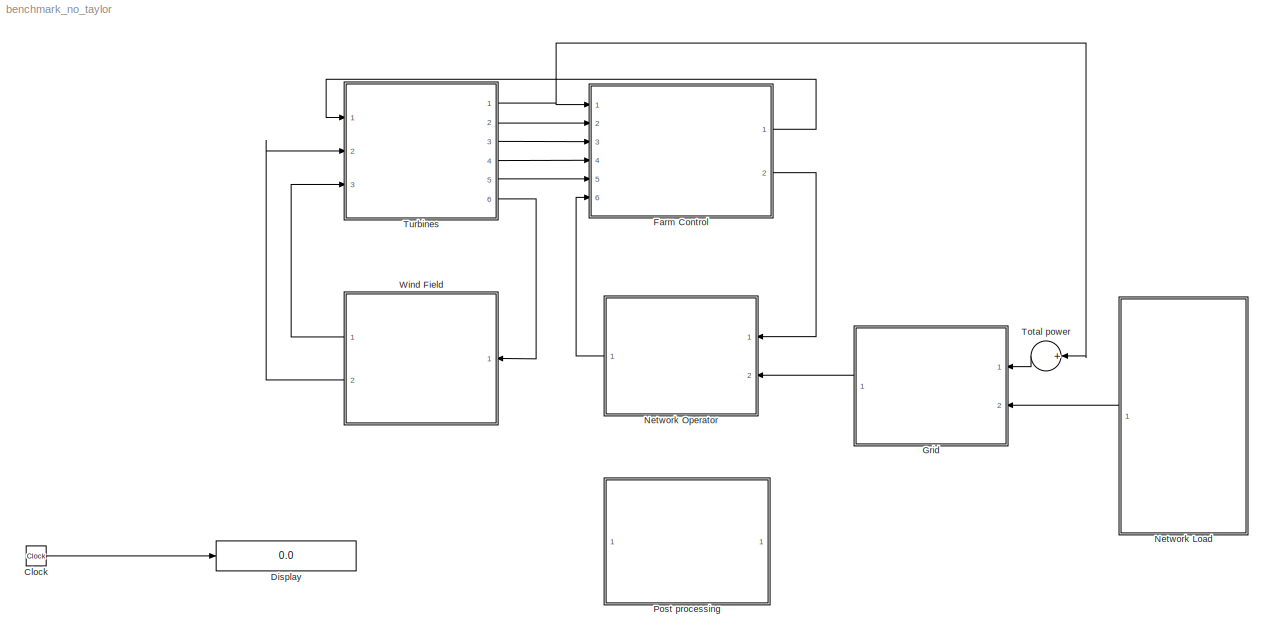
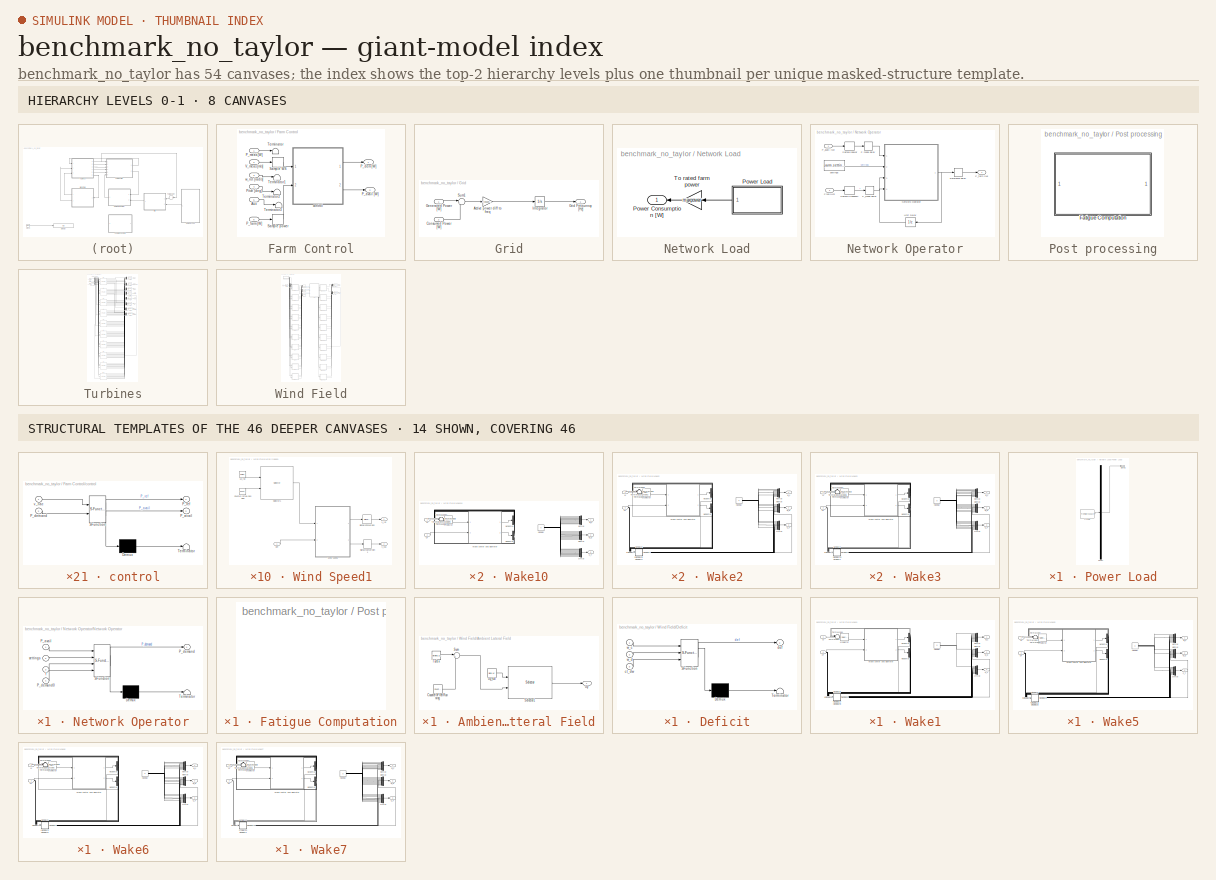
[diagram: thumbnail index - top-2 hierarchy levels (8 canvases) + 14 structural-template representatives of the remaining 46 canvases]
MODEL benchmark_no_taylor
KIND model
BLOCK [Clock] Clock
  SID = 588
BLOCK [Display] Display
  Decimation = 1
  Format = long
  Ports = [1]
  SID = 589
BLOCK [SubSystem] Farm Control
  Ports = [6, 2]
  RequestExecContextInheritance = off
  SID = 2
  UserData = DataTag0
  UserDataPersistent = on
BLOCK [Inport] Farm Control/ Aux
  IconDisplay = Port number
  Port = 5
  SID = 7
BLOCK [Outport] Farm Control/P_avail [W]
  IconDisplay = Port number
  Port = 2
  SID = 17
BLOCK [Outport] Farm Control/P_dem [W]
  IconDisplay = Port number
  SID = 16
BLOCK [Inport] Farm Control/P_farm [W]
  IconDisplay = Port number
  Port = 6
  SID = 8
BLOCK [Inport] Farm Control/P_meas [W]
  IconDisplay = Port number
  SID = 3
BLOCK [Inport] Farm Control/Pitch [deg]
  IconDisplay = Port number
  Port = 4
  SID = 6
BLOCK [ZeroOrderHold] Farm Control/Sample WS
  SID = 9
  SampleTime = CTs
BLOCK [ZeroOrderHold] Farm Control/Sample power
  SID = 10
  SampleTime = CTs
BLOCK [Terminator] Farm Control/Terminator
  SID = 11
BLOCK [Terminator] Farm Control/Terminator1
  SID = 12
BLOCK [Terminator] Farm Control/Terminator2
  SID = 13
BLOCK [Terminator] Farm Control/Terminator3
  SID = 14
BLOCK [Inport] Farm Control/V_meas [m//s]
  IconDisplay = Port number
  Port = 2
  SID = 4
BLOCK [SubSystem] Farm Control/control
  ErrorFcn = Stateflow.Translate.translate
  PermitHierarchicalResolution = ExplicitOnly
  Ports = [2, 2]
  RequestExecContextInheritance = off
  SFBlockType = MATLAB Function
  SID = 15
  TreatAsAtomicUnit = on
BLOCK [Demux] Farm Control/control/ Demux 
  Outputs = 1
  Ports = [1, 1]
  SID = 15::13
BLOCK [S-Function] Farm Control/control/ SFunction 
  EnableBusSupport = off
  FunctionName = sf_sfun
  Parameters = parm
  PortCounts = [2 3]
  Ports = [2, 3]
  SFcnIsStateOwnerBlock = off
  SFunctionDeploymentMode = off
  SID = 15::12
  Tag = Stateflow S-Function 1
BLOCK [Terminator] Farm Control/control/ Terminator 
  SID = 15::14
BLOCK [Outport] Farm Control/control/P_avail
  IconDisplay = Port number
  Port = 2
  SID = 15::7
BLOCK [Inport] Farm Control/control/P_demand
  IconDisplay = Port number
  Port = 2
  SID = 15::2
BLOCK [Outport] Farm Control/control/P_ref
  IconDisplay = Port number
  SID = 15::6
BLOCK [Inport] Farm Control/control/v_nac
  IconDisplay = Port number
  SID = 15::1
BLOCK [Inport] Farm Control/w_rot [rad//s]
  IconDisplay = Port number
  Port = 3
  SID = 5
BLOCK [SubSystem] Grid
  Ports = [2, 1]
  RequestExecContextInheritance = off
  SID = 18
BLOCK [Gain] Grid/Active power diff to freq
  Gain = frequencygain
  OutDataTypeStr = Inherit: Inherit via internal rule
  ParamDataTypeStr = Inherit: Inherit via internal rule
  SID = 21
  SaturateOnIntegerOverflow = off
BLOCK [Inport] Grid/Consumed Power [W]
  IconDisplay = Port number
  Port = 2
  SID = 20
BLOCK [Inport] Grid/Generated Power [W]
  IconDisplay = Port number
  SID = 19
BLOCK [Outport] Grid/Grid Frequency [Hz]
  IconDisplay = Port number
  SID = 24
BLOCK [Integrator] Grid/Integrator
  InitialCondition = 50
  LimitOutput = on
  LowerSaturationLimit = 0
  Ports = [1, 1]
  SID = 22
  UpperSaturationLimit = 100
BLOCK [Sum] Grid/Sum1
  IconShape = round
  InputSameDT = off
  Inputs = |+-
  OutDataTypeStr = Inherit: Inherit via internal rule
  Ports = [2, 1]
  SID = 23
  SaturateOnIntegerOverflow = off
BLOCK [SubSystem] Network Load
  Ports = [0, 1]
  RequestExecContextInheritance = off
  SID = 25
BLOCK [Outport] Network Load/Power Consumption [W]
  IconDisplay = Port number
  SID = 28
BLOCK [SubSystem] Network Load/Power Load
  ClipboardFcn = sigbuilder_block('clipboard');
  CloseFcn = sigbuilder_block('close');
  ContinueFcn = sigbuilder_block('continue')
  CopyFcn = sigbuilder_block('copy');
  DeleteFcn = sigbuilder_block('delete');
  LoadFcn = sigbuilder_block('load');
  MaskHideContents = on
  ModelCloseFcn = sigbuilder_block('modelClose');
  NameChangeFcn = sigbuilder_block('namechange');
  OpenFcn = sigbuilder_block('open',[437.6 199.2 550.4 400 ]);
  PauseFcn = sigbuilder_block('pause')
  Ports = [0, 1]
  PreSaveFcn = sigbuilder_block('preSave');
  RequestExecContextInheritance = off
  SID = 26
  StartFcn = sigbuilder_block('start');
  StopFcn = sigbuilder_block('stop');
  Tag = STV Subsys
BLOCK [Demux] Network Load/Power Load/Demux
  Outputs = 1
  Ports = [1, 1]
  SID = 26:1
  Tag = STV Demux
BLOCK [FromWorkspace] Network Load/Power Load/FromWs
  SID = 26:2
  SampleTime = 0
  SigBuilderData = DataTag1
  Tag = STV FromWs
  VariableName = tuvar
  VnvData = DataTag2
  ZeroCross = on
BLOCK [Outport] Network Load/Power Load/Signal 1
  IconDisplay = Port number
  SID = 26:3
  Tag = STV Outport
BLOCK [Gain] Network Load/To rated farm power
  Gain = maxpower
  OutDataTypeStr = Inherit: Inherit via internal rule
  ParamDataTypeStr = Inherit: Inherit via internal rule
  SID = 27
  SaturateOnIntegerOverflow = off
BLOCK [SubSystem] Network Operator
  Ports = [2, 1]
  RequestExecContextInheritance = off
  SID = 29
BLOCK [TransportDelay] Network Operator/F_meas delay
  DelayTime = parm.delay
  Ports = [1, 1]
  SID = 32
BLOCK [Inport] Network Operator/Freq [Hz]
  IconDisplay = Port number
  Port = 2
  SID = 31
BLOCK [SubSystem] Network Operator/Network Operator
  ErrorFcn = Stateflow.Translate.translate
  PermitHierarchicalResolution = ExplicitOnly
  Ports = [4, 1]
  RequestExecContextInheritance = off
  SFBlockType = MATLAB Function
  SID = 33
  TreatAsAtomicUnit = on
BLOCK [Demux] Network Operator/Network Operator/ Demux 
  Outputs = 1
  Ports = [1, 1]
  SID = 33::14
BLOCK [S-Function] Network Operator/Network Operator/ SFunction 
  EnableBusSupport = off
  FunctionName = sf_sfun
  Parameters = parm
  PortCounts = [4 2]
  Ports = [4, 2]
  SFcnIsStateOwnerBlock = off
  SFunctionDeploymentMode = off
  SID = 33::13
  Tag = Stateflow S-Function 2
BLOCK [Terminator] Network Operator/Network Operator/ Terminator 
  SID = 33::15
BLOCK [Inport] Network Operator/Network Operator/P_avail
  IconDisplay = Port number
  SID = 33::1
BLOCK [Outport] Network Operator/Network Operator/P_demand
  IconDisplay = Port number
  SID = 33::8
BLOCK [Inport] Network Operator/Network Operator/P_demand0
  IconDisplay = Port number
  Port = 4
  SID = 33::4
BLOCK [Inport] Network Operator/Network Operator/f
  IconDisplay = Port number
  Port = 3
  SID = 33::3
BLOCK [Inport] Network Operator/Network Operator/settings
  IconDisplay = Port number
  Port = 2
  SID = 33::2
BLOCK [TransportDelay] Network Operator/P meas delay
  DelayTime = parm.delay
  Ports = [1, 1]
  SID = 34
BLOCK [Inport] Network Operator/P_avail [W]
  IconDisplay = Port number
  SID = 30
BLOCK [Outport] Network Operator/P_farm [W]
  IconDisplay = Port number
  SID = 40
BLOCK [TransportDelay] Network Operator/Reference delay
  DelayTime = .01
  Ports = [1, 1]
  SID = 35
BLOCK [ZeroOrderHold] Network Operator/Sample frequency
  SID = 36
  SampleTime = parm.Ts
BLOCK [ZeroOrderHold] Network Operator/Sample power
  SID = 37
  SampleTime = parm.Ts
BLOCK [UnitDelay] Network Operator/Unit Delay
  HasFrameUpgradeWarning = on
  SID = 38
  SampleTime = parm.Ts
BLOCK [Constant] Network Operator/settings
  OutDataTypeStr = double
  SID = 39
  SampleTime = parm.Ts
  Value = parm.settings
BLOCK [SubSystem] Post processing
  Ports = []
  RequestExecContextInheritance = off
  SID = 41
BLOCK [SubSystem] Post processing/Fatigue Computation
  OpenFcn = fatigue=fatiguegui(logsout);
  Ports = []
  RequestExecContextInheritance = off
  SID = 42
BLOCK [Sum] Total power
  InputSameDT = off
  Inputs = +
  OutDataTypeStr = Inherit: Inherit via internal rule
  Ports = [1, 1]
  SID = 43
  SaturateOnIntegerOverflow = off
BLOCK [SubSystem] Turbines
  LoadFcn = p=get_param(gcb,'UserData');                                                                                                                                            \n%If not compatible                                                                                                                                                      \n                                                            ...<+1133ch>
  Ports = [3, 6]
  RequestExecContextInheritance = off
  SID = 44
  UserData = DataTag3
  UserDataPersistent = on
BLOCK [Outport] Turbines/CT
  IconDisplay = Port number
  Port = 6
  SID = 74
BLOCK [Mux] Turbines/CTmux
  DisplayOption = bar
  Inputs = 10
  Ports = [10, 1]
  SID = 48
BLOCK [RateTransition] Turbines/CTrate
  Deterministic = off
  OutPortSampleTime = TTs
  SID = 49
BLOCK [RateTransition] Turbines/CTrate1
  Deterministic = off
  OutPortSampleTime = TTs
  SID = 50
BLOCK [RateTransition] Turbines/CTrate2
  Deterministic = off
  OutPortSampleTime = TTs
  SID = 51
BLOCK [RateTransition] Turbines/CTrate3
  Deterministic = off
  OutPortSampleTime = TTs
  SID = 52
BLOCK [RateTransition] Turbines/CTrate4
  Deterministic = off
  OutPortSampleTime = TTs
  SID = 53
BLOCK [RateTransition] Turbines/CTrate5
  Deterministic = off
  OutPortSampleTime = TTs
  SID = 54
BLOCK [RateTransition] Turbines/CTrate6
  Deterministic = off
  OutPortSampleTime = TTs
  SID = 55
BLOCK [RateTransition] Turbines/CTrate7
  Deterministic = off
  OutPortSampleTime = TTs
  SID = 56
BLOCK [Outport] Turbines/P
  IconDisplay = Port number
  SID = 69
BLOCK [Inport] Turbines/P_dem [W]
  IconDisplay = Port number
  SID = 45
BLOCK [Demux] Turbines/Pdemanddemux
  DisplayOption = bar
  Outputs = 10
  Ports = [1, 10]
  SID = 57
BLOCK [Mux] Turbines/Pmux
  DisplayOption = bar
  Inputs = 10
  Ports = [10, 1]
  SID = 58
BLOCK [Inport] Turbines/V_nac [m//s]
  IconDisplay = Port number
  Port = 3
  SID = 47
BLOCK [Outport] Turbines/V_nac_meas [m//s]
  IconDisplay = Port number
  Port = 2
  SID = 70
BLOCK [Inport] Turbines/V_rot [m//s]
  IconDisplay = Port number
  Port = 2
  SID = 46
BLOCK [Demux] Turbines/Vnacdemux
  DisplayOption = bar
  Outputs = 10
  Ports = [1, 10]
  SID = 59
BLOCK [Mux] Turbines/Vnacmux
  DisplayOption = bar
  Inputs = 10
  Ports = [10, 1]
  SID = 60
BLOCK [Demux] Turbines/Vrotdemux
  DisplayOption = bar
  Outputs = 10
  Ports = [1, 10]
  SID = 61
BLOCK [Reference] Turbines/WT1  REF=libturbines/NREL5MW  (lib defined in mdl_90190a676d21, slx_8b4198d95370)
  Ports = [3, 8]
  SID = 96
  SourceBlock = libturbines/NREL5MW
  SourceType = Wind Turbine
  UserData = DataTag4
  UserDataPersistent = on
  auto = off
  beta_ini = 0
  torq_ini = 0
  w_gen_ini = 50
BLOCK [Reference] Turbines/WT10  REF=libturbines/NREL5MW  (lib defined in mdl_90190a676d21, slx_8b4198d95370)
  Ports = [3, 8]
  SID = 105
  SourceBlock = libturbines/NREL5MW
  SourceType = Wind Turbine
  UserData = DataTag5
  UserDataPersistent = on
  auto = off
  beta_ini = 0
  torq_ini = 0
  w_gen_ini = 50
BLOCK [Reference] Turbines/WT2  REF=libturbines/NREL5MW  (lib defined in mdl_90190a676d21, slx_8b4198d95370)
  Ports = [3, 8]
  SID = 97
  SourceBlock = libturbines/NREL5MW
  SourceType = Wind Turbine
  UserData = DataTag6
  UserDataPersistent = on
  auto = off
  beta_ini = 0
  torq_ini = 0
  w_gen_ini = 50
BLOCK [Reference] Turbines/WT3  REF=libturbines/NREL5MW  (lib defined in mdl_90190a676d21, slx_8b4198d95370)
  Ports = [3, 8]
  SID = 98
  SourceBlock = libturbines/NREL5MW
  SourceType = Wind Turbine
  UserData = DataTag7
  UserDataPersistent = on
  auto = off
  beta_ini = 0
  torq_ini = 0
  w_gen_ini = 50
BLOCK [Reference] Turbines/WT4  REF=libturbines/NREL5MW  (lib defined in mdl_90190a676d21, slx_8b4198d95370)
  Ports = [3, 8]
  SID = 99
  SourceBlock = libturbines/NREL5MW
  SourceType = Wind Turbine
  UserData = DataTag8
  UserDataPersistent = on
  auto = off
  beta_ini = 0
  torq_ini = 0
  w_gen_ini = 50
BLOCK [Reference] Turbines/WT5  REF=libturbines/NREL5MW  (lib defined in mdl_90190a676d21, slx_8b4198d95370)
  Ports = [3, 8]
  SID = 100
  SourceBlock = libturbines/NREL5MW
  SourceType = Wind Turbine
  UserData = DataTag9
  UserDataPersistent = on
  auto = off
  beta_ini = 0
  torq_ini = 0
  w_gen_ini = 50
BLOCK [Reference] Turbines/WT6  REF=libturbines/NREL5MW  (lib defined in mdl_90190a676d21, slx_8b4198d95370)
  Ports = [3, 8]
  SID = 101
  SourceBlock = libturbines/NREL5MW
  SourceType = Wind Turbine
  UserData = DataTag10
  UserDataPersistent = on
  auto = off
  beta_ini = 0
  torq_ini = 0
  w_gen_ini = 50
BLOCK [Reference] Turbines/WT7  REF=libturbines/NREL5MW  (lib defined in mdl_90190a676d21, slx_8b4198d95370)
  Ports = [3, 8]
  SID = 102
  SourceBlock = libturbines/NREL5MW
  SourceType = Wind Turbine
  UserData = DataTag11
  UserDataPersistent = on
  auto = off
  beta_ini = 0
  torq_ini = 0
  w_gen_ini = 50
BLOCK [Reference] Turbines/WT8  REF=libturbines/NREL5MW  (lib defined in mdl_90190a676d21, slx_8b4198d95370)
  Ports = [3, 8]
  SID = 103
  SourceBlock = libturbines/NREL5MW
  SourceType = Wind Turbine
  UserData = DataTag12
  UserDataPersistent = on
  auto = off
  beta_ini = 0
  torq_ini = 0
  w_gen_ini = 50
BLOCK [Reference] Turbines/WT9  REF=libturbines/NREL5MW  (lib defined in mdl_90190a676d21, slx_8b4198d95370)
  Ports = [3, 8]
  SID = 104
  SourceBlock = libturbines/NREL5MW
  SourceType = Wind Turbine
  UserData = DataTag13
  UserDataPersistent = on
  auto = off
  beta_ini = 0
  torq_ini = 0
  w_gen_ini = 50
BLOCK [Outport] Turbines/aux
  IconDisplay = Port number
  Port = 5
  SID = 73
BLOCK [Mux] Turbines/auxmux
  DisplayOption = bar
  Inputs = 10
  Ports = [10, 1]
  SID = 62
BLOCK [Mux] Turbines/mshaftmux
  DisplayOption = bar
  Inputs = 10
  Ports = [10, 1]
  SID = 63
BLOCK [Terminator] Turbines/mshaftterm
  SID = 64
BLOCK [Mux] Turbines/mtowmux
  DisplayOption = bar
  Inputs = 10
  Ports = [10, 1]
  SID = 65
BLOCK [Terminator] Turbines/mtowterm
  SID = 66
BLOCK [Outport] Turbines/pitch
  IconDisplay = Port number
  Port = 4
  SID = 72
BLOCK [Mux] Turbines/pitchmux
  DisplayOption = bar
  Inputs = 10
  Ports = [10, 1]
  SID = 67
BLOCK [Outport] Turbines/w_gen
  IconDisplay = Port number
  Port = 3
  SID = 71
BLOCK [Mux] Turbines/wgenmux
  DisplayOption = bar
  Inputs = 10
  Ports = [10, 1]
  SID = 68
BLOCK [SubSystem] Wind Field
  OpenFcn = [wfile,wpath,wfidx]=uigetfile('*.mat','Select a Wind Data File');                                                                                                                                                                                                                                                                                              \nif isequal(wfile,0) || isequal(wpath,0)        ...<+20441ch>
  Ports = [1, 2]
  RequestExecContextInheritance = off
  SID = 75
  UserData = DataTag14
  UserDataPersistent = on
BLOCK [SubSystem] Wind Field/Ambient Lateral Field
  Ports = [0, 1]
  RequestExecContextInheritance = off
  SID = 77
  UserData = DataTag15
  UserDataPersistent = on
BLOCK [Reference] Wind Field/Ambient Lateral Field/Counter\nFree-Running  REF=simulink/Sources/Counter\nFree-Running
  NumBits = 32
  Ports = [0, 1]
  SID = 78
  SourceBlock = simulink/Sources/Counter\nFree-Running
  SourceProductBaseCode = SL
  SourceProductName = Simulink
  SourceType = Counter Free-Running
  tsamp = wind.Ts
BLOCK [Selector] Wind Field/Ambient Lateral Field/Selector1
  IndexOptions = Select all,Index vector (port)
  Indices = [1 3],1
  InputPortWidth = 3
  NumberOfDimensions = 2
  OutputSizes = 1,1
  Ports = [2, 1]
  SID = 79
BLOCK [Sum] Wind Field/Ambient Lateral Field/Sum
  IconShape = round
  InputSameDT = off
  Inputs = |++
  OutDataTypeStr = Inherit: Inherit via internal rule
  Ports = [2, 1]
  SID = 80
  SaturateOnIntegerOverflow = off
BLOCK [Constant] Wind Field/Ambient Lateral Field/Turb x
  SID = 81
  Value = ceil(wind.grid.xsize/wind.grid.size)-wind.xgrids
BLOCK [Outport] Wind Field/Ambient Lateral Field/Uy
  IconDisplay = Port number
  SID = 83
BLOCK [Constant] Wind Field/Ambient Lateral Field/Uy_full
  SID = 82
  Value = wind.Uy
BLOCK [Inport] Wind Field/CT
  IconDisplay = Port number
  SID = 76
BLOCK [Demux] Wind Field/CTdemux
  DisplayOption = bar
  Outputs = 10
  Ports = [1, 10]
  SID = 84
BLOCK [RateTransition] Wind Field/CTrate
  Deterministic = off
  OutPortSampleTime = 1
  SID = 85
BLOCK [SubSystem] Wind Field/Deficit
  ErrorFcn = Stateflow.Translate.translate
  PermitHierarchicalResolution = ExplicitOnly
  Ports = [3, 1]
  RequestExecContextInheritance = off
  SFBlockType = MATLAB Function
  SID = 86
  TreatAsAtomicUnit = on
BLOCK [Demux] Wind Field/Deficit/ Demux 
  Outputs = 1
  Ports = [1, 1]
  SID = 86::13
BLOCK [S-Function] Wind Field/Deficit/ SFunction 
  EnableBusSupport = off
  FunctionName = sf_sfun
  Parameters = p
  PortCounts = [3 2]
  Ports = [3, 2]
  SFcnIsStateOwnerBlock = off
  SFunctionDeploymentMode = off
  SID = 86::12
  Tag = Stateflow S-Function 3
BLOCK [Terminator] Wind Field/Deficit/ Terminator 
  SID = 86::14
BLOCK [Inport] Wind Field/Deficit/ct_dw
  IconDisplay = Port number
  Port = 3
  SID = 86::3
BLOCK [Outport] Wind Field/Deficit/def
  IconDisplay = Port number
  SID = 86::7
BLOCK [Inport] Wind Field/Deficit/w_c
  IconDisplay = Port number
  SID = 86::1
BLOCK [Inport] Wind Field/Deficit/w_d
  IconDisplay = Port number
  Port = 2
  SID = 86::2
BLOCK [Outport] Wind Field/V_nac
  IconDisplay = Port number
  SID = 94
BLOCK [Outport] Wind Field/V_rot
  IconDisplay = Port number
  Port = 2
  SID = 95
BLOCK [Mux] Wind Field/Vnacmux
  DisplayOption = bar
  Inputs = 10
  Ports = [10, 1]
  SID = 87
BLOCK [Mux] Wind Field/Vrotmux
  DisplayOption = bar
  Inputs = 10
  Ports = [10, 1]
  SID = 88
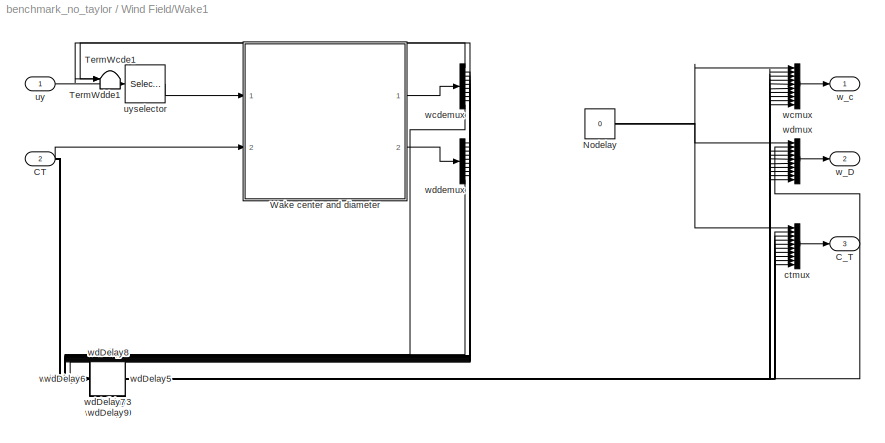
BLOCK [SubSystem] Wind Field/Wake1
  Ports = [2, 3]
  RequestExecContextInheritance = off
  SID = 106
  UserData = DataTag16
  UserDataPersistent = on
BLOCK [Inport] Wind Field/Wake1/CT
  IconDisplay = Port number
  Port = 2
  SID = 108
BLOCK [Outport] Wind Field/Wake1/C_T
  IconDisplay = Port number
  Port = 3
  SID = 119
BLOCK [Constant] Wind Field/Wake1/Nodelay
  SID = 109
  Value = 0
BLOCK [Terminator] Wind Field/Wake1/TermWcde1
  SID = 131
BLOCK [Terminator] Wind Field/Wake1/TermWdde1
  SID = 130
BLOCK [SubSystem] Wind Field/Wake1/Wake center and diameter
  ErrorFcn = Stateflow.Translate.translate
  PermitHierarchicalResolution = ExplicitOnly
  Ports = [2, 2]
  RequestExecContextInheritance = off
  SFBlockType = MATLAB Function
  SID = 110
  TreatAsAtomicUnit = on
BLOCK [Demux] Wind Field/Wake1/Wake center and diameter/ Demux 
  Outputs = 1
  Ports = [1, 1]
  SID = 110::82
BLOCK [S-Function] Wind Field/Wake1/Wake center and diameter/ SFunction 
  EnableBusSupport = off
  FunctionName = sf_sfun
  Parameters = p
  PortCounts = [2 3]
  Ports = [2, 3]
  SFcnIsStateOwnerBlock = off
  SFunctionDeploymentMode = off
  SID = 110::81
  Tag = Stateflow S-Function 4
BLOCK [Terminator] Wind Field/Wake1/Wake center and diameter/ Terminator 
  SID = 110::83
BLOCK [Inport] Wind Field/Wake1/Wake center and diameter/CT
  IconDisplay = Port number
  Port = 2
  SID = 110::2
BLOCK [Inport] Wind Field/Wake1/Wake center and diameter/uy
  IconDisplay = Port number
  SID = 110::1
BLOCK [Outport] Wind Field/Wake1/Wake center and diameter/w_c
  IconDisplay = Port number
  SID = 110::6
BLOCK [Outport] Wind Field/Wake1/Wake center and diameter/w_d
  IconDisplay = Port number
  Port = 2
  SID = 110::7
BLOCK [Delay] Wind Field/Wake1/ctDelay10
  DelayLength = 120
  InitialCondition = 0
  InputPortMap = u0
  Ports = [1, 1]
  SID = 156
  SampleTime = 1
BLOCK [Delay] Wind Field/Wake1/ctDelay2
  DelayLength = 40
  InitialCondition = 0
  InputPortMap = u0
  Ports = [1, 1]
  SID = 132
  SampleTime = 1
BLOCK [Delay] Wind Field/Wake1/ctDelay3
  DelayLength = 80
  InitialCondition = 0
  InputPortMap = u0
  Ports = [1, 1]
  SID = 135
  SampleTime = 1
BLOCK [Delay] Wind Field/Wake1/ctDelay4
  DelayLength = 120
  InitialCondition = 0
  InputPortMap = u0
  Ports = [1, 1]
  SID = 138
  SampleTime = 1
BLOCK [Delay] Wind Field/Wake1/ctDelay5
  DelayLength = 20
  InitialCondition = 0
  InputPortMap = u0
  Ports = [1, 1]
  SID = 141
  SampleTime = 1
BLOCK [Delay] Wind Field/Wake1/ctDelay6
  DelayLength = 60
  InitialCondition = 0
  InputPortMap = u0
  Ports = [1, 1]
  SID = 144
  SampleTime = 1
BLOCK [Delay] Wind Field/Wake1/ctDelay7
  DelayLength = 100
  InitialCondition = 0
  InputPortMap = u0
  Ports = [1, 1]
  SID = 147
  SampleTime = 1
BLOCK [Delay] Wind Field/Wake1/ctDelay8
  DelayLength = 40
  InitialCondition = 0
  InputPortMap = u0
  Ports = [1, 1]
  SID = 150
  SampleTime = 1
BLOCK [Delay] Wind Field/Wake1/ctDelay9
  DelayLength = 80
  InitialCondition = 0
  InputPortMap = u0
  Ports = [1, 1]
  SID = 153
  SampleTime = 1
BLOCK [Mux] Wind Field/Wake1/ctmux
  DisplayOption = bar
  Inputs = 10
  Ports = [10, 1]
  SID = 111
BLOCK [Inport] Wind Field/Wake1/uy
  IconDisplay = Port number
  SID = 107
BLOCK [Selector] Wind Field/Wake1/uyselector
  IndexOptions = Select all,Index vector (dialog)
  Indices = [1 3],p.wt.num
  InputPortWidth = 3
  NumberOfDimensions = 2
  OutputSizes = 1,1
  Ports = [1, 1]
  SID = 112
BLOCK [Outport] Wind Field/Wake1/w_D
  IconDisplay = Port number
  Port = 2
  SID = 118
BLOCK [Outport] Wind Field/Wake1/w_c
  IconDisplay = Port number
  SID = 117
BLOCK [Delay] Wind Field/Wake1/wcDelay10
  DelayLength = 120
  InitialCondition = 0
  InputPortMap = u0
  Ports = [1, 1]
  SID = 157
  SampleTime = 1
BLOCK [Delay] Wind Field/Wake1/wcDelay2
  DelayLength = 40
  InitialCondition = 0
  InputPortMap = u0
  Ports = [1, 1]
  SID = 133
  SampleTime = 1
BLOCK [Delay] Wind Field/Wake1/wcDelay3
  DelayLength = 80
  InitialCondition = 0
  InputPortMap = u0
  Ports = [1, 1]
  SID = 136
  SampleTime = 1
BLOCK [Delay] Wind Field/Wake1/wcDelay4
  DelayLength = 120
  InitialCondition = 0
  InputPortMap = u0
  Ports = [1, 1]
  SID = 139
  SampleTime = 1
BLOCK [Delay] Wind Field/Wake1/wcDelay5
  DelayLength = 20
  InitialCondition = 0
  InputPortMap = u0
  Ports = [1, 1]
  SID = 142
  SampleTime = 1
BLOCK [Delay] Wind Field/Wake1/wcDelay6
  DelayLength = 60
  InitialCondition = 0
  InputPortMap = u0
  Ports = [1, 1]
  SID = 145
  SampleTime = 1
BLOCK [Delay] Wind Field/Wake1/wcDelay7
  DelayLength = 100
  InitialCondition = 0
  InputPortMap = u0
  Ports = [1, 1]
  SID = 148
  SampleTime = 1
BLOCK [Delay] Wind Field/Wake1/wcDelay8
  DelayLength = 40
  InitialCondition = 0
  InputPortMap = u0
  Ports = [1, 1]
  SID = 151
  SampleTime = 1
BLOCK [Delay] Wind Field/Wake1/wcDelay9
  DelayLength = 80
  InitialCondition = 0
  InputPortMap = u0
  Ports = [1, 1]
  SID = 154
  SampleTime = 1
BLOCK [Demux] Wind Field/Wake1/wcdemux
  DisplayOption = bar
  Outputs = 10
  Ports = [1, 10]
  SID = 113
BLOCK [Mux] Wind Field/Wake1/wcmux
  DisplayOption = bar
  Inputs = 10
  Ports = [10, 1]
  SID = 114
BLOCK [Delay] Wind Field/Wake1/wdDelay10
  DelayLength = 120
  InitialCondition = 0
  InputPortMap = u0
  Ports = [1, 1]
  SID = 158
  SampleTime = 1
BLOCK [Delay] Wind Field/Wake1/wdDelay2
  DelayLength = 40
  InitialCondition = 0
  InputPortMap = u0
  Ports = [1, 1]
  SID = 134
  SampleTime = 1
BLOCK [Delay] Wind Field/Wake1/wdDelay3
  DelayLength = 80
  InitialCondition = 0
  InputPortMap = u0
  Ports = [1, 1]
  SID = 137
  SampleTime = 1
BLOCK [Delay] Wind Field/Wake1/wdDelay4
  DelayLength = 120
  InitialCondition = 0
  InputPortMap = u0
  Ports = [1, 1]
  SID = 140
  SampleTime = 1
BLOCK [Delay] Wind Field/Wake1/wdDelay5
  DelayLength = 20
  InitialCondition = 0
  InputPortMap = u0
  Ports = [1, 1]
  SID = 143
  SampleTime = 1
BLOCK [Delay] Wind Field/Wake1/wdDelay6
  DelayLength = 60
  InitialCondition = 0
  InputPortMap = u0
  Ports = [1, 1]
  SID = 146
  SampleTime = 1
BLOCK [Delay] Wind Field/Wake1/wdDelay7
  DelayLength = 100
  InitialCondition = 0
  InputPortMap = u0
  Ports = [1, 1]
  SID = 149
  SampleTime = 1
BLOCK [Delay] Wind Field/Wake1/wdDelay8
  DelayLength = 40
  InitialCondition = 0
  InputPortMap = u0
  Ports = [1, 1]
  SID = 152
  SampleTime = 1
BLOCK [Delay] Wind Field/Wake1/wdDelay9
  DelayLength = 80
  InitialCondition = 0
  InputPortMap = u0
  Ports = [1, 1]
  SID = 155
  SampleTime = 1
BLOCK [Demux] Wind Field/Wake1/wddemux
  DisplayOption = bar
  Outputs = 10
  Ports = [1, 10]
  SID = 115
BLOCK [Mux] Wind Field/Wake1/wdmux
  DisplayOption = bar
  Inputs = 10
  Ports = [10, 1]
  SID = 116
BLOCK [SubSystem] Wind Field/Wake10
  Ports = [2, 3]
  RequestExecContextInheritance = off
  SID = 544
  UserData = DataTag17
  UserDataPersistent = on
BLOCK [Inport] Wind Field/Wake10/CT
  IconDisplay = Port number
  Port = 2
  SID = 546
BLOCK [Outport] Wind Field/Wake10/C_T
  IconDisplay = Port number
  Port = 3
  SID = 557
BLOCK [Constant] Wind Field/Wake10/Nodelay
  SID = 547
  Value = 0
BLOCK [Terminator] Wind Field/Wake10/TermWcde1
  SID = 569
BLOCK [Terminator] Wind Field/Wake10/TermWcde10
  SID = 587
BLOCK [Terminator] Wind Field/Wake10/TermWcde2
  SID = 571
BLOCK [Terminator] Wind Field/Wake10/TermWcde3
  SID = 573
BLOCK [Terminator] Wind Field/Wake10/TermWcde4
  SID = 575
BLOCK [Terminator] Wind Field/Wake10/TermWcde5
  SID = 577
BLOCK [Terminator] Wind Field/Wake10/TermWcde6
  SID = 579
BLOCK [Terminator] Wind Field/Wake10/TermWcde7
  SID = 581
BLOCK [Terminator] Wind Field/Wake10/TermWcde8
  SID = 583
BLOCK [Terminator] Wind Field/Wake10/TermWcde9
  SID = 585
BLOCK [Terminator] Wind Field/Wake10/TermWdde1
  SID = 568
BLOCK [Terminator] Wind Field/Wake10/TermWdde10
  SID = 586
BLOCK [Terminator] Wind Field/Wake10/TermWdde2
  SID = 570
BLOCK [Terminator] Wind Field/Wake10/TermWdde3
  SID = 572
BLOCK [Terminator] Wind Field/Wake10/TermWdde4
  SID = 574
BLOCK [Terminator] Wind Field/Wake10/TermWdde5
  SID = 576
BLOCK [Terminator] Wind Field/Wake10/TermWdde6
  SID = 578
BLOCK [Terminator] Wind Field/Wake10/TermWdde7
  SID = 580
BLOCK [Terminator] Wind Field/Wake10/TermWdde8
  SID = 582
BLOCK [Terminator] Wind Field/Wake10/TermWdde9
  SID = 584
BLOCK [SubSystem] Wind Field/Wake10/Wake center and diameter
  ErrorFcn = Stateflow.Translate.translate
  PermitHierarchicalResolution = ExplicitOnly
  Ports = [2, 2]
  RequestExecContextInheritance = off
  SFBlockType = MATLAB Function
  SID = 548
  TreatAsAtomicUnit = on
BLOCK [Demux] Wind Field/Wake10/Wake center and diameter/ Demux 
  Outputs = 1
  Ports = [1, 1]
  SID = 548::82
BLOCK [S-Function] Wind Field/Wake10/Wake center and diameter/ SFunction 
  EnableBusSupport = off
  FunctionName = sf_sfun
  Parameters = p
  PortCounts = [2 3]
  Ports = [2, 3]
  SFcnIsStateOwnerBlock = off
  SFunctionDeploymentMode = off
  SID = 548::81
  Tag = Stateflow S-Function 22
BLOCK [Terminator] Wind Field/Wake10/Wake center and diameter/ Terminator 
  SID = 548::83
BLOCK [Inport] Wind Field/Wake10/Wake center and diameter/CT
  IconDisplay = Port number
  Port = 2
  SID = 548::2
BLOCK [Inport] Wind Field/Wake10/Wake center and diameter/uy
  IconDisplay = Port number
  SID = 548::1
BLOCK [Outport] Wind Field/Wake10/Wake center and diameter/w_c
  IconDisplay = Port number
  SID = 548::6
BLOCK [Outport] Wind Field/Wake10/Wake center and diameter/w_d
  IconDisplay = Port number
  Port = 2
  SID = 548::7
BLOCK [Mux] Wind Field/Wake10/ctmux
  DisplayOption = bar
  Inputs = 10
  Ports = [10, 1]
  SID = 549
BLOCK [Inport] Wind Field/Wake10/uy
  IconDisplay = Port number
  SID = 545
BLOCK [Selector] Wind Field/Wake10/uyselector
  IndexOptions = Select all,Index vector (dialog)
  Indices = [1 3],p.wt.num
  InputPortWidth = 3
  NumberOfDimensions = 2
  OutputSizes = 1,1
  Ports = [1, 1]
  SID = 550
BLOCK [Outport] Wind Field/Wake10/w_D
  IconDisplay = Port number
  Port = 2
  SID = 556
BLOCK [Outport] Wind Field/Wake10/w_c
  IconDisplay = Port number
  SID = 555
BLOCK [Demux] Wind Field/Wake10/wcdemux
  DisplayOption = bar
  Outputs = 10
  Ports = [1, 10]
  SID = 551
BLOCK [Mux] Wind Field/Wake10/wcmux
  DisplayOption = bar
  Inputs = 10
  Ports = [10, 1]
  SID = 552
BLOCK [Demux] Wind Field/Wake10/wddemux
  DisplayOption = bar
  Outputs = 10
  Ports = [1, 10]
  SID = 553
BLOCK [Mux] Wind Field/Wake10/wdmux
  DisplayOption = bar
  Inputs = 10
  Ports = [10, 1]
  SID = 554
BLOCK [SubSystem] Wind Field/Wake2
  Ports = [2, 3]
  RequestExecContextInheritance = off
  SID = 159
  UserData = DataTag18
  UserDataPersistent = on
BLOCK [Inport] Wind Field/Wake2/CT
  IconDisplay = Port number
  Port = 2
  SID = 161
BLOCK [Outport] Wind Field/Wake2/C_T
  IconDisplay = Port number
  Port = 3
  SID = 172
BLOCK [Constant] Wind Field/Wake2/Nodelay
  SID = 162
  Value = 0
BLOCK [Terminator] Wind Field/Wake2/TermWcde1
  SID = 184
BLOCK [Terminator] Wind Field/Wake2/TermWcde2
  SID = 186
BLOCK [Terminator] Wind Field/Wake2/TermWcde5
  SID = 194
BLOCK [Terminator] Wind Field/Wake2/TermWcde8
  SID = 202
BLOCK [Terminator] Wind Field/Wake2/TermWdde1
  SID = 183
BLOCK [Terminator] Wind Field/Wake2/TermWdde2
  SID = 185
BLOCK [Terminator] Wind Field/Wake2/TermWdde5
  SID = 193
BLOCK [Terminator] Wind Field/Wake2/TermWdde8
  SID = 201
BLOCK [SubSystem] Wind Field/Wake2/Wake center and diameter
  ErrorFcn = Stateflow.Translate.translate
  PermitHierarchicalResolution = ExplicitOnly
  Ports = [2, 2]
  RequestExecContextInheritance = off
  SFBlockType = MATLAB Function
  SID = 163
  TreatAsAtomicUnit = on
BLOCK [Demux] Wind Field/Wake2/Wake center and diameter/ Demux 
  Outputs = 1
  Ports = [1, 1]
  SID = 163::82
BLOCK [S-Function] Wind Field/Wake2/Wake center and diameter/ SFunction 
  EnableBusSupport = off
  FunctionName = sf_sfun
  Parameters = p
  PortCounts = [2 3]
  Ports = [2, 3]
  SFcnIsStateOwnerBlock = off
  SFunctionDeploymentMode = off
  SID = 163::81
  Tag = Stateflow S-Function 6
BLOCK [Terminator] Wind Field/Wake2/Wake center and diameter/ Terminator 
  SID = 163::83
BLOCK [Inport] Wind Field/Wake2/Wake center and diameter/CT
  IconDisplay = Port number
  Port = 2
  SID = 163::2
BLOCK [Inport] Wind Field/Wake2/Wake center and diameter/uy
  IconDisplay = Port number
  SID = 163::1
BLOCK [Outport] Wind Field/Wake2/Wake center and diameter/w_c
  IconDisplay = Port number
  SID = 163::6
BLOCK [Outport] Wind Field/Wake2/Wake center and diameter/w_d
  IconDisplay = Port number
  Port = 2
  SID = 163::7
BLOCK [Delay] Wind Field/Wake2/ctDelay10
  DelayLength = 80
  InitialCondition = 0
  InputPortMap = u0
  Ports = [1, 1]
  SID = 206
  SampleTime = 1
BLOCK [Delay] Wind Field/Wake2/ctDelay3
  DelayLength = 40
  InitialCondition = 0
  InputPortMap = u0
  Ports = [1, 1]
  SID = 187
  SampleTime = 1
BLOCK [Delay] Wind Field/Wake2/ctDelay4
  DelayLength = 80
  InitialCondition = 0
  InputPortMap = u0
  Ports = [1, 1]
  SID = 190
  SampleTime = 1
BLOCK [Delay] Wind Field/Wake2/ctDelay6
  DelayLength = 20
  InitialCondition = 0
  InputPortMap = u0
  Ports = [1, 1]
  SID = 195
  SampleTime = 1
BLOCK [Delay] Wind Field/Wake2/ctDelay7
  DelayLength = 60
  InitialCondition = 0
  InputPortMap = u0
  Ports = [1, 1]
  SID = 198
  SampleTime = 1
BLOCK [Delay] Wind Field/Wake2/ctDelay9
  DelayLength = 40
  InitialCondition = 0
  InputPortMap = u0
  Ports = [1, 1]
  SID = 203
  SampleTime = 1
BLOCK [Mux] Wind Field/Wake2/ctmux
  DisplayOption = bar
  Inputs = 10
  Ports = [10, 1]
  SID = 164
BLOCK [Inport] Wind Field/Wake2/uy
  IconDisplay = Port number
  SID = 160
BLOCK [Selector] Wind Field/Wake2/uyselector
  IndexOptions = Select all,Index vector (dialog)
  Indices = [1 3],p.wt.num
  InputPortWidth = 3
  NumberOfDimensions = 2
  OutputSizes = 1,1
  Ports = [1, 1]
  SID = 165
BLOCK [Outport] Wind Field/Wake2/w_D
  IconDisplay = Port number
  Port = 2
  SID = 171
BLOCK [Outport] Wind Field/Wake2/w_c
  IconDisplay = Port number
  SID = 170
BLOCK [Delay] Wind Field/Wake2/wcDelay10
  DelayLength = 80
  InitialCondition = 0
  InputPortMap = u0
  Ports = [1, 1]
  SID = 207
  SampleTime = 1
BLOCK [Delay] Wind Field/Wake2/wcDelay3
  DelayLength = 40
  InitialCondition = 0
  InputPortMap = u0
  Ports = [1, 1]
  SID = 188
  SampleTime = 1
BLOCK [Delay] Wind Field/Wake2/wcDelay4
  DelayLength = 80
  InitialCondition = 0
  InputPortMap = u0
  Ports = [1, 1]
  SID = 191
  SampleTime = 1
BLOCK [Delay] Wind Field/Wake2/wcDelay6
  DelayLength = 20
  InitialCondition = 0
  InputPortMap = u0
  Ports = [1, 1]
  SID = 196
  SampleTime = 1
BLOCK [Delay] Wind Field/Wake2/wcDelay7
  DelayLength = 60
  InitialCondition = 0
  InputPortMap = u0
  Ports = [1, 1]
  SID = 199
  SampleTime = 1
BLOCK [Delay] Wind Field/Wake2/wcDelay9
  DelayLength = 40
  InitialCondition = 0
  InputPortMap = u0
  Ports = [1, 1]
  SID = 204
  SampleTime = 1
BLOCK [Demux] Wind Field/Wake2/wcdemux
  DisplayOption = bar
  Outputs = 10
  Ports = [1, 10]
  SID = 166
BLOCK [Mux] Wind Field/Wake2/wcmux
  DisplayOption = bar
  Inputs = 10
  Ports = [10, 1]
  SID = 167
BLOCK [Delay] Wind Field/Wake2/wdDelay10
  DelayLength = 80
  InitialCondition = 0
  InputPortMap = u0
  Ports = [1, 1]
  SID = 208
  SampleTime = 1
BLOCK [Delay] Wind Field/Wake2/wdDelay3
  DelayLength = 40
  InitialCondition = 0
  InputPortMap = u0
  Ports = [1, 1]
  SID = 189
  SampleTime = 1
BLOCK [Delay] Wind Field/Wake2/wdDelay4
  DelayLength = 80
  InitialCondition = 0
  InputPortMap = u0
  Ports = [1, 1]
  SID = 192
  SampleTime = 1
BLOCK [Delay] Wind Field/Wake2/wdDelay6
  DelayLength = 20
  InitialCondition = 0
  InputPortMap = u0
  Ports = [1, 1]
  SID = 197
  SampleTime = 1
BLOCK [Delay] Wind Field/Wake2/wdDelay7
  DelayLength = 60
  InitialCondition = 0
  InputPortMap = u0
  Ports = [1, 1]
  SID = 200
  SampleTime = 1
BLOCK [Delay] Wind Field/Wake2/wdDelay9
  DelayLength = 40
  InitialCondition = 0
  InputPortMap = u0
  Ports = [1, 1]
  SID = 205
  SampleTime = 1
BLOCK [Demux] Wind Field/Wake2/wddemux
  DisplayOption = bar
  Outputs = 10
  Ports = [1, 10]
  SID = 168
BLOCK [Mux] Wind Field/Wake2/wdmux
  DisplayOption = bar
  Inputs = 10
  Ports = [10, 1]
  SID = 169
BLOCK [SubSystem] Wind Field/Wake3
  Ports = [2, 3]
  RequestExecContextInheritance = off
  SID = 209
  UserData = DataTag19
  UserDataPersistent = on
BLOCK [Inport] Wind Field/Wake3/CT
  IconDisplay = Port number
  Port = 2
  SID = 211
BLOCK [Outport] Wind Field/Wake3/C_T
  IconDisplay = Port number
  Port = 3
  SID = 222
BLOCK [Constant] Wind Field/Wake3/Nodelay
  SID = 212
  Value = 0
BLOCK [Terminator] Wind Field/Wake3/TermWcde1
  SID = 234
BLOCK [Terminator] Wind Field/Wake3/TermWcde2
  SID = 236
BLOCK [Terminator] Wind Field/Wake3/TermWcde3
  SID = 238
BLOCK [Terminator] Wind Field/Wake3/TermWcde5
  SID = 243
BLOCK [Terminator] Wind Field/Wake3/TermWcde6
  SID = 245
BLOCK [Terminator] Wind Field/Wake3/TermWcde8
  SID = 250
BLOCK [Terminator] Wind Field/Wake3/TermWcde9
  SID = 252
BLOCK [Terminator] Wind Field/Wake3/TermWdde1
  SID = 233
BLOCK [Terminator] Wind Field/Wake3/TermWdde2
  SID = 235
BLOCK [Terminator] Wind Field/Wake3/TermWdde3
  SID = 237
BLOCK [Terminator] Wind Field/Wake3/TermWdde5
  SID = 242
BLOCK [Terminator] Wind Field/Wake3/TermWdde6
  SID = 244
BLOCK [Terminator] Wind Field/Wake3/TermWdde8
  SID = 249
BLOCK [Terminator] Wind Field/Wake3/TermWdde9
  SID = 251
BLOCK [SubSystem] Wind Field/Wake3/Wake center and diameter
  ErrorFcn = Stateflow.Translate.translate
  PermitHierarchicalResolution = ExplicitOnly
  Ports = [2, 2]
  RequestExecContextInheritance = off
  SFBlockType = MATLAB Function
  SID = 213
  TreatAsAtomicUnit = on
BLOCK [Demux] Wind Field/Wake3/Wake center and diameter/ Demux 
  Outputs = 1
  Ports = [1, 1]
  SID = 213::82
BLOCK [S-Function] Wind Field/Wake3/Wake center and diameter/ SFunction 
  EnableBusSupport = off
  FunctionName = sf_sfun
  Parameters = p
  PortCounts = [2 3]
  Ports = [2, 3]
  SFcnIsStateOwnerBlock = off
  SFunctionDeploymentMode = off
  SID = 213::81
  Tag = Stateflow S-Function 8
BLOCK [Terminator] Wind Field/Wake3/Wake center and diameter/ Terminator 
  SID = 213::83
BLOCK [Inport] Wind Field/Wake3/Wake center and diameter/CT
  IconDisplay = Port number
  Port = 2
  SID = 213::2
BLOCK [Inport] Wind Field/Wake3/Wake center and diameter/uy
  IconDisplay = Port number
  SID = 213::1
BLOCK [Outport] Wind Field/Wake3/Wake center and diameter/w_c
  IconDisplay = Port number
  SID = 213::6
BLOCK [Outport] Wind Field/Wake3/Wake center and diameter/w_d
  IconDisplay = Port number
  Port = 2
  SID = 213::7
BLOCK [Delay] Wind Field/Wake3/ctDelay10
  DelayLength = 40
  InitialCondition = 0
  InputPortMap = u0
  Ports = [1, 1]
  SID = 253
  SampleTime = 1
BLOCK [Delay] Wind Field/Wake3/ctDelay4
  DelayLength = 40
  InitialCondition = 0
  InputPortMap = u0
  Ports = [1, 1]
  SID = 239
  SampleTime = 1
BLOCK [Delay] Wind Field/Wake3/ctDelay7
  DelayLength = 20
  InitialCondition = 0
  InputPortMap = u0
  Ports = [1, 1]
  SID = 246
  SampleTime = 1
BLOCK [Mux] Wind Field/Wake3/ctmux
  DisplayOption = bar
  Inputs = 10
  Ports = [10, 1]
  SID = 214
BLOCK [Inport] Wind Field/Wake3/uy
  IconDisplay = Port number
  SID = 210
BLOCK [Selector] Wind Field/Wake3/uyselector
  IndexOptions = Select all,Index vector (dialog)
  Indices = [1 3],p.wt.num
  InputPortWidth = 3
  NumberOfDimensions = 2
  OutputSizes = 1,1
  Ports = [1, 1]
  SID = 215
BLOCK [Outport] Wind Field/Wake3/w_D
  IconDisplay = Port number
  Port = 2
  SID = 221
BLOCK [Outport] Wind Field/Wake3/w_c
  IconDisplay = Port number
  SID = 220
BLOCK [Delay] Wind Field/Wake3/wcDelay10
  DelayLength = 40
  InitialCondition = 0
  InputPortMap = u0
  Ports = [1, 1]
  SID = 254
  SampleTime = 1
BLOCK [Delay] Wind Field/Wake3/wcDelay4
  DelayLength = 40
  InitialCondition = 0
  InputPortMap = u0
  Ports = [1, 1]
  SID = 240
  SampleTime = 1
BLOCK [Delay] Wind Field/Wake3/wcDelay7
  DelayLength = 20
  InitialCondition = 0
  InputPortMap = u0
  Ports = [1, 1]
  SID = 247
  SampleTime = 1
BLOCK [Demux] Wind Field/Wake3/wcdemux
  DisplayOption = bar
  Outputs = 10
  Ports = [1, 10]
  SID = 216
BLOCK [Mux] Wind Field/Wake3/wcmux
  DisplayOption = bar
  Inputs = 10
  Ports = [10, 1]
  SID = 217
BLOCK [Delay] Wind Field/Wake3/wdDelay10
  DelayLength = 40
  InitialCondition = 0
  InputPortMap = u0
  Ports = [1, 1]
  SID = 255
  SampleTime = 1
BLOCK [Delay] Wind Field/Wake3/wdDelay4
  DelayLength = 40
  InitialCondition = 0
  InputPortMap = u0
  Ports = [1, 1]
  SID = 241
  SampleTime = 1
BLOCK [Delay] Wind Field/Wake3/wdDelay7
  DelayLength = 20
  InitialCondition = 0
  InputPortMap = u0
  Ports = [1, 1]
  SID = 248
  SampleTime = 1
BLOCK [Demux] Wind Field/Wake3/wddemux
  DisplayOption = bar
  Outputs = 10
  Ports = [1, 10]
  SID = 218
BLOCK [Mux] Wind Field/Wake3/wdmux
  DisplayOption = bar
  Inputs = 10
  Ports = [10, 1]
  SID = 219
BLOCK [SubSystem] Wind Field/Wake4
  Ports = [2, 3]
  RequestExecContextInheritance = off
  SID = 256
  UserData = DataTag20
  UserDataPersistent = on
BLOCK [Inport] Wind Field/Wake4/CT
  IconDisplay = Port number
  Port = 2
  SID = 258
BLOCK [Outport] Wind Field/Wake4/C_T
  IconDisplay = Port number
  Port = 3
  SID = 269
BLOCK [Constant] Wind Field/Wake4/Nodelay
  SID = 259
  Value = 0
BLOCK [Terminator] Wind Field/Wake4/TermWcde1
  SID = 281
BLOCK [Terminator] Wind Field/Wake4/TermWcde10
  SID = 299
BLOCK [Terminator] Wind Field/Wake4/TermWcde2
  SID = 283
BLOCK [Terminator] Wind Field/Wake4/TermWcde3
  SID = 285
BLOCK [Terminator] Wind Field/Wake4/TermWcde4
  SID = 287
BLOCK [Terminator] Wind Field/Wake4/TermWcde5
  SID = 289
BLOCK [Terminator] Wind Field/Wake4/TermWcde6
  SID = 291
BLOCK [Terminator] Wind Field/Wake4/TermWcde7
  SID = 293
BLOCK [Terminator] Wind Field/Wake4/TermWcde8
  SID = 295
BLOCK [Terminator] Wind Field/Wake4/TermWcde9
  SID = 297
BLOCK [Terminator] Wind Field/Wake4/TermWdde1
  SID = 280
BLOCK [Terminator] Wind Field/Wake4/TermWdde10
  SID = 298
BLOCK [Terminator] Wind Field/Wake4/TermWdde2
  SID = 282
BLOCK [Terminator] Wind Field/Wake4/TermWdde3
  SID = 284
BLOCK [Terminator] Wind Field/Wake4/TermWdde4
  SID = 286
BLOCK [Terminator] Wind Field/Wake4/TermWdde5
  SID = 288
BLOCK [Terminator] Wind Field/Wake4/TermWdde6
  SID = 290
BLOCK [Terminator] Wind Field/Wake4/TermWdde7
  SID = 292
BLOCK [Terminator] Wind Field/Wake4/TermWdde8
  SID = 294
BLOCK [Terminator] Wind Field/Wake4/TermWdde9
  SID = 296
BLOCK [SubSystem] Wind Field/Wake4/Wake center and diameter
  ErrorFcn = Stateflow.Translate.translate
  PermitHierarchicalResolution = ExplicitOnly
  Ports = [2, 2]
  RequestExecContextInheritance = off
  SFBlockType = MATLAB Function
  SID = 260
  TreatAsAtomicUnit = on
BLOCK [Demux] Wind Field/Wake4/Wake center and diameter/ Demux 
  Outputs = 1
  Ports = [1, 1]
  SID = 260::82
BLOCK [S-Function] Wind Field/Wake4/Wake center and diameter/ SFunction 
  EnableBusSupport = off
  FunctionName = sf_sfun
  Parameters = p
  PortCounts = [2 3]
  Ports = [2, 3]
  SFcnIsStateOwnerBlock = off
  SFunctionDeploymentMode = off
  SID = 260::81
  Tag = Stateflow S-Function 10
BLOCK [Terminator] Wind Field/Wake4/Wake center and diameter/ Terminator 
  SID = 260::83
BLOCK [Inport] Wind Field/Wake4/Wake center and diameter/CT
  IconDisplay = Port number
  Port = 2
  SID = 260::2
BLOCK [Inport] Wind Field/Wake4/Wake center and diameter/uy
  IconDisplay = Port number
  SID = 260::1
BLOCK [Outport] Wind Field/Wake4/Wake center and diameter/w_c
  IconDisplay = Port number
  SID = 260::6
BLOCK [Outport] Wind Field/Wake4/Wake center and diameter/w_d
  IconDisplay = Port number
  Port = 2
  SID = 260::7
BLOCK [Mux] Wind Field/Wake4/ctmux
  DisplayOption = bar
  Inputs = 10
  Ports = [10, 1]
  SID = 261
BLOCK [Inport] Wind Field/Wake4/uy
  IconDisplay = Port number
  SID = 257
BLOCK [Selector] Wind Field/Wake4/uyselector
  IndexOptions = Select all,Index vector (dialog)
  Indices = [1 3],p.wt.num
  InputPortWidth = 3
  NumberOfDimensions = 2
  OutputSizes = 1,1
  Ports = [1, 1]
  SID = 262
BLOCK [Outport] Wind Field/Wake4/w_D
  IconDisplay = Port number
  Port = 2
  SID = 268
BLOCK [Outport] Wind Field/Wake4/w_c
  IconDisplay = Port number
  SID = 267
BLOCK [Demux] Wind Field/Wake4/wcdemux
  DisplayOption = bar
  Outputs = 10
  Ports = [1, 10]
  SID = 263
BLOCK [Mux] Wind Field/Wake4/wcmux
  DisplayOption = bar
  Inputs = 10
  Ports = [10, 1]
  SID = 264
BLOCK [Demux] Wind Field/Wake4/wddemux
  DisplayOption = bar
  Outputs = 10
  Ports = [1, 10]
  SID = 265
BLOCK [Mux] Wind Field/Wake4/wdmux
  DisplayOption = bar
  Inputs = 10
  Ports = [10, 1]
  SID = 266
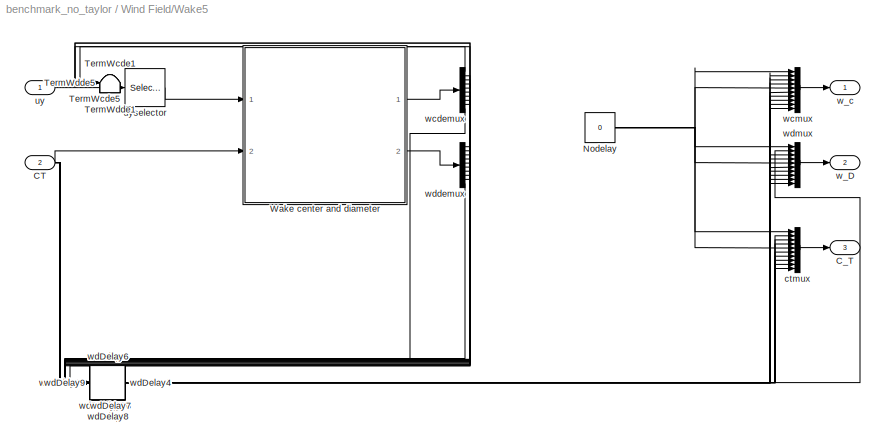
BLOCK [SubSystem] Wind Field/Wake5
  Ports = [2, 3]
  RequestExecContextInheritance = off
  SID = 300
  UserData = DataTag21
  UserDataPersistent = on
BLOCK [Inport] Wind Field/Wake5/CT
  IconDisplay = Port number
  Port = 2
  SID = 302
BLOCK [Outport] Wind Field/Wake5/C_T
  IconDisplay = Port number
  Port = 3
  SID = 313
BLOCK [Constant] Wind Field/Wake5/Nodelay
  SID = 303
  Value = 0
BLOCK [Terminator] Wind Field/Wake5/TermWcde1
  SID = 325
BLOCK [Terminator] Wind Field/Wake5/TermWcde5
  SID = 336
BLOCK [Terminator] Wind Field/Wake5/TermWdde1
  SID = 324
BLOCK [Terminator] Wind Field/Wake5/TermWdde5
  SID = 335
BLOCK [SubSystem] Wind Field/Wake5/Wake center and diameter
  ErrorFcn = Stateflow.Translate.translate
  PermitHierarchicalResolution = ExplicitOnly
  Ports = [2, 2]
  RequestExecContextInheritance = off
  SFBlockType = MATLAB Function
  SID = 304
  TreatAsAtomicUnit = on
BLOCK [Demux] Wind Field/Wake5/Wake center and diameter/ Demux 
  Outputs = 1
  Ports = [1, 1]
  SID = 304::82
BLOCK [S-Function] Wind Field/Wake5/Wake center and diameter/ SFunction 
  EnableBusSupport = off
  FunctionName = sf_sfun
  Parameters = p
  PortCounts = [2 3]
  Ports = [2, 3]
  SFcnIsStateOwnerBlock = off
  SFunctionDeploymentMode = off
  SID = 304::81
  Tag = Stateflow S-Function 12
BLOCK [Terminator] Wind Field/Wake5/Wake center and diameter/ Terminator 
  SID = 304::83
BLOCK [Inport] Wind Field/Wake5/Wake center and diameter/CT
  IconDisplay = Port number
  Port = 2
  SID = 304::2
BLOCK [Inport] Wind Field/Wake5/Wake center and diameter/uy
  IconDisplay = Port number
  SID = 304::1
BLOCK [Outport] Wind Field/Wake5/Wake center and diameter/w_c
  IconDisplay = Port number
  SID = 304::6
BLOCK [Outport] Wind Field/Wake5/Wake center and diameter/w_d
  IconDisplay = Port number
  Port = 2
  SID = 304::7
BLOCK [Delay] Wind Field/Wake5/ctDelay10
  DelayLength = 100
  InitialCondition = 0
  InputPortMap = u0
  Ports = [1, 1]
  SID = 349
  SampleTime = 1
BLOCK [Delay] Wind Field/Wake5/ctDelay2
  DelayLength = 20
  InitialCondition = 0
  InputPortMap = u0
  Ports = [1, 1]
  SID = 326
  SampleTime = 1
BLOCK [Delay] Wind Field/Wake5/ctDelay3
  DelayLength = 60
  InitialCondition = 0
  InputPortMap = u0
  Ports = [1, 1]
  SID = 329
  SampleTime = 1
BLOCK [Delay] Wind Field/Wake5/ctDelay4
  DelayLength = 100
  InitialCondition = 0
  InputPortMap = u0
  Ports = [1, 1]
  SID = 332
  SampleTime = 1
BLOCK [Delay] Wind Field/Wake5/ctDelay6
  DelayLength = 40
  InitialCondition = 0
  InputPortMap = u0
  Ports = [1, 1]
  SID = 337
  SampleTime = 1
BLOCK [Delay] Wind Field/Wake5/ctDelay7
  DelayLength = 80
  InitialCondition = 0
  InputPortMap = u0
  Ports = [1, 1]
  SID = 340
  SampleTime = 1
BLOCK [Delay] Wind Field/Wake5/ctDelay8
  DelayLength = 20
  InitialCondition = 0
  InputPortMap = u0
  Ports = [1, 1]
  SID = 343
  SampleTime = 1
BLOCK [Delay] Wind Field/Wake5/ctDelay9
  DelayLength = 60
  InitialCondition = 0
  InputPortMap = u0
  Ports = [1, 1]
  SID = 346
  SampleTime = 1
BLOCK [Mux] Wind Field/Wake5/ctmux
  DisplayOption = bar
  Inputs = 10
  Ports = [10, 1]
  SID = 305
BLOCK [Inport] Wind Field/Wake5/uy
  IconDisplay = Port number
  SID = 301
BLOCK [Selector] Wind Field/Wake5/uyselector
  IndexOptions = Select all,Index vector (dialog)
  Indices = [1 3],p.wt.num
  InputPortWidth = 3
  NumberOfDimensions = 2
  OutputSizes = 1,1
  Ports = [1, 1]
  SID = 306
BLOCK [Outport] Wind Field/Wake5/w_D
  IconDisplay = Port number
  Port = 2
  SID = 312
BLOCK [Outport] Wind Field/Wake5/w_c
  IconDisplay = Port number
  SID = 311
BLOCK [Delay] Wind Field/Wake5/wcDelay10
  DelayLength = 100
  InitialCondition = 0
  InputPortMap = u0
  Ports = [1, 1]
  SID = 350
  SampleTime = 1
BLOCK [Delay] Wind Field/Wake5/wcDelay2
  DelayLength = 20
  InitialCondition = 0
  InputPortMap = u0
  Ports = [1, 1]
  SID = 327
  SampleTime = 1
BLOCK [Delay] Wind Field/Wake5/wcDelay3
  DelayLength = 60
  InitialCondition = 0
  InputPortMap = u0
  Ports = [1, 1]
  SID = 330
  SampleTime = 1
BLOCK [Delay] Wind Field/Wake5/wcDelay4
  DelayLength = 100
  InitialCondition = 0
  InputPortMap = u0
  Ports = [1, 1]
  SID = 333
  SampleTime = 1
BLOCK [Delay] Wind Field/Wake5/wcDelay6
  DelayLength = 40
  InitialCondition = 0
  InputPortMap = u0
  Ports = [1, 1]
  SID = 338
  SampleTime = 1
BLOCK [Delay] Wind Field/Wake5/wcDelay7
  DelayLength = 80
  InitialCondition = 0
  InputPortMap = u0
  Ports = [1, 1]
  SID = 341
  SampleTime = 1
BLOCK [Delay] Wind Field/Wake5/wcDelay8
  DelayLength = 20
  InitialCondition = 0
  InputPortMap = u0
  Ports = [1, 1]
  SID = 344
  SampleTime = 1
BLOCK [Delay] Wind Field/Wake5/wcDelay9
  DelayLength = 60
  InitialCondition = 0
  InputPortMap = u0
  Ports = [1, 1]
  SID = 347
  SampleTime = 1
BLOCK [Demux] Wind Field/Wake5/wcdemux
  DisplayOption = bar
  Outputs = 10
  Ports = [1, 10]
  SID = 307
BLOCK [Mux] Wind Field/Wake5/wcmux
  DisplayOption = bar
  Inputs = 10
  Ports = [10, 1]
  SID = 308
BLOCK [Delay] Wind Field/Wake5/wdDelay10
  DelayLength = 100
  InitialCondition = 0
  InputPortMap = u0
  Ports = [1, 1]
  SID = 351
  SampleTime = 1
BLOCK [Delay] Wind Field/Wake5/wdDelay2
  DelayLength = 20
  InitialCondition = 0
  InputPortMap = u0
  Ports = [1, 1]
  SID = 328
  SampleTime = 1
BLOCK [Delay] Wind Field/Wake5/wdDelay3
  DelayLength = 60
  InitialCondition = 0
  InputPortMap = u0
  Ports = [1, 1]
  SID = 331
  SampleTime = 1
BLOCK [Delay] Wind Field/Wake5/wdDelay4
  DelayLength = 100
  InitialCondition = 0
  InputPortMap = u0
  Ports = [1, 1]
  SID = 334
  SampleTime = 1
BLOCK [Delay] Wind Field/Wake5/wdDelay6
  DelayLength = 40
  InitialCondition = 0
  InputPortMap = u0
  Ports = [1, 1]
  SID = 339
  SampleTime = 1
BLOCK [Delay] Wind Field/Wake5/wdDelay7
  DelayLength = 80
  InitialCondition = 0
  InputPortMap = u0
  Ports = [1, 1]
  SID = 342
  SampleTime = 1
BLOCK [Delay] Wind Field/Wake5/wdDelay8
  DelayLength = 20
  InitialCondition = 0
  InputPortMap = u0
  Ports = [1, 1]
  SID = 345
  SampleTime = 1
BLOCK [Delay] Wind Field/Wake5/wdDelay9
  DelayLength = 60
  InitialCondition = 0
  InputPortMap = u0
  Ports = [1, 1]
  SID = 348
  SampleTime = 1
BLOCK [Demux] Wind Field/Wake5/wddemux
  DisplayOption = bar
  Outputs = 10
  Ports = [1, 10]
  SID = 309
BLOCK [Mux] Wind Field/Wake5/wdmux
  DisplayOption = bar
  Inputs = 10
  Ports = [10, 1]
  SID = 310
BLOCK [SubSystem] Wind Field/Wake6
  Ports = [2, 3]
  RequestExecContextInheritance = off
  SID = 352
  UserData = DataTag22
  UserDataPersistent = on
BLOCK [Inport] Wind Field/Wake6/CT
  IconDisplay = Port number
  Port = 2
  SID = 354
BLOCK [Outport] Wind Field/Wake6/C_T
  IconDisplay = Port number
  Port = 3
  SID = 365
BLOCK [Constant] Wind Field/Wake6/Nodelay
  SID = 355
  Value = 0
BLOCK [Terminator] Wind Field/Wake6/TermWcde1
  SID = 377
BLOCK [Terminator] Wind Field/Wake6/TermWcde2
  SID = 379
BLOCK [Terminator] Wind Field/Wake6/TermWcde5
  SID = 387
BLOCK [Terminator] Wind Field/Wake6/TermWcde6
  SID = 389
BLOCK [Terminator] Wind Field/Wake6/TermWcde8
  SID = 394
BLOCK [Terminator] Wind Field/Wake6/TermWdde1
  SID = 376
BLOCK [Terminator] Wind Field/Wake6/TermWdde2
  SID = 378
BLOCK [Terminator] Wind Field/Wake6/TermWdde5
  SID = 386
BLOCK [Terminator] Wind Field/Wake6/TermWdde6
  SID = 388
BLOCK [Terminator] Wind Field/Wake6/TermWdde8
  SID = 393
BLOCK [SubSystem] Wind Field/Wake6/Wake center and diameter
  ErrorFcn = Stateflow.Translate.translate
  PermitHierarchicalResolution = ExplicitOnly
  Ports = [2, 2]
  RequestExecContextInheritance = off
  SFBlockType = MATLAB Function
  SID = 356
  TreatAsAtomicUnit = on
BLOCK [Demux] Wind Field/Wake6/Wake center and diameter/ Demux 
  Outputs = 1
  Ports = [1, 1]
  SID = 356::82
BLOCK [S-Function] Wind Field/Wake6/Wake center and diameter/ SFunction 
  EnableBusSupport = off
  FunctionName = sf_sfun
  Parameters = p
  PortCounts = [2 3]
  Ports = [2, 3]
  SFcnIsStateOwnerBlock = off
  SFunctionDeploymentMode = off
  SID = 356::81
  Tag = Stateflow S-Function 14
BLOCK [Terminator] Wind Field/Wake6/Wake center and diameter/ Terminator 
  SID = 356::83
BLOCK [Inport] Wind Field/Wake6/Wake center and diameter/CT
  IconDisplay = Port number
  Port = 2
  SID = 356::2
BLOCK [Inport] Wind Field/Wake6/Wake center and diameter/uy
  IconDisplay = Port number
  SID = 356::1
BLOCK [Outport] Wind Field/Wake6/Wake center and diameter/w_c
  IconDisplay = Port number
  SID = 356::6
BLOCK [Outport] Wind Field/Wake6/Wake center and diameter/w_d
  IconDisplay = Port number
  Port = 2
  SID = 356::7
BLOCK [Delay] Wind Field/Wake6/ctDelay10
  DelayLength = 60
  InitialCondition = 0
  InputPortMap = u0
  Ports = [1, 1]
  SID = 398
  SampleTime = 1
BLOCK [Delay] Wind Field/Wake6/ctDelay3
  DelayLength = 20
  InitialCondition = 0
  InputPortMap = u0
  Ports = [1, 1]
  SID = 380
  SampleTime = 1
BLOCK [Delay] Wind Field/Wake6/ctDelay4
  DelayLength = 60
  InitialCondition = 0
  InputPortMap = u0
  Ports = [1, 1]
  SID = 383
  SampleTime = 1
BLOCK [Delay] Wind Field/Wake6/ctDelay7
  DelayLength = 40
  InitialCondition = 0
  InputPortMap = u0
  Ports = [1, 1]
  SID = 390
  SampleTime = 1
BLOCK [Delay] Wind Field/Wake6/ctDelay9
  DelayLength = 20
  InitialCondition = 0
  InputPortMap = u0
  Ports = [1, 1]
  SID = 395
  SampleTime = 1
BLOCK [Mux] Wind Field/Wake6/ctmux
  DisplayOption = bar
  Inputs = 10
  Ports = [10, 1]
  SID = 357
BLOCK [Inport] Wind Field/Wake6/uy
  IconDisplay = Port number
  SID = 353
BLOCK [Selector] Wind Field/Wake6/uyselector
  IndexOptions = Select all,Index vector (dialog)
  Indices = [1 3],p.wt.num
  InputPortWidth = 3
  NumberOfDimensions = 2
  OutputSizes = 1,1
  Ports = [1, 1]
  SID = 358
BLOCK [Outport] Wind Field/Wake6/w_D
  IconDisplay = Port number
  Port = 2
  SID = 364
BLOCK [Outport] Wind Field/Wake6/w_c
  IconDisplay = Port number
  SID = 363
BLOCK [Delay] Wind Field/Wake6/wcDelay10
  DelayLength = 60
  InitialCondition = 0
  InputPortMap = u0
  Ports = [1, 1]
  SID = 399
  SampleTime = 1
BLOCK [Delay] Wind Field/Wake6/wcDelay3
  DelayLength = 20
  InitialCondition = 0
  InputPortMap = u0
  Ports = [1, 1]
  SID = 381
  SampleTime = 1
BLOCK [Delay] Wind Field/Wake6/wcDelay4
  DelayLength = 60
  InitialCondition = 0
  InputPortMap = u0
  Ports = [1, 1]
  SID = 384
  SampleTime = 1
BLOCK [Delay] Wind Field/Wake6/wcDelay7
  DelayLength = 40
  InitialCondition = 0
  InputPortMap = u0
  Ports = [1, 1]
  SID = 391
  SampleTime = 1
BLOCK [Delay] Wind Field/Wake6/wcDelay9
  DelayLength = 20
  InitialCondition = 0
  InputPortMap = u0
  Ports = [1, 1]
  SID = 396
  SampleTime = 1
BLOCK [Demux] Wind Field/Wake6/wcdemux
  DisplayOption = bar
  Outputs = 10
  Ports = [1, 10]
  SID = 359
BLOCK [Mux] Wind Field/Wake6/wcmux
  DisplayOption = bar
  Inputs = 10
  Ports = [10, 1]
  SID = 360
BLOCK [Delay] Wind Field/Wake6/wdDelay10
  DelayLength = 60
  InitialCondition = 0
  InputPortMap = u0
  Ports = [1, 1]
  SID = 400
  SampleTime = 1
BLOCK [Delay] Wind Field/Wake6/wdDelay3
  DelayLength = 20
  InitialCondition = 0
  InputPortMap = u0
  Ports = [1, 1]
  SID = 382
  SampleTime = 1
BLOCK [Delay] Wind Field/Wake6/wdDelay4
  DelayLength = 60
  InitialCondition = 0
  InputPortMap = u0
  Ports = [1, 1]
  SID = 385
  SampleTime = 1
BLOCK [Delay] Wind Field/Wake6/wdDelay7
  DelayLength = 40
  InitialCondition = 0
  InputPortMap = u0
  Ports = [1, 1]
  SID = 392
  SampleTime = 1
BLOCK [Delay] Wind Field/Wake6/wdDelay9
  DelayLength = 20
  InitialCondition = 0
  InputPortMap = u0
  Ports = [1, 1]
  SID = 397
  SampleTime = 1
BLOCK [Demux] Wind Field/Wake6/wddemux
  DisplayOption = bar
  Outputs = 10
  Ports = [1, 10]
  SID = 361
BLOCK [Mux] Wind Field/Wake6/wdmux
  DisplayOption = bar
  Inputs = 10
  Ports = [10, 1]
  SID = 362
BLOCK [SubSystem] Wind Field/Wake7
  Ports = [2, 3]
  RequestExecContextInheritance = off
  SID = 401
  UserData = DataTag23
  UserDataPersistent = on
BLOCK [Inport] Wind Field/Wake7/CT
  IconDisplay = Port number
  Port = 2
  SID = 403
BLOCK [Outport] Wind Field/Wake7/C_T
  IconDisplay = Port number
  Port = 3
  SID = 414
BLOCK [Constant] Wind Field/Wake7/Nodelay
  SID = 404
  Value = 0
BLOCK [Terminator] Wind Field/Wake7/TermWcde1
  SID = 426
BLOCK [Terminator] Wind Field/Wake7/TermWcde2
  SID = 428
BLOCK [Terminator] Wind Field/Wake7/TermWcde3
  SID = 430
BLOCK [Terminator] Wind Field/Wake7/TermWcde5
  SID = 435
BLOCK [Terminator] Wind Field/Wake7/TermWcde6
  SID = 437
BLOCK [Terminator] Wind Field/Wake7/TermWcde7
  SID = 439
BLOCK [Terminator] Wind Field/Wake7/TermWcde8
  SID = 441
BLOCK [Terminator] Wind Field/Wake7/TermWcde9
  SID = 443
BLOCK [Terminator] Wind Field/Wake7/TermWdde1
  SID = 425
BLOCK [Terminator] Wind Field/Wake7/TermWdde2
  SID = 427
BLOCK [Terminator] Wind Field/Wake7/TermWdde3
  SID = 429
BLOCK [Terminator] Wind Field/Wake7/TermWdde5
  SID = 434
BLOCK [Terminator] Wind Field/Wake7/TermWdde6
  SID = 436
BLOCK [Terminator] Wind Field/Wake7/TermWdde7
  SID = 438
BLOCK [Terminator] Wind Field/Wake7/TermWdde8
  SID = 440
BLOCK [Terminator] Wind Field/Wake7/TermWdde9
  SID = 442
BLOCK [SubSystem] Wind Field/Wake7/Wake center and diameter
  ErrorFcn = Stateflow.Translate.translate
  PermitHierarchicalResolution = ExplicitOnly
  Ports = [2, 2]
  RequestExecContextInheritance = off
  SFBlockType = MATLAB Function
  SID = 405
  TreatAsAtomicUnit = on
BLOCK [Demux] Wind Field/Wake7/Wake center and diameter/ Demux 
  Outputs = 1
  Ports = [1, 1]
  SID = 405::82
BLOCK [S-Function] Wind Field/Wake7/Wake center and diameter/ SFunction 
  EnableBusSupport = off
  FunctionName = sf_sfun
  Parameters = p
  PortCounts = [2 3]
  Ports = [2, 3]
  SFcnIsStateOwnerBlock = off
  SFunctionDeploymentMode = off
  SID = 405::81
  Tag = Stateflow S-Function 16
BLOCK [Terminator] Wind Field/Wake7/Wake center and diameter/ Terminator 
  SID = 405::83
BLOCK [Inport] Wind Field/Wake7/Wake center and diameter/CT
  IconDisplay = Port number
  Port = 2
  SID = 405::2
BLOCK [Inport] Wind Field/Wake7/Wake center and diameter/uy
  IconDisplay = Port number
  SID = 405::1
BLOCK [Outport] Wind Field/Wake7/Wake center and diameter/w_c
  IconDisplay = Port number
  SID = 405::6
BLOCK [Outport] Wind Field/Wake7/Wake center and diameter/w_d
  IconDisplay = Port number
  Port = 2
  SID = 405::7
BLOCK [Delay] Wind Field/Wake7/ctDelay10
  DelayLength = 20
  InitialCondition = 0
  InputPortMap = u0
  Ports = [1, 1]
  SID = 444
  SampleTime = 1
BLOCK [Delay] Wind Field/Wake7/ctDelay4
  DelayLength = 20
  InitialCondition = 0
  InputPortMap = u0
  Ports = [1, 1]
  SID = 431
  SampleTime = 1
BLOCK [Mux] Wind Field/Wake7/ctmux
  DisplayOption = bar
  Inputs = 10
  Ports = [10, 1]
  SID = 406
BLOCK [Inport] Wind Field/Wake7/uy
  IconDisplay = Port number
  SID = 402
BLOCK [Selector] Wind Field/Wake7/uyselector
  IndexOptions = Select all,Index vector (dialog)
  Indices = [1 3],p.wt.num
  InputPortWidth = 3
  NumberOfDimensions = 2
  OutputSizes = 1,1
  Ports = [1, 1]
  SID = 407
BLOCK [Outport] Wind Field/Wake7/w_D
  IconDisplay = Port number
  Port = 2
  SID = 413
BLOCK [Outport] Wind Field/Wake7/w_c
  IconDisplay = Port number
  SID = 412
BLOCK [Delay] Wind Field/Wake7/wcDelay10
  DelayLength = 20
  InitialCondition = 0
  InputPortMap = u0
  Ports = [1, 1]
  SID = 445
  SampleTime = 1
BLOCK [Delay] Wind Field/Wake7/wcDelay4
  DelayLength = 20
  InitialCondition = 0
  InputPortMap = u0
  Ports = [1, 1]
  SID = 432
  SampleTime = 1
BLOCK [Demux] Wind Field/Wake7/wcdemux
  DisplayOption = bar
  Outputs = 10
  Ports = [1, 10]
  SID = 408
BLOCK [Mux] Wind Field/Wake7/wcmux
  DisplayOption = bar
  Inputs = 10
  Ports = [10, 1]
  SID = 409
BLOCK [Delay] Wind Field/Wake7/wdDelay10
  DelayLength = 20
  InitialCondition = 0
  InputPortMap = u0
  Ports = [1, 1]
  SID = 446
  SampleTime = 1
BLOCK [Delay] Wind Field/Wake7/wdDelay4
  DelayLength = 20
  InitialCondition = 0
  InputPortMap = u0
  Ports = [1, 1]
  SID = 433
  SampleTime = 1
BLOCK [Demux] Wind Field/Wake7/wddemux
  DisplayOption = bar
  Outputs = 10
  Ports = [1, 10]
  SID = 410
BLOCK [Mux] Wind Field/Wake7/wdmux
  DisplayOption = bar
  Inputs = 10
  Ports = [10, 1]
  SID = 411
BLOCK [SubSystem] Wind Field/Wake8
  Ports = [2, 3]
  RequestExecContextInheritance = off
  SID = 447
  UserData = DataTag24
  UserDataPersistent = on
BLOCK [Inport] Wind Field/Wake8/CT
  IconDisplay = Port number
  Port = 2
  SID = 449
BLOCK [Outport] Wind Field/Wake8/C_T
  IconDisplay = Port number
  Port = 3
  SID = 460
BLOCK [Constant] Wind Field/Wake8/Nodelay
  SID = 450
  Value = 0
BLOCK [Terminator] Wind Field/Wake8/TermWcde1
  SID = 472
BLOCK [Terminator] Wind Field/Wake8/TermWcde2
  SID = 474
BLOCK [Terminator] Wind Field/Wake8/TermWcde5
  SID = 482
BLOCK [Terminator] Wind Field/Wake8/TermWcde8
  SID = 490
BLOCK [Terminator] Wind Field/Wake8/TermWdde1
  SID = 471
BLOCK [Terminator] Wind Field/Wake8/TermWdde2
  SID = 473
BLOCK [Terminator] Wind Field/Wake8/TermWdde5
  SID = 481
BLOCK [Terminator] Wind Field/Wake8/TermWdde8
  SID = 489
BLOCK [SubSystem] Wind Field/Wake8/Wake center and diameter
  ErrorFcn = Stateflow.Translate.translate
  PermitHierarchicalResolution = ExplicitOnly
  Ports = [2, 2]
  RequestExecContextInheritance = off
  SFBlockType = MATLAB Function
  SID = 451
  TreatAsAtomicUnit = on
BLOCK [Demux] Wind Field/Wake8/Wake center and diameter/ Demux 
  Outputs = 1
  Ports = [1, 1]
  SID = 451::82
BLOCK [S-Function] Wind Field/Wake8/Wake center and diameter/ SFunction 
  EnableBusSupport = off
  FunctionName = sf_sfun
  Parameters = p
  PortCounts = [2 3]
  Ports = [2, 3]
  SFcnIsStateOwnerBlock = off
  SFunctionDeploymentMode = off
  SID = 451::81
  Tag = Stateflow S-Function 18
BLOCK [Terminator] Wind Field/Wake8/Wake center and diameter/ Terminator 
  SID = 451::83
BLOCK [Inport] Wind Field/Wake8/Wake center and diameter/CT
  IconDisplay = Port number
  Port = 2
  SID = 451::2
BLOCK [Inport] Wind Field/Wake8/Wake center and diameter/uy
  IconDisplay = Port number
  SID = 451::1
BLOCK [Outport] Wind Field/Wake8/Wake center and diameter/w_c
  IconDisplay = Port number
  SID = 451::6
BLOCK [Outport] Wind Field/Wake8/Wake center and diameter/w_d
  IconDisplay = Port number
  Port = 2
  SID = 451::7
BLOCK [Delay] Wind Field/Wake8/ctDelay10
  DelayLength = 80
  InitialCondition = 0
  InputPortMap = u0
  Ports = [1, 1]
  SID = 494
  SampleTime = 1
BLOCK [Delay] Wind Field/Wake8/ctDelay3
  DelayLength = 40
  InitialCondition = 0
  InputPortMap = u0
  Ports = [1, 1]
  SID = 475
  SampleTime = 1
BLOCK [Delay] Wind Field/Wake8/ctDelay4
  DelayLength = 80
  InitialCondition = 0
  InputPortMap = u0
  Ports = [1, 1]
  SID = 478
  SampleTime = 1
BLOCK [Delay] Wind Field/Wake8/ctDelay6
  DelayLength = 20
  InitialCondition = 0
  InputPortMap = u0
  Ports = [1, 1]
  SID = 483
  SampleTime = 1
BLOCK [Delay] Wind Field/Wake8/ctDelay7
  DelayLength = 60
  InitialCondition = 0
  InputPortMap = u0
  Ports = [1, 1]
  SID = 486
  SampleTime = 1
BLOCK [Delay] Wind Field/Wake8/ctDelay9
  DelayLength = 40
  InitialCondition = 0
  InputPortMap = u0
  Ports = [1, 1]
  SID = 491
  SampleTime = 1
BLOCK [Mux] Wind Field/Wake8/ctmux
  DisplayOption = bar
  Inputs = 10
  Ports = [10, 1]
  SID = 452
BLOCK [Inport] Wind Field/Wake8/uy
  IconDisplay = Port number
  SID = 448
BLOCK [Selector] Wind Field/Wake8/uyselector
  IndexOptions = Select all,Index vector (dialog)
  Indices = [1 3],p.wt.num
  InputPortWidth = 3
  NumberOfDimensions = 2
  OutputSizes = 1,1
  Ports = [1, 1]
  SID = 453
BLOCK [Outport] Wind Field/Wake8/w_D
  IconDisplay = Port number
  Port = 2
  SID = 459
BLOCK [Outport] Wind Field/Wake8/w_c
  IconDisplay = Port number
  SID = 458
BLOCK [Delay] Wind Field/Wake8/wcDelay10
  DelayLength = 80
  InitialCondition = 0
  InputPortMap = u0
  Ports = [1, 1]
  SID = 495
  SampleTime = 1
BLOCK [Delay] Wind Field/Wake8/wcDelay3
  DelayLength = 40
  InitialCondition = 0
  InputPortMap = u0
  Ports = [1, 1]
  SID = 476
  SampleTime = 1
BLOCK [Delay] Wind Field/Wake8/wcDelay4
  DelayLength = 80
  InitialCondition = 0
  InputPortMap = u0
  Ports = [1, 1]
  SID = 479
  SampleTime = 1
BLOCK [Delay] Wind Field/Wake8/wcDelay6
  DelayLength = 20
  InitialCondition = 0
  InputPortMap = u0
  Ports = [1, 1]
  SID = 484
  SampleTime = 1
BLOCK [Delay] Wind Field/Wake8/wcDelay7
  DelayLength = 60
  InitialCondition = 0
  InputPortMap = u0
  Ports = [1, 1]
  SID = 487
  SampleTime = 1
BLOCK [Delay] Wind Field/Wake8/wcDelay9
  DelayLength = 40
  InitialCondition = 0
  InputPortMap = u0
  Ports = [1, 1]
  SID = 492
  SampleTime = 1
BLOCK [Demux] Wind Field/Wake8/wcdemux
  DisplayOption = bar
  Outputs = 10
  Ports = [1, 10]
  SID = 454
BLOCK [Mux] Wind Field/Wake8/wcmux
  DisplayOption = bar
  Inputs = 10
  Ports = [10, 1]
  SID = 455
BLOCK [Delay] Wind Field/Wake8/wdDelay10
  DelayLength = 80
  InitialCondition = 0
  InputPortMap = u0
  Ports = [1, 1]
  SID = 496
  SampleTime = 1
BLOCK [Delay] Wind Field/Wake8/wdDelay3
  DelayLength = 40
  InitialCondition = 0
  InputPortMap = u0
  Ports = [1, 1]
  SID = 477
  SampleTime = 1
BLOCK [Delay] Wind Field/Wake8/wdDelay4
  DelayLength = 80
  InitialCondition = 0
  InputPortMap = u0
  Ports = [1, 1]
  SID = 480
  SampleTime = 1
BLOCK [Delay] Wind Field/Wake8/wdDelay6
  DelayLength = 20
  InitialCondition = 0
  InputPortMap = u0
  Ports = [1, 1]
  SID = 485
  SampleTime = 1
BLOCK [Delay] Wind Field/Wake8/wdDelay7
  DelayLength = 60
  InitialCondition = 0
  InputPortMap = u0
  Ports = [1, 1]
  SID = 488
  SampleTime = 1
BLOCK [Delay] Wind Field/Wake8/wdDelay9
  DelayLength = 40
  InitialCondition = 0
  InputPortMap = u0
  Ports = [1, 1]
  SID = 493
  SampleTime = 1
BLOCK [Demux] Wind Field/Wake8/wddemux
  DisplayOption = bar
  Outputs = 10
  Ports = [1, 10]
  SID = 456
BLOCK [Mux] Wind Field/Wake8/wdmux
  DisplayOption = bar
  Inputs = 10
  Ports = [10, 1]
  SID = 457
BLOCK [SubSystem] Wind Field/Wake9
  Ports = [2, 3]
  RequestExecContextInheritance = off
  SID = 497
  UserData = DataTag25
  UserDataPersistent = on
BLOCK [Inport] Wind Field/Wake9/CT
  IconDisplay = Port number
  Port = 2
  SID = 499
BLOCK [Outport] Wind Field/Wake9/C_T
  IconDisplay = Port number
  Port = 3
  SID = 510
BLOCK [Constant] Wind Field/Wake9/Nodelay
  SID = 500
  Value = 0
BLOCK [Terminator] Wind Field/Wake9/TermWcde1
  SID = 522
BLOCK [Terminator] Wind Field/Wake9/TermWcde2
  SID = 524
BLOCK [Terminator] Wind Field/Wake9/TermWcde3
  SID = 526
BLOCK [Terminator] Wind Field/Wake9/TermWcde5
  SID = 531
BLOCK [Terminator] Wind Field/Wake9/TermWcde6
  SID = 533
BLOCK [Terminator] Wind Field/Wake9/TermWcde8
  SID = 538
BLOCK [Terminator] Wind Field/Wake9/TermWcde9
  SID = 540
BLOCK [Terminator] Wind Field/Wake9/TermWdde1
  SID = 521
BLOCK [Terminator] Wind Field/Wake9/TermWdde2
  SID = 523
BLOCK [Terminator] Wind Field/Wake9/TermWdde3
  SID = 525
BLOCK [Terminator] Wind Field/Wake9/TermWdde5
  SID = 530
BLOCK [Terminator] Wind Field/Wake9/TermWdde6
  SID = 532
BLOCK [Terminator] Wind Field/Wake9/TermWdde8
  SID = 537
BLOCK [Terminator] Wind Field/Wake9/TermWdde9
  SID = 539
BLOCK [SubSystem] Wind Field/Wake9/Wake center and diameter
  ErrorFcn = Stateflow.Translate.translate
  PermitHierarchicalResolution = ExplicitOnly
  Ports = [2, 2]
  RequestExecContextInheritance = off
  SFBlockType = MATLAB Function
  SID = 501
  TreatAsAtomicUnit = on
BLOCK [Demux] Wind Field/Wake9/Wake center and diameter/ Demux 
  Outputs = 1
  Ports = [1, 1]
  SID = 501::82
BLOCK [S-Function] Wind Field/Wake9/Wake center and diameter/ SFunction 
  EnableBusSupport = off
  FunctionName = sf_sfun
  Parameters = p
  PortCounts = [2 3]
  Ports = [2, 3]
  SFcnIsStateOwnerBlock = off
  SFunctionDeploymentMode = off
  SID = 501::81
  Tag = Stateflow S-Function 20
BLOCK [Terminator] Wind Field/Wake9/Wake center and diameter/ Terminator 
  SID = 501::83
BLOCK [Inport] Wind Field/Wake9/Wake center and diameter/CT
  IconDisplay = Port number
  Port = 2
  SID = 501::2
BLOCK [Inport] Wind Field/Wake9/Wake center and diameter/uy
  IconDisplay = Port number
  SID = 501::1
BLOCK [Outport] Wind Field/Wake9/Wake center and diameter/w_c
  IconDisplay = Port number
  SID = 501::6
BLOCK [Outport] Wind Field/Wake9/Wake center and diameter/w_d
  IconDisplay = Port number
  Port = 2
  SID = 501::7
BLOCK [Delay] Wind Field/Wake9/ctDelay10
  DelayLength = 40
  InitialCondition = 0
  InputPortMap = u0
  Ports = [1, 1]
  SID = 541
  SampleTime = 1
BLOCK [Delay] Wind Field/Wake9/ctDelay4
  DelayLength = 40
  InitialCondition = 0
  InputPortMap = u0
  Ports = [1, 1]
  SID = 527
  SampleTime = 1
BLOCK [Delay] Wind Field/Wake9/ctDelay7
  DelayLength = 20
  InitialCondition = 0
  InputPortMap = u0
  Ports = [1, 1]
  SID = 534
  SampleTime = 1
BLOCK [Mux] Wind Field/Wake9/ctmux
  DisplayOption = bar
  Inputs = 10
  Ports = [10, 1]
  SID = 502
BLOCK [Inport] Wind Field/Wake9/uy
  IconDisplay = Port number
  SID = 498
BLOCK [Selector] Wind Field/Wake9/uyselector
  IndexOptions = Select all,Index vector (dialog)
  Indices = [1 3],p.wt.num
  InputPortWidth = 3
  NumberOfDimensions = 2
  OutputSizes = 1,1
  Ports = [1, 1]
  SID = 503
BLOCK [Outport] Wind Field/Wake9/w_D
  IconDisplay = Port number
  Port = 2
  SID = 509
BLOCK [Outport] Wind Field/Wake9/w_c
  IconDisplay = Port number
  SID = 508
BLOCK [Delay] Wind Field/Wake9/wcDelay10
  DelayLength = 40
  InitialCondition = 0
  InputPortMap = u0
  Ports = [1, 1]
  SID = 542
  SampleTime = 1
BLOCK [Delay] Wind Field/Wake9/wcDelay4
  DelayLength = 40
  InitialCondition = 0
  InputPortMap = u0
  Ports = [1, 1]
  SID = 528
  SampleTime = 1
BLOCK [Delay] Wind Field/Wake9/wcDelay7
  DelayLength = 20
  InitialCondition = 0
  InputPortMap = u0
  Ports = [1, 1]
  SID = 535
  SampleTime = 1
BLOCK [Demux] Wind Field/Wake9/wcdemux
  DisplayOption = bar
  Outputs = 10
  Ports = [1, 10]
  SID = 504
BLOCK [Mux] Wind Field/Wake9/wcmux
  DisplayOption = bar
  Inputs = 10
  Ports = [10, 1]
  SID = 505
BLOCK [Delay] Wind Field/Wake9/wdDelay10
  DelayLength = 40
  InitialCondition = 0
  InputPortMap = u0
  Ports = [1, 1]
  SID = 543
  SampleTime = 1
BLOCK [Delay] Wind Field/Wake9/wdDelay4
  DelayLength = 40
  InitialCondition = 0
  InputPortMap = u0
  Ports = [1, 1]
  SID = 529
  SampleTime = 1
BLOCK [Delay] Wind Field/Wake9/wdDelay7
  DelayLength = 20
  InitialCondition = 0
  InputPortMap = u0
  Ports = [1, 1]
  SID = 536
  SampleTime = 1
BLOCK [Demux] Wind Field/Wake9/wddemux
  DisplayOption = bar
  Outputs = 10
  Ports = [1, 10]
  SID = 506
BLOCK [Mux] Wind Field/Wake9/wdmux
  DisplayOption = bar
  Inputs = 10
  Ports = [10, 1]
  SID = 507
BLOCK [SubSystem] Wind Field/Wind Speed1
  Ports = [1, 2]
  RequestExecContextInheritance = off
  SID = 120
  UserData = DataTag26
  UserDataPersistent = on
BLOCK [Reference] Wind Field/Wind Speed1/Counter\nFree-Running  REF=simulink/Sources/Counter\nFree-Running
  NumBits = 32
  Ports = [0, 1]
  SID = 122
  SourceBlock = simulink/Sources/Counter\nFree-Running
  SourceProductBaseCode = SL
  SourceProductName = Simulink
  SourceType = Counter Free-Running
  tsamp = p.ts
BLOCK [Selector] Wind Field/Wind Speed1/Selector1
  IndexMode = Zero-based
  IndexOptions = Select all,Index vector (port)
  Indices = [1 3],1
  InputPortWidth = 3
  NumberOfDimensions = 2
  OutputSizes = 1,1
  Ports = [2, 1]
  SID = 123
BLOCK [SignalConversion] Wind Field/Wind Speed1/Signal\nConversion
  ConversionOutput = Contiguous copy
  OverrideOpt = off
  SID = 124
BLOCK [SignalConversion] Wind Field/Wind Speed1/Signal\nConversion1
  ConversionOutput = Contiguous copy
  OverrideOpt = off
  SID = 125
BLOCK [Constant] Wind Field/Wind Speed1/Ux_full
  SID = 126
  Value = p.wind'
BLOCK [SubSystem] Wind Field/Wind Speed1/Wind speed
  ErrorFcn = Stateflow.Translate.translate
  PermitHierarchicalResolution = ExplicitOnly
  Ports = [2, 2]
  RequestExecContextInheritance = off
  SFBlockType = MATLAB Function
  SID = 127
  TreatAsAtomicUnit = on
BLOCK [Demux] Wind Field/Wind Speed1/Wind speed/ Demux 
  Outputs = 1
  Ports = [1, 1]
  SID = 127::82
BLOCK [S-Function] Wind Field/Wind Speed1/Wind speed/ SFunction 
  EnableBusSupport = off
  FunctionName = sf_sfun
  Parameters = p
  PortCounts = [2 3]
  Ports = [2, 3]
  SFcnIsStateOwnerBlock = off
  SFunctionDeploymentMode = off
  SID = 127::81
  Tag = Stateflow S-Function 5
BLOCK [Terminator] Wind Field/Wind Speed1/Wind speed/ Terminator 
  SID = 127::83
BLOCK [Inport] Wind Field/Wind Speed1/Wind speed/def
  IconDisplay = Port number
  Port = 2
  SID = 127::3
BLOCK [Outport] Wind Field/Wind Speed1/Wind speed/uavg
  IconDisplay = Port number
  SID = 127::23
BLOCK [Outport] Wind Field/Wind Speed1/Wind speed/upoint
  IconDisplay = Port number
  Port = 2
  SID = 127::25
BLOCK [Inport] Wind Field/Wind Speed1/Wind speed/ux
  IconDisplay = Port number
  SID = 127::1
BLOCK [Inport] Wind Field/Wind Speed1/def
  IconDisplay = Port number
  SID = 121
BLOCK [Outport] Wind Field/Wind Speed1/v_nac
  IconDisplay = Port number
  Port = 2
  SID = 129
BLOCK [Outport] Wind Field/Wind Speed1/v_rot
  IconDisplay = Port number
  SID = 128
BLOCK [SubSystem] Wind Field/Wind Speed10
  Ports = [1, 2]
  RequestExecContextInheritance = off
  SID = 558
  UserData = DataTag27
  UserDataPersistent = on
BLOCK [Reference] Wind Field/Wind Speed10/Counter\nFree-Running  REF=simulink/Sources/Counter\nFree-Running
  NumBits = 32
  Ports = [0, 1]
  SID = 560
  SourceBlock = simulink/Sources/Counter\nFree-Running
  SourceProductBaseCode = SL
  SourceProductName = Simulink
  SourceType = Counter Free-Running
  tsamp = p.ts
BLOCK [Selector] Wind Field/Wind Speed10/Selector1
  IndexMode = Zero-based
  IndexOptions = Select all,Index vector (port)
  Indices = [1 3],1
  InputPortWidth = 3
  NumberOfDimensions = 2
  OutputSizes = 1,1
  Ports = [2, 1]
  SID = 561
BLOCK [SignalConversion] Wind Field/Wind Speed10/Signal\nConversion
  ConversionOutput = Contiguous copy
  OverrideOpt = off
  SID = 562
BLOCK [SignalConversion] Wind Field/Wind Speed10/Signal\nConversion1
  ConversionOutput = Contiguous copy
  OverrideOpt = off
  SID = 563
BLOCK [Constant] Wind Field/Wind Speed10/Ux_full
  SID = 564
  Value = p.wind'
BLOCK [SubSystem] Wind Field/Wind Speed10/Wind speed
  ErrorFcn = Stateflow.Translate.translate
  PermitHierarchicalResolution = ExplicitOnly
  Ports = [2, 2]
  RequestExecContextInheritance = off
  SFBlockType = MATLAB Function
  SID = 565
  TreatAsAtomicUnit = on
BLOCK [Demux] Wind Field/Wind Speed10/Wind speed/ Demux 
  Outputs = 1
  Ports = [1, 1]
  SID = 565::82
BLOCK [S-Function] Wind Field/Wind Speed10/Wind speed/ SFunction 
  EnableBusSupport = off
  FunctionName = sf_sfun
  Parameters = p
  PortCounts = [2 3]
  Ports = [2, 3]
  SFcnIsStateOwnerBlock = off
  SFunctionDeploymentMode = off
  SID = 565::81
  Tag = Stateflow S-Function 23
BLOCK [Terminator] Wind Field/Wind Speed10/Wind speed/ Terminator 
  SID = 565::83
BLOCK [Inport] Wind Field/Wind Speed10/Wind speed/def
  IconDisplay = Port number
  Port = 2
  SID = 565::3
BLOCK [Outport] Wind Field/Wind Speed10/Wind speed/uavg
  IconDisplay = Port number
  SID = 565::23
BLOCK [Outport] Wind Field/Wind Speed10/Wind speed/upoint
  IconDisplay = Port number
  Port = 2
  SID = 565::25
BLOCK [Inport] Wind Field/Wind Speed10/Wind speed/ux
  IconDisplay = Port number
  SID = 565::1
BLOCK [Inport] Wind Field/Wind Speed10/def
  IconDisplay = Port number
  SID = 559
BLOCK [Outport] Wind Field/Wind Speed10/v_nac
  IconDisplay = Port number
  Port = 2
  SID = 567
BLOCK [Outport] Wind Field/Wind Speed10/v_rot
  IconDisplay = Port number
  SID = 566
BLOCK [SubSystem] Wind Field/Wind Speed2
  Ports = [1, 2]
  RequestExecContextInheritance = off
  SID = 173
  UserData = DataTag28
  UserDataPersistent = on
BLOCK [Reference] Wind Field/Wind Speed2/Counter\nFree-Running  REF=simulink/Sources/Counter\nFree-Running
  NumBits = 32
  Ports = [0, 1]
  SID = 175
  SourceBlock = simulink/Sources/Counter\nFree-Running
  SourceProductBaseCode = SL
  SourceProductName = Simulink
  SourceType = Counter Free-Running
  tsamp = p.ts
BLOCK [Selector] Wind Field/Wind Speed2/Selector1
  IndexMode = Zero-based
  IndexOptions = Select all,Index vector (port)
  Indices = [1 3],1
  InputPortWidth = 3
  NumberOfDimensions = 2
  OutputSizes = 1,1
  Ports = [2, 1]
  SID = 176
BLOCK [SignalConversion] Wind Field/Wind Speed2/Signal\nConversion
  ConversionOutput = Contiguous copy
  OverrideOpt = off
  SID = 177
BLOCK [SignalConversion] Wind Field/Wind Speed2/Signal\nConversion1
  ConversionOutput = Contiguous copy
  OverrideOpt = off
  SID = 178
BLOCK [Constant] Wind Field/Wind Speed2/Ux_full
  SID = 179
  Value = p.wind'
BLOCK [SubSystem] Wind Field/Wind Speed2/Wind speed
  ErrorFcn = Stateflow.Translate.translate
  PermitHierarchicalResolution = ExplicitOnly
  Ports = [2, 2]
  RequestExecContextInheritance = off
  SFBlockType = MATLAB Function
  SID = 180
  TreatAsAtomicUnit = on
BLOCK [Demux] Wind Field/Wind Speed2/Wind speed/ Demux 
  Outputs = 1
  Ports = [1, 1]
  SID = 180::82
BLOCK [S-Function] Wind Field/Wind Speed2/Wind speed/ SFunction 
  EnableBusSupport = off
  FunctionName = sf_sfun
  Parameters = p
  PortCounts = [2 3]
  Ports = [2, 3]
  SFcnIsStateOwnerBlock = off
  SFunctionDeploymentMode = off
  SID = 180::81
  Tag = Stateflow S-Function 7
BLOCK [Terminator] Wind Field/Wind Speed2/Wind speed/ Terminator 
  SID = 180::83
BLOCK [Inport] Wind Field/Wind Speed2/Wind speed/def
  IconDisplay = Port number
  Port = 2
  SID = 180::3
BLOCK [Outport] Wind Field/Wind Speed2/Wind speed/uavg
  IconDisplay = Port number
  SID = 180::23
BLOCK [Outport] Wind Field/Wind Speed2/Wind speed/upoint
  IconDisplay = Port number
  Port = 2
  SID = 180::25
BLOCK [Inport] Wind Field/Wind Speed2/Wind speed/ux
  IconDisplay = Port number
  SID = 180::1
BLOCK [Inport] Wind Field/Wind Speed2/def
  IconDisplay = Port number
  SID = 174
BLOCK [Outport] Wind Field/Wind Speed2/v_nac
  IconDisplay = Port number
  Port = 2
  SID = 182
BLOCK [Outport] Wind Field/Wind Speed2/v_rot
  IconDisplay = Port number
  SID = 181
BLOCK [SubSystem] Wind Field/Wind Speed3
  Ports = [1, 2]
  RequestExecContextInheritance = off
  SID = 223
  UserData = DataTag29
  UserDataPersistent = on
BLOCK [Reference] Wind Field/Wind Speed3/Counter\nFree-Running  REF=simulink/Sources/Counter\nFree-Running
  NumBits = 32
  Ports = [0, 1]
  SID = 225
  SourceBlock = simulink/Sources/Counter\nFree-Running
  SourceProductBaseCode = SL
  SourceProductName = Simulink
  SourceType = Counter Free-Running
  tsamp = p.ts
BLOCK [Selector] Wind Field/Wind Speed3/Selector1
  IndexMode = Zero-based
  IndexOptions = Select all,Index vector (port)
  Indices = [1 3],1
  InputPortWidth = 3
  NumberOfDimensions = 2
  OutputSizes = 1,1
  Ports = [2, 1]
  SID = 226
BLOCK [SignalConversion] Wind Field/Wind Speed3/Signal\nConversion
  ConversionOutput = Contiguous copy
  OverrideOpt = off
  SID = 227
BLOCK [SignalConversion] Wind Field/Wind Speed3/Signal\nConversion1
  ConversionOutput = Contiguous copy
  OverrideOpt = off
  SID = 228
BLOCK [Constant] Wind Field/Wind Speed3/Ux_full
  SID = 229
  Value = p.wind'
BLOCK [SubSystem] Wind Field/Wind Speed3/Wind speed
  ErrorFcn = Stateflow.Translate.translate
  PermitHierarchicalResolution = ExplicitOnly
  Ports = [2, 2]
  RequestExecContextInheritance = off
  SFBlockType = MATLAB Function
  SID = 230
  TreatAsAtomicUnit = on
BLOCK [Demux] Wind Field/Wind Speed3/Wind speed/ Demux 
  Outputs = 1
  Ports = [1, 1]
  SID = 230::82
BLOCK [S-Function] Wind Field/Wind Speed3/Wind speed/ SFunction 
  EnableBusSupport = off
  FunctionName = sf_sfun
  Parameters = p
  PortCounts = [2 3]
  Ports = [2, 3]
  SFcnIsStateOwnerBlock = off
  SFunctionDeploymentMode = off
  SID = 230::81
  Tag = Stateflow S-Function 9
BLOCK [Terminator] Wind Field/Wind Speed3/Wind speed/ Terminator 
  SID = 230::83
BLOCK [Inport] Wind Field/Wind Speed3/Wind speed/def
  IconDisplay = Port number
  Port = 2
  SID = 230::3
BLOCK [Outport] Wind Field/Wind Speed3/Wind speed/uavg
  IconDisplay = Port number
  SID = 230::23
BLOCK [Outport] Wind Field/Wind Speed3/Wind speed/upoint
  IconDisplay = Port number
  Port = 2
  SID = 230::25
BLOCK [Inport] Wind Field/Wind Speed3/Wind speed/ux
  IconDisplay = Port number
  SID = 230::1
BLOCK [Inport] Wind Field/Wind Speed3/def
  IconDisplay = Port number
  SID = 224
BLOCK [Outport] Wind Field/Wind Speed3/v_nac
  IconDisplay = Port number
  Port = 2
  SID = 232
BLOCK [Outport] Wind Field/Wind Speed3/v_rot
  IconDisplay = Port number
  SID = 231
BLOCK [SubSystem] Wind Field/Wind Speed4
  Ports = [1, 2]
  RequestExecContextInheritance = off
  SID = 270
  UserData = DataTag30
  UserDataPersistent = on
BLOCK [Reference] Wind Field/Wind Speed4/Counter\nFree-Running  REF=simulink/Sources/Counter\nFree-Running
  NumBits = 32
  Ports = [0, 1]
  SID = 272
  SourceBlock = simulink/Sources/Counter\nFree-Running
  SourceProductBaseCode = SL
  SourceProductName = Simulink
  SourceType = Counter Free-Running
  tsamp = p.ts
BLOCK [Selector] Wind Field/Wind Speed4/Selector1
  IndexMode = Zero-based
  IndexOptions = Select all,Index vector (port)
  Indices = [1 3],1
  InputPortWidth = 3
  NumberOfDimensions = 2
  OutputSizes = 1,1
  Ports = [2, 1]
  SID = 273
BLOCK [SignalConversion] Wind Field/Wind Speed4/Signal\nConversion
  ConversionOutput = Contiguous copy
  OverrideOpt = off
  SID = 274
BLOCK [SignalConversion] Wind Field/Wind Speed4/Signal\nConversion1
  ConversionOutput = Contiguous copy
  OverrideOpt = off
  SID = 275
BLOCK [Constant] Wind Field/Wind Speed4/Ux_full
  SID = 276
  Value = p.wind'
BLOCK [SubSystem] Wind Field/Wind Speed4/Wind speed
  ErrorFcn = Stateflow.Translate.translate
  PermitHierarchicalResolution = ExplicitOnly
  Ports = [2, 2]
  RequestExecContextInheritance = off
  SFBlockType = MATLAB Function
  SID = 277
  TreatAsAtomicUnit = on
BLOCK [Demux] Wind Field/Wind Speed4/Wind speed/ Demux 
  Outputs = 1
  Ports = [1, 1]
  SID = 277::82
BLOCK [S-Function] Wind Field/Wind Speed4/Wind speed/ SFunction 
  EnableBusSupport = off
  FunctionName = sf_sfun
  Parameters = p
  PortCounts = [2 3]
  Ports = [2, 3]
  SFcnIsStateOwnerBlock = off
  SFunctionDeploymentMode = off
  SID = 277::81
  Tag = Stateflow S-Function 11
BLOCK [Terminator] Wind Field/Wind Speed4/Wind speed/ Terminator 
  SID = 277::83
BLOCK [Inport] Wind Field/Wind Speed4/Wind speed/def
  IconDisplay = Port number
  Port = 2
  SID = 277::3
BLOCK [Outport] Wind Field/Wind Speed4/Wind speed/uavg
  IconDisplay = Port number
  SID = 277::23
BLOCK [Outport] Wind Field/Wind Speed4/Wind speed/upoint
  IconDisplay = Port number
  Port = 2
  SID = 277::25
BLOCK [Inport] Wind Field/Wind Speed4/Wind speed/ux
  IconDisplay = Port number
  SID = 277::1
BLOCK [Inport] Wind Field/Wind Speed4/def
  IconDisplay = Port number
  SID = 271
BLOCK [Outport] Wind Field/Wind Speed4/v_nac
  IconDisplay = Port number
  Port = 2
  SID = 279
BLOCK [Outport] Wind Field/Wind Speed4/v_rot
  IconDisplay = Port number
  SID = 278
BLOCK [SubSystem] Wind Field/Wind Speed5
  Ports = [1, 2]
  RequestExecContextInheritance = off
  SID = 314
  UserData = DataTag31
  UserDataPersistent = on
BLOCK [Reference] Wind Field/Wind Speed5/Counter\nFree-Running  REF=simulink/Sources/Counter\nFree-Running
  NumBits = 32
  Ports = [0, 1]
  SID = 316
  SourceBlock = simulink/Sources/Counter\nFree-Running
  SourceProductBaseCode = SL
  SourceProductName = Simulink
  SourceType = Counter Free-Running
  tsamp = p.ts
BLOCK [Selector] Wind Field/Wind Speed5/Selector1
  IndexMode = Zero-based
  IndexOptions = Select all,Index vector (port)
  Indices = [1 3],1
  InputPortWidth = 3
  NumberOfDimensions = 2
  OutputSizes = 1,1
  Ports = [2, 1]
  SID = 317
BLOCK [SignalConversion] Wind Field/Wind Speed5/Signal\nConversion
  ConversionOutput = Contiguous copy
  OverrideOpt = off
  SID = 318
BLOCK [SignalConversion] Wind Field/Wind Speed5/Signal\nConversion1
  ConversionOutput = Contiguous copy
  OverrideOpt = off
  SID = 319
BLOCK [Constant] Wind Field/Wind Speed5/Ux_full
  SID = 320
  Value = p.wind'
BLOCK [SubSystem] Wind Field/Wind Speed5/Wind speed
  ErrorFcn = Stateflow.Translate.translate
  PermitHierarchicalResolution = ExplicitOnly
  Ports = [2, 2]
  RequestExecContextInheritance = off
  SFBlockType = MATLAB Function
  SID = 321
  TreatAsAtomicUnit = on
BLOCK [Demux] Wind Field/Wind Speed5/Wind speed/ Demux 
  Outputs = 1
  Ports = [1, 1]
  SID = 321::82
BLOCK [S-Function] Wind Field/Wind Speed5/Wind speed/ SFunction 
  EnableBusSupport = off
  FunctionName = sf_sfun
  Parameters = p
  PortCounts = [2 3]
  Ports = [2, 3]
  SFcnIsStateOwnerBlock = off
  SFunctionDeploymentMode = off
  SID = 321::81
  Tag = Stateflow S-Function 13
BLOCK [Terminator] Wind Field/Wind Speed5/Wind speed/ Terminator 
  SID = 321::83
BLOCK [Inport] Wind Field/Wind Speed5/Wind speed/def
  IconDisplay = Port number
  Port = 2
  SID = 321::3
BLOCK [Outport] Wind Field/Wind Speed5/Wind speed/uavg
  IconDisplay = Port number
  SID = 321::23
BLOCK [Outport] Wind Field/Wind Speed5/Wind speed/upoint
  IconDisplay = Port number
  Port = 2
  SID = 321::25
BLOCK [Inport] Wind Field/Wind Speed5/Wind speed/ux
  IconDisplay = Port number
  SID = 321::1
BLOCK [Inport] Wind Field/Wind Speed5/def
  IconDisplay = Port number
  SID = 315
BLOCK [Outport] Wind Field/Wind Speed5/v_nac
  IconDisplay = Port number
  Port = 2
  SID = 323
BLOCK [Outport] Wind Field/Wind Speed5/v_rot
  IconDisplay = Port number
  SID = 322
BLOCK [SubSystem] Wind Field/Wind Speed6
  Ports = [1, 2]
  RequestExecContextInheritance = off
  SID = 366
  UserData = DataTag32
  UserDataPersistent = on
BLOCK [Reference] Wind Field/Wind Speed6/Counter\nFree-Running  REF=simulink/Sources/Counter\nFree-Running
  NumBits = 32
  Ports = [0, 1]
  SID = 368
  SourceBlock = simulink/Sources/Counter\nFree-Running
  SourceProductBaseCode = SL
  SourceProductName = Simulink
  SourceType = Counter Free-Running
  tsamp = p.ts
BLOCK [Selector] Wind Field/Wind Speed6/Selector1
  IndexMode = Zero-based
  IndexOptions = Select all,Index vector (port)
  Indices = [1 3],1
  InputPortWidth = 3
  NumberOfDimensions = 2
  OutputSizes = 1,1
  Ports = [2, 1]
  SID = 369
BLOCK [SignalConversion] Wind Field/Wind Speed6/Signal\nConversion
  ConversionOutput = Contiguous copy
  OverrideOpt = off
  SID = 370
BLOCK [SignalConversion] Wind Field/Wind Speed6/Signal\nConversion1
  ConversionOutput = Contiguous copy
  OverrideOpt = off
  SID = 371
BLOCK [Constant] Wind Field/Wind Speed6/Ux_full
  SID = 372
  Value = p.wind'
BLOCK [SubSystem] Wind Field/Wind Speed6/Wind speed
  ErrorFcn = Stateflow.Translate.translate
  PermitHierarchicalResolution = ExplicitOnly
  Ports = [2, 2]
  RequestExecContextInheritance = off
  SFBlockType = MATLAB Function
  SID = 373
  TreatAsAtomicUnit = on
BLOCK [Demux] Wind Field/Wind Speed6/Wind speed/ Demux 
  Outputs = 1
  Ports = [1, 1]
  SID = 373::82
BLOCK [S-Function] Wind Field/Wind Speed6/Wind speed/ SFunction 
  EnableBusSupport = off
  FunctionName = sf_sfun
  Parameters = p
  PortCounts = [2 3]
  Ports = [2, 3]
  SFcnIsStateOwnerBlock = off
  SFunctionDeploymentMode = off
  SID = 373::81
  Tag = Stateflow S-Function 15
BLOCK [Terminator] Wind Field/Wind Speed6/Wind speed/ Terminator 
  SID = 373::83
BLOCK [Inport] Wind Field/Wind Speed6/Wind speed/def
  IconDisplay = Port number
  Port = 2
  SID = 373::3
BLOCK [Outport] Wind Field/Wind Speed6/Wind speed/uavg
  IconDisplay = Port number
  SID = 373::23
BLOCK [Outport] Wind Field/Wind Speed6/Wind speed/upoint
  IconDisplay = Port number
  Port = 2
  SID = 373::25
BLOCK [Inport] Wind Field/Wind Speed6/Wind speed/ux
  IconDisplay = Port number
  SID = 373::1
BLOCK [Inport] Wind Field/Wind Speed6/def
  IconDisplay = Port number
  SID = 367
BLOCK [Outport] Wind Field/Wind Speed6/v_nac
  IconDisplay = Port number
  Port = 2
  SID = 375
BLOCK [Outport] Wind Field/Wind Speed6/v_rot
  IconDisplay = Port number
  SID = 374
BLOCK [SubSystem] Wind Field/Wind Speed7
  Ports = [1, 2]
  RequestExecContextInheritance = off
  SID = 415
  UserData = DataTag33
  UserDataPersistent = on
BLOCK [Reference] Wind Field/Wind Speed7/Counter\nFree-Running  REF=simulink/Sources/Counter\nFree-Running
  NumBits = 32
  Ports = [0, 1]
  SID = 417
  SourceBlock = simulink/Sources/Counter\nFree-Running
  SourceProductBaseCode = SL
  SourceProductName = Simulink
  SourceType = Counter Free-Running
  tsamp = p.ts
BLOCK [Selector] Wind Field/Wind Speed7/Selector1
  IndexMode = Zero-based
  IndexOptions = Select all,Index vector (port)
  Indices = [1 3],1
  InputPortWidth = 3
  NumberOfDimensions = 2
  OutputSizes = 1,1
  Ports = [2, 1]
  SID = 418
BLOCK [SignalConversion] Wind Field/Wind Speed7/Signal\nConversion
  ConversionOutput = Contiguous copy
  OverrideOpt = off
  SID = 419
BLOCK [SignalConversion] Wind Field/Wind Speed7/Signal\nConversion1
  ConversionOutput = Contiguous copy
  OverrideOpt = off
  SID = 420
BLOCK [Constant] Wind Field/Wind Speed7/Ux_full
  SID = 421
  Value = p.wind'
BLOCK [SubSystem] Wind Field/Wind Speed7/Wind speed
  ErrorFcn = Stateflow.Translate.translate
  PermitHierarchicalResolution = ExplicitOnly
  Ports = [2, 2]
  RequestExecContextInheritance = off
  SFBlockType = MATLAB Function
  SID = 422
  TreatAsAtomicUnit = on
BLOCK [Demux] Wind Field/Wind Speed7/Wind speed/ Demux 
  Outputs = 1
  Ports = [1, 1]
  SID = 422::82
BLOCK [S-Function] Wind Field/Wind Speed7/Wind speed/ SFunction 
  EnableBusSupport = off
  FunctionName = sf_sfun
  Parameters = p
  PortCounts = [2 3]
  Ports = [2, 3]
  SFcnIsStateOwnerBlock = off
  SFunctionDeploymentMode = off
  SID = 422::81
  Tag = Stateflow S-Function 17
BLOCK [Terminator] Wind Field/Wind Speed7/Wind speed/ Terminator 
  SID = 422::83
BLOCK [Inport] Wind Field/Wind Speed7/Wind speed/def
  IconDisplay = Port number
  Port = 2
  SID = 422::3
BLOCK [Outport] Wind Field/Wind Speed7/Wind speed/uavg
  IconDisplay = Port number
  SID = 422::23
BLOCK [Outport] Wind Field/Wind Speed7/Wind speed/upoint
  IconDisplay = Port number
  Port = 2
  SID = 422::25
BLOCK [Inport] Wind Field/Wind Speed7/Wind speed/ux
  IconDisplay = Port number
  SID = 422::1
BLOCK [Inport] Wind Field/Wind Speed7/def
  IconDisplay = Port number
  SID = 416
BLOCK [Outport] Wind Field/Wind Speed7/v_nac
  IconDisplay = Port number
  Port = 2
  SID = 424
BLOCK [Outport] Wind Field/Wind Speed7/v_rot
  IconDisplay = Port number
  SID = 423
BLOCK [SubSystem] Wind Field/Wind Speed8
  Ports = [1, 2]
  RequestExecContextInheritance = off
  SID = 461
  UserData = DataTag34
  UserDataPersistent = on
BLOCK [Reference] Wind Field/Wind Speed8/Counter\nFree-Running  REF=simulink/Sources/Counter\nFree-Running
  NumBits = 32
  Ports = [0, 1]
  SID = 463
  SourceBlock = simulink/Sources/Counter\nFree-Running
  SourceProductBaseCode = SL
  SourceProductName = Simulink
  SourceType = Counter Free-Running
  tsamp = p.ts
BLOCK [Selector] Wind Field/Wind Speed8/Selector1
  IndexMode = Zero-based
  IndexOptions = Select all,Index vector (port)
  Indices = [1 3],1
  InputPortWidth = 3
  NumberOfDimensions = 2
  OutputSizes = 1,1
  Ports = [2, 1]
  SID = 464
BLOCK [SignalConversion] Wind Field/Wind Speed8/Signal\nConversion
  ConversionOutput = Contiguous copy
  OverrideOpt = off
  SID = 465
BLOCK [SignalConversion] Wind Field/Wind Speed8/Signal\nConversion1
  ConversionOutput = Contiguous copy
  OverrideOpt = off
  SID = 466
BLOCK [Constant] Wind Field/Wind Speed8/Ux_full
  SID = 467
  Value = p.wind'
BLOCK [SubSystem] Wind Field/Wind Speed8/Wind speed
  ErrorFcn = Stateflow.Translate.translate
  PermitHierarchicalResolution = ExplicitOnly
  Ports = [2, 2]
  RequestExecContextInheritance = off
  SFBlockType = MATLAB Function
  SID = 468
  TreatAsAtomicUnit = on
BLOCK [Demux] Wind Field/Wind Speed8/Wind speed/ Demux 
  Outputs = 1
  Ports = [1, 1]
  SID = 468::82
BLOCK [S-Function] Wind Field/Wind Speed8/Wind speed/ SFunction 
  EnableBusSupport = off
  FunctionName = sf_sfun
  Parameters = p
  PortCounts = [2 3]
  Ports = [2, 3]
  SFcnIsStateOwnerBlock = off
  SFunctionDeploymentMode = off
  SID = 468::81
  Tag = Stateflow S-Function 19
BLOCK [Terminator] Wind Field/Wind Speed8/Wind speed/ Terminator 
  SID = 468::83
BLOCK [Inport] Wind Field/Wind Speed8/Wind speed/def
  IconDisplay = Port number
  Port = 2
  SID = 468::3
BLOCK [Outport] Wind Field/Wind Speed8/Wind speed/uavg
  IconDisplay = Port number
  SID = 468::23
BLOCK [Outport] Wind Field/Wind Speed8/Wind speed/upoint
  IconDisplay = Port number
  Port = 2
  SID = 468::25
BLOCK [Inport] Wind Field/Wind Speed8/Wind speed/ux
  IconDisplay = Port number
  SID = 468::1
BLOCK [Inport] Wind Field/Wind Speed8/def
  IconDisplay = Port number
  SID = 462
BLOCK [Outport] Wind Field/Wind Speed8/v_nac
  IconDisplay = Port number
  Port = 2
  SID = 470
BLOCK [Outport] Wind Field/Wind Speed8/v_rot
  IconDisplay = Port number
  SID = 469
BLOCK [SubSystem] Wind Field/Wind Speed9
  Ports = [1, 2]
  RequestExecContextInheritance = off
  SID = 511
  UserData = DataTag35
  UserDataPersistent = on
BLOCK [Reference] Wind Field/Wind Speed9/Counter\nFree-Running  REF=simulink/Sources/Counter\nFree-Running
  NumBits = 32
  Ports = [0, 1]
  SID = 513
  SourceBlock = simulink/Sources/Counter\nFree-Running
  SourceProductBaseCode = SL
  SourceProductName = Simulink
  SourceType = Counter Free-Running
  tsamp = p.ts
BLOCK [Selector] Wind Field/Wind Speed9/Selector1
  IndexMode = Zero-based
  IndexOptions = Select all,Index vector (port)
  Indices = [1 3],1
  InputPortWidth = 3
  NumberOfDimensions = 2
  OutputSizes = 1,1
  Ports = [2, 1]
  SID = 514
BLOCK [SignalConversion] Wind Field/Wind Speed9/Signal\nConversion
  ConversionOutput = Contiguous copy
  OverrideOpt = off
  SID = 515
BLOCK [SignalConversion] Wind Field/Wind Speed9/Signal\nConversion1
  ConversionOutput = Contiguous copy
  OverrideOpt = off
  SID = 516
BLOCK [Constant] Wind Field/Wind Speed9/Ux_full
  SID = 517
  Value = p.wind'
BLOCK [SubSystem] Wind Field/Wind Speed9/Wind speed
  ErrorFcn = Stateflow.Translate.translate
  PermitHierarchicalResolution = ExplicitOnly
  Ports = [2, 2]
  RequestExecContextInheritance = off
  SFBlockType = MATLAB Function
  SID = 518
  TreatAsAtomicUnit = on
BLOCK [Demux] Wind Field/Wind Speed9/Wind speed/ Demux 
  Outputs = 1
  Ports = [1, 1]
  SID = 518::82
BLOCK [S-Function] Wind Field/Wind Speed9/Wind speed/ SFunction 
  EnableBusSupport = off
  FunctionName = sf_sfun
  Parameters = p
  PortCounts = [2 3]
  Ports = [2, 3]
  SFcnIsStateOwnerBlock = off
  SFunctionDeploymentMode = off
  SID = 518::81
  Tag = Stateflow S-Function 21
BLOCK [Terminator] Wind Field/Wind Speed9/Wind speed/ Terminator 
  SID = 518::83
BLOCK [Inport] Wind Field/Wind Speed9/Wind speed/def
  IconDisplay = Port number
  Port = 2
  SID = 518::3
BLOCK [Outport] Wind Field/Wind Speed9/Wind speed/uavg
  IconDisplay = Port number
  SID = 518::23
BLOCK [Outport] Wind Field/Wind Speed9/Wind speed/upoint
  IconDisplay = Port number
  Port = 2
  SID = 518::25
BLOCK [Inport] Wind Field/Wind Speed9/Wind speed/ux
  IconDisplay = Port number
  SID = 518::1
BLOCK [Inport] Wind Field/Wind Speed9/def
  IconDisplay = Port number
  SID = 512
BLOCK [Outport] Wind Field/Wind Speed9/v_nac
  IconDisplay = Port number
  Port = 2
  SID = 520
BLOCK [Outport] Wind Field/Wind Speed9/v_rot
  IconDisplay = Port number
  SID = 519
BLOCK [Concatenate] Wind Field/ctconcat
  ConcatenateDimension = 2
  Mode = Multidimensional array
  NumInputs = 10
  Ports = [10, 1]
  SID = 89
BLOCK [RateTransition] Wind Field/rate1
  Deterministic = off
  OutPortSampleTime = SWFTTs
  SID = 90
BLOCK [RateTransition] Wind Field/rate2
  Deterministic = off
  OutPortSampleTime = SWFTTs
  SID = 91
BLOCK [Concatenate] Wind Field/wcconcat
  ConcatenateDimension = 2
  Mode = Multidimensional array
  NumInputs = 10
  Ports = [10, 1]
  SID = 92
BLOCK [Concatenate] Wind Field/wdconcat
  ConcatenateDimension = 2
  Mode = Multidimensional array
  NumInputs = 10
  Ports = [10, 1]
  SID = 93
LINE Clock:1 -> Display:1
LINE Farm Control/ Aux:1 -> Farm Control/Terminator3:1
LINE Farm Control/P_farm [W]:1 -> Farm Control/Sample power:1
LINE Farm Control/P_meas [W]:1 -> Farm Control/Terminator:1
LINE Farm Control/Pitch [deg]:1 -> Farm Control/Terminator2:1
LINE Farm Control/Sample WS:1 -> Farm Control/control:1
LINE Farm Control/Sample power:1 -> Farm Control/control:2
LINE Farm Control/V_meas [m//s]:1 -> Farm Control/Sample WS:1
LINE Farm Control/control/ Demux :1 -> Farm Control/control/ Terminator :1
LINE Farm Control/control/ SFunction :1 -> Farm Control/control/ Demux :1
LINE Farm Control/control/ SFunction :2 -> Farm Control/control/P_ref:1
LINE Farm Control/control/ SFunction :3 -> Farm Control/control/P_avail:1
LINE Farm Control/control/P_demand:1 -> Farm Control/control/ SFunction :2
LINE Farm Control/control/v_nac:1 -> Farm Control/control/ SFunction :1
LINE Farm Control/control:1 -> Farm Control/P_dem [W]:1
LINE Farm Control/control:2 -> Farm Control/P_avail [W]:1
LINE Farm Control/w_rot [rad//s]:1 -> Farm Control/Terminator1:1
LINE Farm Control:1 -> Turbines:1
LINE Farm Control:2 -> Network Operator:1
LINE Grid/Active power diff to freq:1 -> Grid/Integrator:1
LINE Grid/Consumed Power [W]:1 -> Grid/Sum1:2
LINE Grid/Generated Power [W]:1 -> Grid/Sum1:1
LINE Grid/Integrator:1 -> Grid/Grid Frequency [Hz]:1
LINE Grid/Sum1:1 -> Grid/Active power diff to freq:1
LINE Grid:1 -> Network Operator:2
LINE Network Load/Power Load/Demux:1 -> Network Load/Power Load/Signal 1:1
LINE Network Load/Power Load/FromWs:1 -> Network Load/Power Load/Demux:1
LINE Network Load/Power Load:1 -> Network Load/To rated farm power:1
LINE Network Load/To rated farm power:1 -> Network Load/Power Consumption [W]:1
LINE Network Load:1 -> Grid:2
LINE Network Operator/F_meas delay:1 -> Network Operator/Network Operator:3
LINE Network Operator/Freq [Hz]:1 -> Network Operator/Sample frequency:1
LINE Network Operator/Network Operator/ Demux :1 -> Network Operator/Network Operator/ Terminator :1
LINE Network Operator/Network Operator/ SFunction :1 -> Network Operator/Network Operator/ Demux :1
LINE Network Operator/Network Operator/ SFunction :2 -> Network Operator/Network Operator/P_demand:1
LINE Network Operator/Network Operator/P_avail:1 -> Network Operator/Network Operator/ SFunction :1
LINE Network Operator/Network Operator/P_demand0:1 -> Network Operator/Network Operator/ SFunction :4
LINE Network Operator/Network Operator/f:1 -> Network Operator/Network Operator/ SFunction :3
LINE Network Operator/Network Operator/settings:1 -> Network Operator/Network Operator/ SFunction :2
NET Network Operator/Network Operator:1 -> Network Operator/Reference delay:1, Network Operator/Unit Delay:1
LINE Network Operator/P meas delay:1 -> Network Operator/Network Operator:1
LINE Network Operator/P_avail [W]:1 -> Network Operator/Sample power:1
LINE Network Operator/Reference delay:1 -> Network Operator/P_farm [W]:1
LINE Network Operator/Sample frequency:1 -> Network Operator/F_meas delay:1
LINE Network Operator/Sample power:1 -> Network Operator/P meas delay:1
LINE Network Operator/Unit Delay:1 -> Network Operator/Network Operator:4
LINE Network Operator/settings:1 -> Network Operator/Network Operator:2
LINE Network Operator:1 -> Farm Control:6
LINE Total power:1 -> Grid:1
LINE Turbines/CTmux:1 -> Turbines/CTrate5:1
LINE Turbines/CTrate1:1 -> Turbines/V_nac_meas [m//s]:1
LINE Turbines/CTrate2:1 -> Turbines/w_gen:1
LINE Turbines/CTrate3:1 -> Turbines/pitch:1
LINE Turbines/CTrate4:1 -> Turbines/aux:1
LINE Turbines/CTrate5:1 -> Turbines/CT:1
LINE Turbines/CTrate6:1 -> Turbines/mshaftterm:1
LINE Turbines/CTrate7:1 -> Turbines/mtowterm:1
LINE Turbines/CTrate:1 -> Turbines/P:1
LINE Turbines/P_dem [W]:1 -> Turbines/Pdemanddemux:1
LINE Turbines/Pdemanddemux:1 -> Turbines/WT1:1
LINE Turbines/Pdemanddemux:10 -> Turbines/WT10:1
LINE Turbines/Pdemanddemux:2 -> Turbines/WT2:1
LINE Turbines/Pdemanddemux:3 -> Turbines/WT3:1
LINE Turbines/Pdemanddemux:4 -> Turbines/WT4:1
LINE Turbines/Pdemanddemux:5 -> Turbines/WT5:1
LINE Turbines/Pdemanddemux:6 -> Turbines/WT6:1
LINE Turbines/Pdemanddemux:7 -> Turbines/WT7:1
LINE Turbines/Pdemanddemux:8 -> Turbines/WT8:1
LINE Turbines/Pdemanddemux:9 -> Turbines/WT9:1
LINE Turbines/Pmux:1 -> Turbines/CTrate:1
LINE Turbines/V_nac [m//s]:1 -> Turbines/Vnacdemux:1
LINE Turbines/V_rot [m//s]:1 -> Turbines/Vrotdemux:1
LINE Turbines/Vnacdemux:1 -> Turbines/WT1:3
LINE Turbines/Vnacdemux:10 -> Turbines/WT10:3
LINE Turbines/Vnacdemux:2 -> Turbines/WT2:3
LINE Turbines/Vnacdemux:3 -> Turbines/WT3:3
LINE Turbines/Vnacdemux:4 -> Turbines/WT4:3
LINE Turbines/Vnacdemux:5 -> Turbines/WT5:3
LINE Turbines/Vnacdemux:6 -> Turbines/WT6:3
LINE Turbines/Vnacdemux:7 -> Turbines/WT7:3
LINE Turbines/Vnacdemux:8 -> Turbines/WT8:3
LINE Turbines/Vnacdemux:9 -> Turbines/WT9:3
LINE Turbines/Vnacmux:1 -> Turbines/CTrate1:1
LINE Turbines/Vrotdemux:1 -> Turbines/WT1:2
LINE Turbines/Vrotdemux:10 -> Turbines/WT10:2
LINE Turbines/Vrotdemux:2 -> Turbines/WT2:2
LINE Turbines/Vrotdemux:3 -> Turbines/WT3:2
LINE Turbines/Vrotdemux:4 -> Turbines/WT4:2
LINE Turbines/Vrotdemux:5 -> Turbines/WT5:2
LINE Turbines/Vrotdemux:6 -> Turbines/WT6:2
LINE Turbines/Vrotdemux:7 -> Turbines/WT7:2
LINE Turbines/Vrotdemux:8 -> Turbines/WT8:2
LINE Turbines/Vrotdemux:9 -> Turbines/WT9:2
LINE Turbines/WT10:1 -> Turbines/Pmux:10
LINE Turbines/WT10:2 -> Turbines/CTmux:10
LINE Turbines/WT10:3 -> Turbines/wgenmux:10
LINE Turbines/WT10:4 -> Turbines/Vnacmux:10
LINE Turbines/WT10:5 -> Turbines/pitchmux:10
LINE Turbines/WT10:6 -> Turbines/mshaftmux:10
LINE Turbines/WT10:7 -> Turbines/mtowmux:10
LINE Turbines/WT10:8 -> Turbines/auxmux:10
LINE Turbines/WT1:1 -> Turbines/Pmux:1
LINE Turbines/WT1:2 -> Turbines/CTmux:1
LINE Turbines/WT1:3 -> Turbines/wgenmux:1
LINE Turbines/WT1:4 -> Turbines/Vnacmux:1
LINE Turbines/WT1:5 -> Turbines/pitchmux:1
LINE Turbines/WT1:6 -> Turbines/mshaftmux:1
LINE Turbines/WT1:7 -> Turbines/mtowmux:1
LINE Turbines/WT1:8 -> Turbines/auxmux:1
LINE Turbines/WT2:1 -> Turbines/Pmux:2
LINE Turbines/WT2:2 -> Turbines/CTmux:2
LINE Turbines/WT2:3 -> Turbines/wgenmux:2
LINE Turbines/WT2:4 -> Turbines/Vnacmux:2
LINE Turbines/WT2:5 -> Turbines/pitchmux:2
LINE Turbines/WT2:6 -> Turbines/mshaftmux:2
LINE Turbines/WT2:7 -> Turbines/mtowmux:2
LINE Turbines/WT2:8 -> Turbines/auxmux:2
LINE Turbines/WT3:1 -> Turbines/Pmux:3
LINE Turbines/WT3:2 -> Turbines/CTmux:3
LINE Turbines/WT3:3 -> Turbines/wgenmux:3
LINE Turbines/WT3:4 -> Turbines/Vnacmux:3
LINE Turbines/WT3:5 -> Turbines/pitchmux:3
LINE Turbines/WT3:6 -> Turbines/mshaftmux:3
LINE Turbines/WT3:7 -> Turbines/mtowmux:3
LINE Turbines/WT3:8 -> Turbines/auxmux:3
LINE Turbines/WT4:1 -> Turbines/Pmux:4
LINE Turbines/WT4:2 -> Turbines/CTmux:4
LINE Turbines/WT4:3 -> Turbines/wgenmux:4
LINE Turbines/WT4:4 -> Turbines/Vnacmux:4
LINE Turbines/WT4:5 -> Turbines/pitchmux:4
LINE Turbines/WT4:6 -> Turbines/mshaftmux:4
LINE Turbines/WT4:7 -> Turbines/mtowmux:4
LINE Turbines/WT4:8 -> Turbines/auxmux:4
LINE Turbines/WT5:1 -> Turbines/Pmux:5
LINE Turbines/WT5:2 -> Turbines/CTmux:5
LINE Turbines/WT5:3 -> Turbines/wgenmux:5
LINE Turbines/WT5:4 -> Turbines/Vnacmux:5
LINE Turbines/WT5:5 -> Turbines/pitchmux:5
LINE Turbines/WT5:6 -> Turbines/mshaftmux:5
LINE Turbines/WT5:7 -> Turbines/mtowmux:5
LINE Turbines/WT5:8 -> Turbines/auxmux:5
LINE Turbines/WT6:1 -> Turbines/Pmux:6
LINE Turbines/WT6:2 -> Turbines/CTmux:6
LINE Turbines/WT6:3 -> Turbines/wgenmux:6
LINE Turbines/WT6:4 -> Turbines/Vnacmux:6
LINE Turbines/WT6:5 -> Turbines/pitchmux:6
LINE Turbines/WT6:6 -> Turbines/mshaftmux:6
LINE Turbines/WT6:7 -> Turbines/mtowmux:6
LINE Turbines/WT6:8 -> Turbines/auxmux:6
LINE Turbines/WT7:1 -> Turbines/Pmux:7
LINE Turbines/WT7:2 -> Turbines/CTmux:7
LINE Turbines/WT7:3 -> Turbines/wgenmux:7
LINE Turbines/WT7:4 -> Turbines/Vnacmux:7
LINE Turbines/WT7:5 -> Turbines/pitchmux:7
LINE Turbines/WT7:6 -> Turbines/mshaftmux:7
LINE Turbines/WT7:7 -> Turbines/mtowmux:7
LINE Turbines/WT7:8 -> Turbines/auxmux:7
LINE Turbines/WT8:1 -> Turbines/Pmux:8
LINE Turbines/WT8:2 -> Turbines/CTmux:8
LINE Turbines/WT8:3 -> Turbines/wgenmux:8
LINE Turbines/WT8:4 -> Turbines/Vnacmux:8
LINE Turbines/WT8:5 -> Turbines/pitchmux:8
LINE Turbines/WT8:6 -> Turbines/mshaftmux:8
LINE Turbines/WT8:7 -> Turbines/mtowmux:8
LINE Turbines/WT8:8 -> Turbines/auxmux:8
LINE Turbines/WT9:1 -> Turbines/Pmux:9
LINE Turbines/WT9:2 -> Turbines/CTmux:9
LINE Turbines/WT9:3 -> Turbines/wgenmux:9
LINE Turbines/WT9:4 -> Turbines/Vnacmux:9
LINE Turbines/WT9:5 -> Turbines/pitchmux:9
LINE Turbines/WT9:6 -> Turbines/mshaftmux:9
LINE Turbines/WT9:7 -> Turbines/mtowmux:9
LINE Turbines/WT9:8 -> Turbines/auxmux:9
LINE Turbines/auxmux:1 -> Turbines/CTrate4:1
LINE Turbines/mshaftmux:1 -> Turbines/CTrate6:1
LINE Turbines/mtowmux:1 -> Turbines/CTrate7:1
LINE Turbines/pitchmux:1 -> Turbines/CTrate3:1
LINE Turbines/wgenmux:1 -> Turbines/CTrate2:1
NET Turbines:1 -> Farm Control:1, Total power:1
LINE Turbines:2 -> Farm Control:2
LINE Turbines:3 -> Farm Control:3
LINE Turbines:4 -> Farm Control:4
LINE Turbines:5 -> Farm Control:5
LINE Turbines:6 -> Wind Field:1
LINE Wind Field/Ambient Lateral Field/Counter\nFree-Running:1 -> Wind Field/Ambient Lateral Field/Sum:2
LINE Wind Field/Ambient Lateral Field/Selector1:1 -> Wind Field/Ambient Lateral Field/Uy:1
LINE Wind Field/Ambient Lateral Field/Sum:1 -> Wind Field/Ambient Lateral Field/Selector1:2
LINE Wind Field/Ambient Lateral Field/Turb x:1 -> Wind Field/Ambient Lateral Field/Sum:1
LINE Wind Field/Ambient Lateral Field/Uy_full:1 -> Wind Field/Ambient Lateral Field/Selector1:1
NET Wind Field/Ambient Lateral Field:1 -> Wind Field/Wake10:1, Wind Field/Wake1:1, Wind Field/Wake2:1, Wind Field/Wake3:1, Wind Field/Wake4:1, Wind Field/Wake5:1, Wind Field/Wake6:1, Wind Field/Wake7:1, Wind Field/Wake8:1, Wind Field/Wake9:1
LINE Wind Field/CT:1 -> Wind Field/CTrate:1
LINE Wind Field/CTdemux:1 -> Wind Field/Wake1:2
LINE Wind Field/CTdemux:10 -> Wind Field/Wake10:2
LINE Wind Field/CTdemux:2 -> Wind Field/Wake2:2
LINE Wind Field/CTdemux:3 -> Wind Field/Wake3:2
LINE Wind Field/CTdemux:4 -> Wind Field/Wake4:2
LINE Wind Field/CTdemux:5 -> Wind Field/Wake5:2
LINE Wind Field/CTdemux:6 -> Wind Field/Wake6:2
LINE Wind Field/CTdemux:7 -> Wind Field/Wake7:2
LINE Wind Field/CTdemux:8 -> Wind Field/Wake8:2
LINE Wind Field/CTdemux:9 -> Wind Field/Wake9:2
LINE Wind Field/CTrate:1 -> Wind Field/CTdemux:1
LINE Wind Field/Deficit/ Demux :1 -> Wind Field/Deficit/ Terminator :1
LINE Wind Field/Deficit/ SFunction :1 -> Wind Field/Deficit/ Demux :1
LINE Wind Field/Deficit/ SFunction :2 -> Wind Field/Deficit/def:1
LINE Wind Field/Deficit/ct_dw:1 -> Wind Field/Deficit/ SFunction :3
LINE Wind Field/Deficit/w_c:1 -> Wind Field/Deficit/ SFunction :1
LINE Wind Field/Deficit/w_d:1 -> Wind Field/Deficit/ SFunction :2
NET Wind Field/Deficit:1 -> Wind Field/Wind Speed10:1, Wind Field/Wind Speed1:1, Wind Field/Wind Speed2:1, Wind Field/Wind Speed3:1, Wind Field/Wind Speed4:1, Wind Field/Wind Speed5:1, Wind Field/Wind Speed6:1, Wind Field/Wind Speed7:1, Wind Field/Wind Speed8:1, Wind Field/Wind Speed9:1
LINE Wind Field/Vnacmux:1 -> Wind Field/rate2:1
LINE Wind Field/Vrotmux:1 -> Wind Field/rate1:1
NET Wind Field/Wake1/CT:1 -> Wind Field/Wake1/Wake center and diameter:2, Wind Field/Wake1/ctDelay10:1, Wind Field/Wake1/ctDelay2:1, Wind Field/Wake1/ctDelay3:1, Wind Field/Wake1/ctDelay4:1, Wind Field/Wake1/ctDelay5:1, Wind Field/Wake1/ctDelay6:1, Wind Field/Wake1/ctDelay7:1, Wind Field/Wake1/ctDelay8:1, Wind Field/Wake1/ctDelay9:1
NET Wind Field/Wake1/Nodelay:1 -> Wind Field/Wake1/ctmux:1, Wind Field/Wake1/wcmux:1, Wind Field/Wake1/wdmux:1
LINE Wind Field/Wake1/Wake center and diameter/ Demux :1 -> Wind Field/Wake1/Wake center and diameter/ Terminator :1
LINE Wind Field/Wake1/Wake center and diameter/ SFunction :1 -> Wind Field/Wake1/Wake center and diameter/ Demux :1
LINE Wind Field/Wake1/Wake center and diameter/ SFunction :2 -> Wind Field/Wake1/Wake center and diameter/w_c:1
LINE Wind Field/Wake1/Wake center and diameter/ SFunction :3 -> Wind Field/Wake1/Wake center and diameter/w_d:1
LINE Wind Field/Wake1/Wake center and diameter/CT:1 -> Wind Field/Wake1/Wake center and diameter/ SFunction :2
LINE Wind Field/Wake1/Wake center and diameter/uy:1 -> Wind Field/Wake1/Wake center and diameter/ SFunction :1
LINE Wind Field/Wake1/Wake center and diameter:1 -> Wind Field/Wake1/wcdemux:1
LINE Wind Field/Wake1/Wake center and diameter:2 -> Wind Field/Wake1/wddemux:1
LINE Wind Field/Wake1/ctDelay10:1 -> Wind Field/Wake1/ctmux:10
LINE Wind Field/Wake1/ctDelay2:1 -> Wind Field/Wake1/ctmux:2
LINE Wind Field/Wake1/ctDelay3:1 -> Wind Field/Wake1/ctmux:3
LINE Wind Field/Wake1/ctDelay4:1 -> Wind Field/Wake1/ctmux:4
LINE Wind Field/Wake1/ctDelay5:1 -> Wind Field/Wake1/ctmux:5
LINE Wind Field/Wake1/ctDelay6:1 -> Wind Field/Wake1/ctmux:6
LINE Wind Field/Wake1/ctDelay7:1 -> Wind Field/Wake1/ctmux:7
LINE Wind Field/Wake1/ctDelay8:1 -> Wind Field/Wake1/ctmux:8
LINE Wind Field/Wake1/ctDelay9:1 -> Wind Field/Wake1/ctmux:9
LINE Wind Field/Wake1/ctmux:1 -> Wind Field/Wake1/C_T:1
LINE Wind Field/Wake1/uy:1 -> Wind Field/Wake1/uyselector:1
LINE Wind Field/Wake1/uyselector:1 -> Wind Field/Wake1/Wake center and diameter:1
LINE Wind Field/Wake1/wcDelay10:1 -> Wind Field/Wake1/wcmux:10
LINE Wind Field/Wake1/wcDelay2:1 -> Wind Field/Wake1/wcmux:2
LINE Wind Field/Wake1/wcDelay3:1 -> Wind Field/Wake1/wcmux:3
LINE Wind Field/Wake1/wcDelay4:1 -> Wind Field/Wake1/wcmux:4
LINE Wind Field/Wake1/wcDelay5:1 -> Wind Field/Wake1/wcmux:5
LINE Wind Field/Wake1/wcDelay6:1 -> Wind Field/Wake1/wcmux:6
LINE Wind Field/Wake1/wcDelay7:1 -> Wind Field/Wake1/wcmux:7
LINE Wind Field/Wake1/wcDelay8:1 -> Wind Field/Wake1/wcmux:8
LINE Wind Field/Wake1/wcDelay9:1 -> Wind Field/Wake1/wcmux:9
LINE Wind Field/Wake1/wcdemux:1 -> Wind Field/Wake1/TermWcde1:1
LINE Wind Field/Wake1/wcdemux:10 -> Wind Field/Wake1/wcDelay10:1
LINE Wind Field/Wake1/wcdemux:2 -> Wind Field/Wake1/wcDelay2:1
LINE Wind Field/Wake1/wcdemux:3 -> Wind Field/Wake1/wcDelay3:1
LINE Wind Field/Wake1/wcdemux:4 -> Wind Field/Wake1/wcDelay4:1
LINE Wind Field/Wake1/wcdemux:5 -> Wind Field/Wake1/wcDelay5:1
LINE Wind Field/Wake1/wcdemux:6 -> Wind Field/Wake1/wcDelay6:1
LINE Wind Field/Wake1/wcdemux:7 -> Wind Field/Wake1/wcDelay7:1
LINE Wind Field/Wake1/wcdemux:8 -> Wind Field/Wake1/wcDelay8:1
LINE Wind Field/Wake1/wcdemux:9 -> Wind Field/Wake1/wcDelay9:1
LINE Wind Field/Wake1/wcmux:1 -> Wind Field/Wake1/w_c:1
LINE Wind Field/Wake1/wdDelay10:1 -> Wind Field/Wake1/wdmux:10
LINE Wind Field/Wake1/wdDelay2:1 -> Wind Field/Wake1/wdmux:2
LINE Wind Field/Wake1/wdDelay3:1 -> Wind Field/Wake1/wdmux:3
LINE Wind Field/Wake1/wdDelay4:1 -> Wind Field/Wake1/wdmux:4
LINE Wind Field/Wake1/wdDelay5:1 -> Wind Field/Wake1/wdmux:5
LINE Wind Field/Wake1/wdDelay6:1 -> Wind Field/Wake1/wdmux:6
LINE Wind Field/Wake1/wdDelay7:1 -> Wind Field/Wake1/wdmux:7
LINE Wind Field/Wake1/wdDelay8:1 -> Wind Field/Wake1/wdmux:8
LINE Wind Field/Wake1/wdDelay9:1 -> Wind Field/Wake1/wdmux:9
LINE Wind Field/Wake1/wddemux:1 -> Wind Field/Wake1/TermWdde1:1
LINE Wind Field/Wake1/wddemux:10 -> Wind Field/Wake1/wdDelay10:1
LINE Wind Field/Wake1/wddemux:2 -> Wind Field/Wake1/wdDelay2:1
LINE Wind Field/Wake1/wddemux:3 -> Wind Field/Wake1/wdDelay3:1
LINE Wind Field/Wake1/wddemux:4 -> Wind Field/Wake1/wdDelay4:1
LINE Wind Field/Wake1/wddemux:5 -> Wind Field/Wake1/wdDelay5:1
LINE Wind Field/Wake1/wddemux:6 -> Wind Field/Wake1/wdDelay6:1
LINE Wind Field/Wake1/wddemux:7 -> Wind Field/Wake1/wdDelay7:1
LINE Wind Field/Wake1/wddemux:8 -> Wind Field/Wake1/wdDelay8:1
LINE Wind Field/Wake1/wddemux:9 -> Wind Field/Wake1/wdDelay9:1
LINE Wind Field/Wake1/wdmux:1 -> Wind Field/Wake1/w_D:1
LINE Wind Field/Wake10/CT:1 -> Wind Field/Wake10/Wake center and diameter:2
NET Wind Field/Wake10/Nodelay:1 -> Wind Field/Wake10/ctmux:1, Wind Field/Wake10/ctmux:10, Wind Field/Wake10/ctmux:2, Wind Field/Wake10/ctmux:3, Wind Field/Wake10/ctmux:4, Wind Field/Wake10/ctmux:5, Wind Field/Wake10/ctmux:6, Wind Field/Wake10/ctmux:7, Wind Field/Wake10/ctmux:8, Wind Field/Wake10/ctmux:9, Wind Field/Wake10/wcmux:1, Wind Field/Wake10/wcmux:10, Wind Field/Wake10/wcmux:2, Wind Field/Wake10/wcmux:3, Wind Field/Wake10/wcmux:4, Wind Field/Wake10/wcmux:5, Wind Field/Wake10/wcmux:6, Wind Field/Wake10/wcmux:7, Wind Field/Wake10/wcmux:8, Wind Field/Wake10/wcmux:9, Wind Field/Wake10/wdmux:1, Wind Field/Wake10/wdmux:10, Wind Field/Wake10/wdmux:2, Wind Field/Wake10/wdmux:3, Wind Field/Wake10/wdmux:4, Wind Field/Wake10/wdmux:5, Wind Field/Wake10/wdmux:6, Wind Field/Wake10/wdmux:7, Wind Field/Wake10/wdmux:8, Wind Field/Wake10/wdmux:9
LINE Wind Field/Wake10/Wake center and diameter/ Demux :1 -> Wind Field/Wake10/Wake center and diameter/ Terminator :1
LINE Wind Field/Wake10/Wake center and diameter/ SFunction :1 -> Wind Field/Wake10/Wake center and diameter/ Demux :1
LINE Wind Field/Wake10/Wake center and diameter/ SFunction :2 -> Wind Field/Wake10/Wake center and diameter/w_c:1
LINE Wind Field/Wake10/Wake center and diameter/ SFunction :3 -> Wind Field/Wake10/Wake center and diameter/w_d:1
LINE Wind Field/Wake10/Wake center and diameter/CT:1 -> Wind Field/Wake10/Wake center and diameter/ SFunction :2
LINE Wind Field/Wake10/Wake center and diameter/uy:1 -> Wind Field/Wake10/Wake center and diameter/ SFunction :1
LINE Wind Field/Wake10/Wake center and diameter:1 -> Wind Field/Wake10/wcdemux:1
LINE Wind Field/Wake10/Wake center and diameter:2 -> Wind Field/Wake10/wddemux:1
LINE Wind Field/Wake10/ctmux:1 -> Wind Field/Wake10/C_T:1
LINE Wind Field/Wake10/uy:1 -> Wind Field/Wake10/uyselector:1
LINE Wind Field/Wake10/uyselector:1 -> Wind Field/Wake10/Wake center and diameter:1
LINE Wind Field/Wake10/wcdemux:1 -> Wind Field/Wake10/TermWcde1:1
LINE Wind Field/Wake10/wcdemux:10 -> Wind Field/Wake10/TermWcde10:1
LINE Wind Field/Wake10/wcdemux:2 -> Wind Field/Wake10/TermWcde2:1
LINE Wind Field/Wake10/wcdemux:3 -> Wind Field/Wake10/TermWcde3:1
LINE Wind Field/Wake10/wcdemux:4 -> Wind Field/Wake10/TermWcde4:1
LINE Wind Field/Wake10/wcdemux:5 -> Wind Field/Wake10/TermWcde5:1
LINE Wind Field/Wake10/wcdemux:6 -> Wind Field/Wake10/TermWcde6:1
LINE Wind Field/Wake10/wcdemux:7 -> Wind Field/Wake10/TermWcde7:1
LINE Wind Field/Wake10/wcdemux:8 -> Wind Field/Wake10/TermWcde8:1
LINE Wind Field/Wake10/wcdemux:9 -> Wind Field/Wake10/TermWcde9:1
LINE Wind Field/Wake10/wcmux:1 -> Wind Field/Wake10/w_c:1
LINE Wind Field/Wake10/wddemux:1 -> Wind Field/Wake10/TermWdde1:1
LINE Wind Field/Wake10/wddemux:10 -> Wind Field/Wake10/TermWdde10:1
LINE Wind Field/Wake10/wddemux:2 -> Wind Field/Wake10/TermWdde2:1
LINE Wind Field/Wake10/wddemux:3 -> Wind Field/Wake10/TermWdde3:1
LINE Wind Field/Wake10/wddemux:4 -> Wind Field/Wake10/TermWdde4:1
LINE Wind Field/Wake10/wddemux:5 -> Wind Field/Wake10/TermWdde5:1
LINE Wind Field/Wake10/wddemux:6 -> Wind Field/Wake10/TermWdde6:1
LINE Wind Field/Wake10/wddemux:7 -> Wind Field/Wake10/TermWdde7:1
LINE Wind Field/Wake10/wddemux:8 -> Wind Field/Wake10/TermWdde8:1
LINE Wind Field/Wake10/wddemux:9 -> Wind Field/Wake10/TermWdde9:1
LINE Wind Field/Wake10/wdmux:1 -> Wind Field/Wake10/w_D:1
LINE Wind Field/Wake10:1 -> Wind Field/wcconcat:10
LINE Wind Field/Wake10:2 -> Wind Field/wdconcat:10
LINE Wind Field/Wake10:3 -> Wind Field/ctconcat:10
LINE Wind Field/Wake1:1 -> Wind Field/wcconcat:1
LINE Wind Field/Wake1:2 -> Wind Field/wdconcat:1
LINE Wind Field/Wake1:3 -> Wind Field/ctconcat:1
NET Wind Field/Wake2/CT:1 -> Wind Field/Wake2/Wake center and diameter:2, Wind Field/Wake2/ctDelay10:1, Wind Field/Wake2/ctDelay3:1, Wind Field/Wake2/ctDelay4:1, Wind Field/Wake2/ctDelay6:1, Wind Field/Wake2/ctDelay7:1, Wind Field/Wake2/ctDelay9:1
NET Wind Field/Wake2/Nodelay:1 -> Wind Field/Wake2/ctmux:1, Wind Field/Wake2/ctmux:2, Wind Field/Wake2/ctmux:5, Wind Field/Wake2/ctmux:8, Wind Field/Wake2/wcmux:1, Wind Field/Wake2/wcmux:2, Wind Field/Wake2/wcmux:5, Wind Field/Wake2/wcmux:8, Wind Field/Wake2/wdmux:1, Wind Field/Wake2/wdmux:2, Wind Field/Wake2/wdmux:5, Wind Field/Wake2/wdmux:8
LINE Wind Field/Wake2/Wake center and diameter/ Demux :1 -> Wind Field/Wake2/Wake center and diameter/ Terminator :1
LINE Wind Field/Wake2/Wake center and diameter/ SFunction :1 -> Wind Field/Wake2/Wake center and diameter/ Demux :1
LINE Wind Field/Wake2/Wake center and diameter/ SFunction :2 -> Wind Field/Wake2/Wake center and diameter/w_c:1
LINE Wind Field/Wake2/Wake center and diameter/ SFunction :3 -> Wind Field/Wake2/Wake center and diameter/w_d:1
LINE Wind Field/Wake2/Wake center and diameter/CT:1 -> Wind Field/Wake2/Wake center and diameter/ SFunction :2
LINE Wind Field/Wake2/Wake center and diameter/uy:1 -> Wind Field/Wake2/Wake center and diameter/ SFunction :1
LINE Wind Field/Wake2/Wake center and diameter:1 -> Wind Field/Wake2/wcdemux:1
LINE Wind Field/Wake2/Wake center and diameter:2 -> Wind Field/Wake2/wddemux:1
LINE Wind Field/Wake2/ctDelay10:1 -> Wind Field/Wake2/ctmux:10
LINE Wind Field/Wake2/ctDelay3:1 -> Wind Field/Wake2/ctmux:3
LINE Wind Field/Wake2/ctDelay4:1 -> Wind Field/Wake2/ctmux:4
LINE Wind Field/Wake2/ctDelay6:1 -> Wind Field/Wake2/ctmux:6
LINE Wind Field/Wake2/ctDelay7:1 -> Wind Field/Wake2/ctmux:7
LINE Wind Field/Wake2/ctDelay9:1 -> Wind Field/Wake2/ctmux:9
LINE Wind Field/Wake2/ctmux:1 -> Wind Field/Wake2/C_T:1
LINE Wind Field/Wake2/uy:1 -> Wind Field/Wake2/uyselector:1
LINE Wind Field/Wake2/uyselector:1 -> Wind Field/Wake2/Wake center and diameter:1
LINE Wind Field/Wake2/wcDelay10:1 -> Wind Field/Wake2/wcmux:10
LINE Wind Field/Wake2/wcDelay3:1 -> Wind Field/Wake2/wcmux:3
LINE Wind Field/Wake2/wcDelay4:1 -> Wind Field/Wake2/wcmux:4
LINE Wind Field/Wake2/wcDelay6:1 -> Wind Field/Wake2/wcmux:6
LINE Wind Field/Wake2/wcDelay7:1 -> Wind Field/Wake2/wcmux:7
LINE Wind Field/Wake2/wcDelay9:1 -> Wind Field/Wake2/wcmux:9
LINE Wind Field/Wake2/wcdemux:1 -> Wind Field/Wake2/TermWcde1:1
LINE Wind Field/Wake2/wcdemux:10 -> Wind Field/Wake2/wcDelay10:1
LINE Wind Field/Wake2/wcdemux:2 -> Wind Field/Wake2/TermWcde2:1
LINE Wind Field/Wake2/wcdemux:3 -> Wind Field/Wake2/wcDelay3:1
LINE Wind Field/Wake2/wcdemux:4 -> Wind Field/Wake2/wcDelay4:1
LINE Wind Field/Wake2/wcdemux:5 -> Wind Field/Wake2/TermWcde5:1
LINE Wind Field/Wake2/wcdemux:6 -> Wind Field/Wake2/wcDelay6:1
LINE Wind Field/Wake2/wcdemux:7 -> Wind Field/Wake2/wcDelay7:1
LINE Wind Field/Wake2/wcdemux:8 -> Wind Field/Wake2/TermWcde8:1
LINE Wind Field/Wake2/wcdemux:9 -> Wind Field/Wake2/wcDelay9:1
LINE Wind Field/Wake2/wcmux:1 -> Wind Field/Wake2/w_c:1
LINE Wind Field/Wake2/wdDelay10:1 -> Wind Field/Wake2/wdmux:10
LINE Wind Field/Wake2/wdDelay3:1 -> Wind Field/Wake2/wdmux:3
LINE Wind Field/Wake2/wdDelay4:1 -> Wind Field/Wake2/wdmux:4
LINE Wind Field/Wake2/wdDelay6:1 -> Wind Field/Wake2/wdmux:6
LINE Wind Field/Wake2/wdDelay7:1 -> Wind Field/Wake2/wdmux:7
LINE Wind Field/Wake2/wdDelay9:1 -> Wind Field/Wake2/wdmux:9
LINE Wind Field/Wake2/wddemux:1 -> Wind Field/Wake2/TermWdde1:1
LINE Wind Field/Wake2/wddemux:10 -> Wind Field/Wake2/wdDelay10:1
LINE Wind Field/Wake2/wddemux:2 -> Wind Field/Wake2/TermWdde2:1
LINE Wind Field/Wake2/wddemux:3 -> Wind Field/Wake2/wdDelay3:1
LINE Wind Field/Wake2/wddemux:4 -> Wind Field/Wake2/wdDelay4:1
LINE Wind Field/Wake2/wddemux:5 -> Wind Field/Wake2/TermWdde5:1
LINE Wind Field/Wake2/wddemux:6 -> Wind Field/Wake2/wdDelay6:1
LINE Wind Field/Wake2/wddemux:7 -> Wind Field/Wake2/wdDelay7:1
LINE Wind Field/Wake2/wddemux:8 -> Wind Field/Wake2/TermWdde8:1
LINE Wind Field/Wake2/wddemux:9 -> Wind Field/Wake2/wdDelay9:1
LINE Wind Field/Wake2/wdmux:1 -> Wind Field/Wake2/w_D:1
LINE Wind Field/Wake2:1 -> Wind Field/wcconcat:2
LINE Wind Field/Wake2:2 -> Wind Field/wdconcat:2
LINE Wind Field/Wake2:3 -> Wind Field/ctconcat:2
NET Wind Field/Wake3/CT:1 -> Wind Field/Wake3/Wake center and diameter:2, Wind Field/Wake3/ctDelay10:1, Wind Field/Wake3/ctDelay4:1, Wind Field/Wake3/ctDelay7:1
NET Wind Field/Wake3/Nodelay:1 -> Wind Field/Wake3/ctmux:1, Wind Field/Wake3/ctmux:2, Wind Field/Wake3/ctmux:3, Wind Field/Wake3/ctmux:5, Wind Field/Wake3/ctmux:6, Wind Field/Wake3/ctmux:8, Wind Field/Wake3/ctmux:9, Wind Field/Wake3/wcmux:1, Wind Field/Wake3/wcmux:2, Wind Field/Wake3/wcmux:3, Wind Field/Wake3/wcmux:5, Wind Field/Wake3/wcmux:6, Wind Field/Wake3/wcmux:8, Wind Field/Wake3/wcmux:9, Wind Field/Wake3/wdmux:1, Wind Field/Wake3/wdmux:2, Wind Field/Wake3/wdmux:3, Wind Field/Wake3/wdmux:5, Wind Field/Wake3/wdmux:6, Wind Field/Wake3/wdmux:8, Wind Field/Wake3/wdmux:9
LINE Wind Field/Wake3/Wake center and diameter/ Demux :1 -> Wind Field/Wake3/Wake center and diameter/ Terminator :1
LINE Wind Field/Wake3/Wake center and diameter/ SFunction :1 -> Wind Field/Wake3/Wake center and diameter/ Demux :1
LINE Wind Field/Wake3/Wake center and diameter/ SFunction :2 -> Wind Field/Wake3/Wake center and diameter/w_c:1
LINE Wind Field/Wake3/Wake center and diameter/ SFunction :3 -> Wind Field/Wake3/Wake center and diameter/w_d:1
LINE Wind Field/Wake3/Wake center and diameter/CT:1 -> Wind Field/Wake3/Wake center and diameter/ SFunction :2
LINE Wind Field/Wake3/Wake center and diameter/uy:1 -> Wind Field/Wake3/Wake center and diameter/ SFunction :1
LINE Wind Field/Wake3/Wake center and diameter:1 -> Wind Field/Wake3/wcdemux:1
LINE Wind Field/Wake3/Wake center and diameter:2 -> Wind Field/Wake3/wddemux:1
LINE Wind Field/Wake3/ctDelay10:1 -> Wind Field/Wake3/ctmux:10
LINE Wind Field/Wake3/ctDelay4:1 -> Wind Field/Wake3/ctmux:4
LINE Wind Field/Wake3/ctDelay7:1 -> Wind Field/Wake3/ctmux:7
LINE Wind Field/Wake3/ctmux:1 -> Wind Field/Wake3/C_T:1
LINE Wind Field/Wake3/uy:1 -> Wind Field/Wake3/uyselector:1
LINE Wind Field/Wake3/uyselector:1 -> Wind Field/Wake3/Wake center and diameter:1
LINE Wind Field/Wake3/wcDelay10:1 -> Wind Field/Wake3/wcmux:10
LINE Wind Field/Wake3/wcDelay4:1 -> Wind Field/Wake3/wcmux:4
LINE Wind Field/Wake3/wcDelay7:1 -> Wind Field/Wake3/wcmux:7
LINE Wind Field/Wake3/wcdemux:1 -> Wind Field/Wake3/TermWcde1:1
LINE Wind Field/Wake3/wcdemux:10 -> Wind Field/Wake3/wcDelay10:1
LINE Wind Field/Wake3/wcdemux:2 -> Wind Field/Wake3/TermWcde2:1
LINE Wind Field/Wake3/wcdemux:3 -> Wind Field/Wake3/TermWcde3:1
LINE Wind Field/Wake3/wcdemux:4 -> Wind Field/Wake3/wcDelay4:1
LINE Wind Field/Wake3/wcdemux:5 -> Wind Field/Wake3/TermWcde5:1
LINE Wind Field/Wake3/wcdemux:6 -> Wind Field/Wake3/TermWcde6:1
LINE Wind Field/Wake3/wcdemux:7 -> Wind Field/Wake3/wcDelay7:1
LINE Wind Field/Wake3/wcdemux:8 -> Wind Field/Wake3/TermWcde8:1
LINE Wind Field/Wake3/wcdemux:9 -> Wind Field/Wake3/TermWcde9:1
LINE Wind Field/Wake3/wcmux:1 -> Wind Field/Wake3/w_c:1
LINE Wind Field/Wake3/wdDelay10:1 -> Wind Field/Wake3/wdmux:10
LINE Wind Field/Wake3/wdDelay4:1 -> Wind Field/Wake3/wdmux:4
LINE Wind Field/Wake3/wdDelay7:1 -> Wind Field/Wake3/wdmux:7
LINE Wind Field/Wake3/wddemux:1 -> Wind Field/Wake3/TermWdde1:1
LINE Wind Field/Wake3/wddemux:10 -> Wind Field/Wake3/wdDelay10:1
LINE Wind Field/Wake3/wddemux:2 -> Wind Field/Wake3/TermWdde2:1
LINE Wind Field/Wake3/wddemux:3 -> Wind Field/Wake3/TermWdde3:1
LINE Wind Field/Wake3/wddemux:4 -> Wind Field/Wake3/wdDelay4:1
LINE Wind Field/Wake3/wddemux:5 -> Wind Field/Wake3/TermWdde5:1
LINE Wind Field/Wake3/wddemux:6 -> Wind Field/Wake3/TermWdde6:1
LINE Wind Field/Wake3/wddemux:7 -> Wind Field/Wake3/wdDelay7:1
LINE Wind Field/Wake3/wddemux:8 -> Wind Field/Wake3/TermWdde8:1
LINE Wind Field/Wake3/wddemux:9 -> Wind Field/Wake3/TermWdde9:1
LINE Wind Field/Wake3/wdmux:1 -> Wind Field/Wake3/w_D:1
LINE Wind Field/Wake3:1 -> Wind Field/wcconcat:3
LINE Wind Field/Wake3:2 -> Wind Field/wdconcat:3
LINE Wind Field/Wake3:3 -> Wind Field/ctconcat:3
LINE Wind Field/Wake4/CT:1 -> Wind Field/Wake4/Wake center and diameter:2
NET Wind Field/Wake4/Nodelay:1 -> Wind Field/Wake4/ctmux:1, Wind Field/Wake4/ctmux:10, Wind Field/Wake4/ctmux:2, Wind Field/Wake4/ctmux:3, Wind Field/Wake4/ctmux:4, Wind Field/Wake4/ctmux:5, Wind Field/Wake4/ctmux:6, Wind Field/Wake4/ctmux:7, Wind Field/Wake4/ctmux:8, Wind Field/Wake4/ctmux:9, Wind Field/Wake4/wcmux:1, Wind Field/Wake4/wcmux:10, Wind Field/Wake4/wcmux:2, Wind Field/Wake4/wcmux:3, Wind Field/Wake4/wcmux:4, Wind Field/Wake4/wcmux:5, Wind Field/Wake4/wcmux:6, Wind Field/Wake4/wcmux:7, Wind Field/Wake4/wcmux:8, Wind Field/Wake4/wcmux:9, Wind Field/Wake4/wdmux:1, Wind Field/Wake4/wdmux:10, Wind Field/Wake4/wdmux:2, Wind Field/Wake4/wdmux:3, Wind Field/Wake4/wdmux:4, Wind Field/Wake4/wdmux:5, Wind Field/Wake4/wdmux:6, Wind Field/Wake4/wdmux:7, Wind Field/Wake4/wdmux:8, Wind Field/Wake4/wdmux:9
LINE Wind Field/Wake4/Wake center and diameter/ Demux :1 -> Wind Field/Wake4/Wake center and diameter/ Terminator :1
LINE Wind Field/Wake4/Wake center and diameter/ SFunction :1 -> Wind Field/Wake4/Wake center and diameter/ Demux :1
LINE Wind Field/Wake4/Wake center and diameter/ SFunction :2 -> Wind Field/Wake4/Wake center and diameter/w_c:1
LINE Wind Field/Wake4/Wake center and diameter/ SFunction :3 -> Wind Field/Wake4/Wake center and diameter/w_d:1
LINE Wind Field/Wake4/Wake center and diameter/CT:1 -> Wind Field/Wake4/Wake center and diameter/ SFunction :2
LINE Wind Field/Wake4/Wake center and diameter/uy:1 -> Wind Field/Wake4/Wake center and diameter/ SFunction :1
LINE Wind Field/Wake4/Wake center and diameter:1 -> Wind Field/Wake4/wcdemux:1
LINE Wind Field/Wake4/Wake center and diameter:2 -> Wind Field/Wake4/wddemux:1
LINE Wind Field/Wake4/ctmux:1 -> Wind Field/Wake4/C_T:1
LINE Wind Field/Wake4/uy:1 -> Wind Field/Wake4/uyselector:1
LINE Wind Field/Wake4/uyselector:1 -> Wind Field/Wake4/Wake center and diameter:1
LINE Wind Field/Wake4/wcdemux:1 -> Wind Field/Wake4/TermWcde1:1
LINE Wind Field/Wake4/wcdemux:10 -> Wind Field/Wake4/TermWcde10:1
LINE Wind Field/Wake4/wcdemux:2 -> Wind Field/Wake4/TermWcde2:1
LINE Wind Field/Wake4/wcdemux:3 -> Wind Field/Wake4/TermWcde3:1
LINE Wind Field/Wake4/wcdemux:4 -> Wind Field/Wake4/TermWcde4:1
LINE Wind Field/Wake4/wcdemux:5 -> Wind Field/Wake4/TermWcde5:1
LINE Wind Field/Wake4/wcdemux:6 -> Wind Field/Wake4/TermWcde6:1
LINE Wind Field/Wake4/wcdemux:7 -> Wind Field/Wake4/TermWcde7:1
LINE Wind Field/Wake4/wcdemux:8 -> Wind Field/Wake4/TermWcde8:1
LINE Wind Field/Wake4/wcdemux:9 -> Wind Field/Wake4/TermWcde9:1
LINE Wind Field/Wake4/wcmux:1 -> Wind Field/Wake4/w_c:1
LINE Wind Field/Wake4/wddemux:1 -> Wind Field/Wake4/TermWdde1:1
LINE Wind Field/Wake4/wddemux:10 -> Wind Field/Wake4/TermWdde10:1
LINE Wind Field/Wake4/wddemux:2 -> Wind Field/Wake4/TermWdde2:1
LINE Wind Field/Wake4/wddemux:3 -> Wind Field/Wake4/TermWdde3:1
LINE Wind Field/Wake4/wddemux:4 -> Wind Field/Wake4/TermWdde4:1
LINE Wind Field/Wake4/wddemux:5 -> Wind Field/Wake4/TermWdde5:1
LINE Wind Field/Wake4/wddemux:6 -> Wind Field/Wake4/TermWdde6:1
LINE Wind Field/Wake4/wddemux:7 -> Wind Field/Wake4/TermWdde7:1
LINE Wind Field/Wake4/wddemux:8 -> Wind Field/Wake4/TermWdde8:1
LINE Wind Field/Wake4/wddemux:9 -> Wind Field/Wake4/TermWdde9:1
LINE Wind Field/Wake4/wdmux:1 -> Wind Field/Wake4/w_D:1
LINE Wind Field/Wake4:1 -> Wind Field/wcconcat:4
LINE Wind Field/Wake4:2 -> Wind Field/wdconcat:4
LINE Wind Field/Wake4:3 -> Wind Field/ctconcat:4
NET Wind Field/Wake5/CT:1 -> Wind Field/Wake5/Wake center and diameter:2, Wind Field/Wake5/ctDelay10:1, Wind Field/Wake5/ctDelay2:1, Wind Field/Wake5/ctDelay3:1, Wind Field/Wake5/ctDelay4:1, Wind Field/Wake5/ctDelay6:1, Wind Field/Wake5/ctDelay7:1, Wind Field/Wake5/ctDelay8:1, Wind Field/Wake5/ctDelay9:1
NET Wind Field/Wake5/Nodelay:1 -> Wind Field/Wake5/ctmux:1, Wind Field/Wake5/ctmux:5, Wind Field/Wake5/wcmux:1, Wind Field/Wake5/wcmux:5, Wind Field/Wake5/wdmux:1, Wind Field/Wake5/wdmux:5
LINE Wind Field/Wake5/Wake center and diameter/ Demux :1 -> Wind Field/Wake5/Wake center and diameter/ Terminator :1
LINE Wind Field/Wake5/Wake center and diameter/ SFunction :1 -> Wind Field/Wake5/Wake center and diameter/ Demux :1
LINE Wind Field/Wake5/Wake center and diameter/ SFunction :2 -> Wind Field/Wake5/Wake center and diameter/w_c:1
LINE Wind Field/Wake5/Wake center and diameter/ SFunction :3 -> Wind Field/Wake5/Wake center and diameter/w_d:1
LINE Wind Field/Wake5/Wake center and diameter/CT:1 -> Wind Field/Wake5/Wake center and diameter/ SFunction :2
LINE Wind Field/Wake5/Wake center and diameter/uy:1 -> Wind Field/Wake5/Wake center and diameter/ SFunction :1
LINE Wind Field/Wake5/Wake center and diameter:1 -> Wind Field/Wake5/wcdemux:1
LINE Wind Field/Wake5/Wake center and diameter:2 -> Wind Field/Wake5/wddemux:1
LINE Wind Field/Wake5/ctDelay10:1 -> Wind Field/Wake5/ctmux:10
LINE Wind Field/Wake5/ctDelay2:1 -> Wind Field/Wake5/ctmux:2
LINE Wind Field/Wake5/ctDelay3:1 -> Wind Field/Wake5/ctmux:3
LINE Wind Field/Wake5/ctDelay4:1 -> Wind Field/Wake5/ctmux:4
LINE Wind Field/Wake5/ctDelay6:1 -> Wind Field/Wake5/ctmux:6
LINE Wind Field/Wake5/ctDelay7:1 -> Wind Field/Wake5/ctmux:7
LINE Wind Field/Wake5/ctDelay8:1 -> Wind Field/Wake5/ctmux:8
LINE Wind Field/Wake5/ctDelay9:1 -> Wind Field/Wake5/ctmux:9
LINE Wind Field/Wake5/ctmux:1 -> Wind Field/Wake5/C_T:1
LINE Wind Field/Wake5/uy:1 -> Wind Field/Wake5/uyselector:1
LINE Wind Field/Wake5/uyselector:1 -> Wind Field/Wake5/Wake center and diameter:1
LINE Wind Field/Wake5/wcDelay10:1 -> Wind Field/Wake5/wcmux:10
LINE Wind Field/Wake5/wcDelay2:1 -> Wind Field/Wake5/wcmux:2
LINE Wind Field/Wake5/wcDelay3:1 -> Wind Field/Wake5/wcmux:3
LINE Wind Field/Wake5/wcDelay4:1 -> Wind Field/Wake5/wcmux:4
LINE Wind Field/Wake5/wcDelay6:1 -> Wind Field/Wake5/wcmux:6
LINE Wind Field/Wake5/wcDelay7:1 -> Wind Field/Wake5/wcmux:7
LINE Wind Field/Wake5/wcDelay8:1 -> Wind Field/Wake5/wcmux:8
LINE Wind Field/Wake5/wcDelay9:1 -> Wind Field/Wake5/wcmux:9
LINE Wind Field/Wake5/wcdemux:1 -> Wind Field/Wake5/TermWcde1:1
LINE Wind Field/Wake5/wcdemux:10 -> Wind Field/Wake5/wcDelay10:1
LINE Wind Field/Wake5/wcdemux:2 -> Wind Field/Wake5/wcDelay2:1
LINE Wind Field/Wake5/wcdemux:3 -> Wind Field/Wake5/wcDelay3:1
LINE Wind Field/Wake5/wcdemux:4 -> Wind Field/Wake5/wcDelay4:1
LINE Wind Field/Wake5/wcdemux:5 -> Wind Field/Wake5/TermWcde5:1
LINE Wind Field/Wake5/wcdemux:6 -> Wind Field/Wake5/wcDelay6:1
LINE Wind Field/Wake5/wcdemux:7 -> Wind Field/Wake5/wcDelay7:1
LINE Wind Field/Wake5/wcdemux:8 -> Wind Field/Wake5/wcDelay8:1
LINE Wind Field/Wake5/wcdemux:9 -> Wind Field/Wake5/wcDelay9:1
LINE Wind Field/Wake5/wcmux:1 -> Wind Field/Wake5/w_c:1
LINE Wind Field/Wake5/wdDelay10:1 -> Wind Field/Wake5/wdmux:10
LINE Wind Field/Wake5/wdDelay2:1 -> Wind Field/Wake5/wdmux:2
LINE Wind Field/Wake5/wdDelay3:1 -> Wind Field/Wake5/wdmux:3
LINE Wind Field/Wake5/wdDelay4:1 -> Wind Field/Wake5/wdmux:4
LINE Wind Field/Wake5/wdDelay6:1 -> Wind Field/Wake5/wdmux:6
LINE Wind Field/Wake5/wdDelay7:1 -> Wind Field/Wake5/wdmux:7
LINE Wind Field/Wake5/wdDelay8:1 -> Wind Field/Wake5/wdmux:8
LINE Wind Field/Wake5/wdDelay9:1 -> Wind Field/Wake5/wdmux:9
LINE Wind Field/Wake5/wddemux:1 -> Wind Field/Wake5/TermWdde1:1
LINE Wind Field/Wake5/wddemux:10 -> Wind Field/Wake5/wdDelay10:1
LINE Wind Field/Wake5/wddemux:2 -> Wind Field/Wake5/wdDelay2:1
LINE Wind Field/Wake5/wddemux:3 -> Wind Field/Wake5/wdDelay3:1
LINE Wind Field/Wake5/wddemux:4 -> Wind Field/Wake5/wdDelay4:1
LINE Wind Field/Wake5/wddemux:5 -> Wind Field/Wake5/TermWdde5:1
LINE Wind Field/Wake5/wddemux:6 -> Wind Field/Wake5/wdDelay6:1
LINE Wind Field/Wake5/wddemux:7 -> Wind Field/Wake5/wdDelay7:1
LINE Wind Field/Wake5/wddemux:8 -> Wind Field/Wake5/wdDelay8:1
LINE Wind Field/Wake5/wddemux:9 -> Wind Field/Wake5/wdDelay9:1
LINE Wind Field/Wake5/wdmux:1 -> Wind Field/Wake5/w_D:1
LINE Wind Field/Wake5:1 -> Wind Field/wcconcat:5
LINE Wind Field/Wake5:2 -> Wind Field/wdconcat:5
LINE Wind Field/Wake5:3 -> Wind Field/ctconcat:5
NET Wind Field/Wake6/CT:1 -> Wind Field/Wake6/Wake center and diameter:2, Wind Field/Wake6/ctDelay10:1, Wind Field/Wake6/ctDelay3:1, Wind Field/Wake6/ctDelay4:1, Wind Field/Wake6/ctDelay7:1, Wind Field/Wake6/ctDelay9:1
NET Wind Field/Wake6/Nodelay:1 -> Wind Field/Wake6/ctmux:1, Wind Field/Wake6/ctmux:2, Wind Field/Wake6/ctmux:5, Wind Field/Wake6/ctmux:6, Wind Field/Wake6/ctmux:8, Wind Field/Wake6/wcmux:1, Wind Field/Wake6/wcmux:2, Wind Field/Wake6/wcmux:5, Wind Field/Wake6/wcmux:6, Wind Field/Wake6/wcmux:8, Wind Field/Wake6/wdmux:1, Wind Field/Wake6/wdmux:2, Wind Field/Wake6/wdmux:5, Wind Field/Wake6/wdmux:6, Wind Field/Wake6/wdmux:8
LINE Wind Field/Wake6/Wake center and diameter/ Demux :1 -> Wind Field/Wake6/Wake center and diameter/ Terminator :1
LINE Wind Field/Wake6/Wake center and diameter/ SFunction :1 -> Wind Field/Wake6/Wake center and diameter/ Demux :1
LINE Wind Field/Wake6/Wake center and diameter/ SFunction :2 -> Wind Field/Wake6/Wake center and diameter/w_c:1
LINE Wind Field/Wake6/Wake center and diameter/ SFunction :3 -> Wind Field/Wake6/Wake center and diameter/w_d:1
LINE Wind Field/Wake6/Wake center and diameter/CT:1 -> Wind Field/Wake6/Wake center and diameter/ SFunction :2
LINE Wind Field/Wake6/Wake center and diameter/uy:1 -> Wind Field/Wake6/Wake center and diameter/ SFunction :1
LINE Wind Field/Wake6/Wake center and diameter:1 -> Wind Field/Wake6/wcdemux:1
LINE Wind Field/Wake6/Wake center and diameter:2 -> Wind Field/Wake6/wddemux:1
LINE Wind Field/Wake6/ctDelay10:1 -> Wind Field/Wake6/ctmux:10
LINE Wind Field/Wake6/ctDelay3:1 -> Wind Field/Wake6/ctmux:3
LINE Wind Field/Wake6/ctDelay4:1 -> Wind Field/Wake6/ctmux:4
LINE Wind Field/Wake6/ctDelay7:1 -> Wind Field/Wake6/ctmux:7
LINE Wind Field/Wake6/ctDelay9:1 -> Wind Field/Wake6/ctmux:9
LINE Wind Field/Wake6/ctmux:1 -> Wind Field/Wake6/C_T:1
LINE Wind Field/Wake6/uy:1 -> Wind Field/Wake6/uyselector:1
LINE Wind Field/Wake6/uyselector:1 -> Wind Field/Wake6/Wake center and diameter:1
LINE Wind Field/Wake6/wcDelay10:1 -> Wind Field/Wake6/wcmux:10
LINE Wind Field/Wake6/wcDelay3:1 -> Wind Field/Wake6/wcmux:3
LINE Wind Field/Wake6/wcDelay4:1 -> Wind Field/Wake6/wcmux:4
LINE Wind Field/Wake6/wcDelay7:1 -> Wind Field/Wake6/wcmux:7
LINE Wind Field/Wake6/wcDelay9:1 -> Wind Field/Wake6/wcmux:9
LINE Wind Field/Wake6/wcdemux:1 -> Wind Field/Wake6/TermWcde1:1
LINE Wind Field/Wake6/wcdemux:10 -> Wind Field/Wake6/wcDelay10:1
LINE Wind Field/Wake6/wcdemux:2 -> Wind Field/Wake6/TermWcde2:1
LINE Wind Field/Wake6/wcdemux:3 -> Wind Field/Wake6/wcDelay3:1
LINE Wind Field/Wake6/wcdemux:4 -> Wind Field/Wake6/wcDelay4:1
LINE Wind Field/Wake6/wcdemux:5 -> Wind Field/Wake6/TermWcde5:1
LINE Wind Field/Wake6/wcdemux:6 -> Wind Field/Wake6/TermWcde6:1
LINE Wind Field/Wake6/wcdemux:7 -> Wind Field/Wake6/wcDelay7:1
LINE Wind Field/Wake6/wcdemux:8 -> Wind Field/Wake6/TermWcde8:1
LINE Wind Field/Wake6/wcdemux:9 -> Wind Field/Wake6/wcDelay9:1
LINE Wind Field/Wake6/wcmux:1 -> Wind Field/Wake6/w_c:1
LINE Wind Field/Wake6/wdDelay10:1 -> Wind Field/Wake6/wdmux:10
LINE Wind Field/Wake6/wdDelay3:1 -> Wind Field/Wake6/wdmux:3
LINE Wind Field/Wake6/wdDelay4:1 -> Wind Field/Wake6/wdmux:4
LINE Wind Field/Wake6/wdDelay7:1 -> Wind Field/Wake6/wdmux:7
LINE Wind Field/Wake6/wdDelay9:1 -> Wind Field/Wake6/wdmux:9
LINE Wind Field/Wake6/wddemux:1 -> Wind Field/Wake6/TermWdde1:1
LINE Wind Field/Wake6/wddemux:10 -> Wind Field/Wake6/wdDelay10:1
LINE Wind Field/Wake6/wddemux:2 -> Wind Field/Wake6/TermWdde2:1
LINE Wind Field/Wake6/wddemux:3 -> Wind Field/Wake6/wdDelay3:1
LINE Wind Field/Wake6/wddemux:4 -> Wind Field/Wake6/wdDelay4:1
LINE Wind Field/Wake6/wddemux:5 -> Wind Field/Wake6/TermWdde5:1
LINE Wind Field/Wake6/wddemux:6 -> Wind Field/Wake6/TermWdde6:1
LINE Wind Field/Wake6/wddemux:7 -> Wind Field/Wake6/wdDelay7:1
LINE Wind Field/Wake6/wddemux:8 -> Wind Field/Wake6/TermWdde8:1
LINE Wind Field/Wake6/wddemux:9 -> Wind Field/Wake6/wdDelay9:1
LINE Wind Field/Wake6/wdmux:1 -> Wind Field/Wake6/w_D:1
LINE Wind Field/Wake6:1 -> Wind Field/wcconcat:6
LINE Wind Field/Wake6:2 -> Wind Field/wdconcat:6
LINE Wind Field/Wake6:3 -> Wind Field/ctconcat:6
NET Wind Field/Wake7/CT:1 -> Wind Field/Wake7/Wake center and diameter:2, Wind Field/Wake7/ctDelay10:1, Wind Field/Wake7/ctDelay4:1
NET Wind Field/Wake7/Nodelay:1 -> Wind Field/Wake7/ctmux:1, Wind Field/Wake7/ctmux:2, Wind Field/Wake7/ctmux:3, Wind Field/Wake7/ctmux:5, Wind Field/Wake7/ctmux:6, Wind Field/Wake7/ctmux:7, Wind Field/Wake7/ctmux:8, Wind Field/Wake7/ctmux:9, Wind Field/Wake7/wcmux:1, Wind Field/Wake7/wcmux:2, Wind Field/Wake7/wcmux:3, Wind Field/Wake7/wcmux:5, Wind Field/Wake7/wcmux:6, Wind Field/Wake7/wcmux:7, Wind Field/Wake7/wcmux:8, Wind Field/Wake7/wcmux:9, Wind Field/Wake7/wdmux:1, Wind Field/Wake7/wdmux:2, Wind Field/Wake7/wdmux:3, Wind Field/Wake7/wdmux:5, Wind Field/Wake7/wdmux:6, Wind Field/Wake7/wdmux:7, Wind Field/Wake7/wdmux:8, Wind Field/Wake7/wdmux:9
LINE Wind Field/Wake7/Wake center and diameter/ Demux :1 -> Wind Field/Wake7/Wake center and diameter/ Terminator :1
LINE Wind Field/Wake7/Wake center and diameter/ SFunction :1 -> Wind Field/Wake7/Wake center and diameter/ Demux :1
LINE Wind Field/Wake7/Wake center and diameter/ SFunction :2 -> Wind Field/Wake7/Wake center and diameter/w_c:1
LINE Wind Field/Wake7/Wake center and diameter/ SFunction :3 -> Wind Field/Wake7/Wake center and diameter/w_d:1
LINE Wind Field/Wake7/Wake center and diameter/CT:1 -> Wind Field/Wake7/Wake center and diameter/ SFunction :2
LINE Wind Field/Wake7/Wake center and diameter/uy:1 -> Wind Field/Wake7/Wake center and diameter/ SFunction :1
LINE Wind Field/Wake7/Wake center and diameter:1 -> Wind Field/Wake7/wcdemux:1
LINE Wind Field/Wake7/Wake center and diameter:2 -> Wind Field/Wake7/wddemux:1
LINE Wind Field/Wake7/ctDelay10:1 -> Wind Field/Wake7/ctmux:10
LINE Wind Field/Wake7/ctDelay4:1 -> Wind Field/Wake7/ctmux:4
LINE Wind Field/Wake7/ctmux:1 -> Wind Field/Wake7/C_T:1
LINE Wind Field/Wake7/uy:1 -> Wind Field/Wake7/uyselector:1
LINE Wind Field/Wake7/uyselector:1 -> Wind Field/Wake7/Wake center and diameter:1
LINE Wind Field/Wake7/wcDelay10:1 -> Wind Field/Wake7/wcmux:10
LINE Wind Field/Wake7/wcDelay4:1 -> Wind Field/Wake7/wcmux:4
LINE Wind Field/Wake7/wcdemux:1 -> Wind Field/Wake7/TermWcde1:1
LINE Wind Field/Wake7/wcdemux:10 -> Wind Field/Wake7/wcDelay10:1
LINE Wind Field/Wake7/wcdemux:2 -> Wind Field/Wake7/TermWcde2:1
LINE Wind Field/Wake7/wcdemux:3 -> Wind Field/Wake7/TermWcde3:1
LINE Wind Field/Wake7/wcdemux:4 -> Wind Field/Wake7/wcDelay4:1
LINE Wind Field/Wake7/wcdemux:5 -> Wind Field/Wake7/TermWcde5:1
LINE Wind Field/Wake7/wcdemux:6 -> Wind Field/Wake7/TermWcde6:1
LINE Wind Field/Wake7/wcdemux:7 -> Wind Field/Wake7/TermWcde7:1
LINE Wind Field/Wake7/wcdemux:8 -> Wind Field/Wake7/TermWcde8:1
LINE Wind Field/Wake7/wcdemux:9 -> Wind Field/Wake7/TermWcde9:1
LINE Wind Field/Wake7/wcmux:1 -> Wind Field/Wake7/w_c:1
LINE Wind Field/Wake7/wdDelay10:1 -> Wind Field/Wake7/wdmux:10
LINE Wind Field/Wake7/wdDelay4:1 -> Wind Field/Wake7/wdmux:4
LINE Wind Field/Wake7/wddemux:1 -> Wind Field/Wake7/TermWdde1:1
LINE Wind Field/Wake7/wddemux:10 -> Wind Field/Wake7/wdDelay10:1
LINE Wind Field/Wake7/wddemux:2 -> Wind Field/Wake7/TermWdde2:1
LINE Wind Field/Wake7/wddemux:3 -> Wind Field/Wake7/TermWdde3:1
LINE Wind Field/Wake7/wddemux:4 -> Wind Field/Wake7/wdDelay4:1
LINE Wind Field/Wake7/wddemux:5 -> Wind Field/Wake7/TermWdde5:1
LINE Wind Field/Wake7/wddemux:6 -> Wind Field/Wake7/TermWdde6:1
LINE Wind Field/Wake7/wddemux:7 -> Wind Field/Wake7/TermWdde7:1
LINE Wind Field/Wake7/wddemux:8 -> Wind Field/Wake7/TermWdde8:1
LINE Wind Field/Wake7/wddemux:9 -> Wind Field/Wake7/TermWdde9:1
LINE Wind Field/Wake7/wdmux:1 -> Wind Field/Wake7/w_D:1
LINE Wind Field/Wake7:1 -> Wind Field/wcconcat:7
LINE Wind Field/Wake7:2 -> Wind Field/wdconcat:7
LINE Wind Field/Wake7:3 -> Wind Field/ctconcat:7
NET Wind Field/Wake8/CT:1 -> Wind Field/Wake8/Wake center and diameter:2, Wind Field/Wake8/ctDelay10:1, Wind Field/Wake8/ctDelay3:1, Wind Field/Wake8/ctDelay4:1, Wind Field/Wake8/ctDelay6:1, Wind Field/Wake8/ctDelay7:1, Wind Field/Wake8/ctDelay9:1
NET Wind Field/Wake8/Nodelay:1 -> Wind Field/Wake8/ctmux:1, Wind Field/Wake8/ctmux:2, Wind Field/Wake8/ctmux:5, Wind Field/Wake8/ctmux:8, Wind Field/Wake8/wcmux:1, Wind Field/Wake8/wcmux:2, Wind Field/Wake8/wcmux:5, Wind Field/Wake8/wcmux:8, Wind Field/Wake8/wdmux:1, Wind Field/Wake8/wdmux:2, Wind Field/Wake8/wdmux:5, Wind Field/Wake8/wdmux:8
LINE Wind Field/Wake8/Wake center and diameter/ Demux :1 -> Wind Field/Wake8/Wake center and diameter/ Terminator :1
LINE Wind Field/Wake8/Wake center and diameter/ SFunction :1 -> Wind Field/Wake8/Wake center and diameter/ Demux :1
LINE Wind Field/Wake8/Wake center and diameter/ SFunction :2 -> Wind Field/Wake8/Wake center and diameter/w_c:1
LINE Wind Field/Wake8/Wake center and diameter/ SFunction :3 -> Wind Field/Wake8/Wake center and diameter/w_d:1
LINE Wind Field/Wake8/Wake center and diameter/CT:1 -> Wind Field/Wake8/Wake center and diameter/ SFunction :2
LINE Wind Field/Wake8/Wake center and diameter/uy:1 -> Wind Field/Wake8/Wake center and diameter/ SFunction :1
LINE Wind Field/Wake8/Wake center and diameter:1 -> Wind Field/Wake8/wcdemux:1
LINE Wind Field/Wake8/Wake center and diameter:2 -> Wind Field/Wake8/wddemux:1
LINE Wind Field/Wake8/ctDelay10:1 -> Wind Field/Wake8/ctmux:10
LINE Wind Field/Wake8/ctDelay3:1 -> Wind Field/Wake8/ctmux:3
LINE Wind Field/Wake8/ctDelay4:1 -> Wind Field/Wake8/ctmux:4
LINE Wind Field/Wake8/ctDelay6:1 -> Wind Field/Wake8/ctmux:6
LINE Wind Field/Wake8/ctDelay7:1 -> Wind Field/Wake8/ctmux:7
LINE Wind Field/Wake8/ctDelay9:1 -> Wind Field/Wake8/ctmux:9
LINE Wind Field/Wake8/ctmux:1 -> Wind Field/Wake8/C_T:1
LINE Wind Field/Wake8/uy:1 -> Wind Field/Wake8/uyselector:1
LINE Wind Field/Wake8/uyselector:1 -> Wind Field/Wake8/Wake center and diameter:1
LINE Wind Field/Wake8/wcDelay10:1 -> Wind Field/Wake8/wcmux:10
LINE Wind Field/Wake8/wcDelay3:1 -> Wind Field/Wake8/wcmux:3
LINE Wind Field/Wake8/wcDelay4:1 -> Wind Field/Wake8/wcmux:4
LINE Wind Field/Wake8/wcDelay6:1 -> Wind Field/Wake8/wcmux:6
LINE Wind Field/Wake8/wcDelay7:1 -> Wind Field/Wake8/wcmux:7
LINE Wind Field/Wake8/wcDelay9:1 -> Wind Field/Wake8/wcmux:9
LINE Wind Field/Wake8/wcdemux:1 -> Wind Field/Wake8/TermWcde1:1
LINE Wind Field/Wake8/wcdemux:10 -> Wind Field/Wake8/wcDelay10:1
LINE Wind Field/Wake8/wcdemux:2 -> Wind Field/Wake8/TermWcde2:1
LINE Wind Field/Wake8/wcdemux:3 -> Wind Field/Wake8/wcDelay3:1
LINE Wind Field/Wake8/wcdemux:4 -> Wind Field/Wake8/wcDelay4:1
LINE Wind Field/Wake8/wcdemux:5 -> Wind Field/Wake8/TermWcde5:1
LINE Wind Field/Wake8/wcdemux:6 -> Wind Field/Wake8/wcDelay6:1
LINE Wind Field/Wake8/wcdemux:7 -> Wind Field/Wake8/wcDelay7:1
LINE Wind Field/Wake8/wcdemux:8 -> Wind Field/Wake8/TermWcde8:1
LINE Wind Field/Wake8/wcdemux:9 -> Wind Field/Wake8/wcDelay9:1
LINE Wind Field/Wake8/wcmux:1 -> Wind Field/Wake8/w_c:1
LINE Wind Field/Wake8/wdDelay10:1 -> Wind Field/Wake8/wdmux:10
LINE Wind Field/Wake8/wdDelay3:1 -> Wind Field/Wake8/wdmux:3
LINE Wind Field/Wake8/wdDelay4:1 -> Wind Field/Wake8/wdmux:4
LINE Wind Field/Wake8/wdDelay6:1 -> Wind Field/Wake8/wdmux:6
LINE Wind Field/Wake8/wdDelay7:1 -> Wind Field/Wake8/wdmux:7
LINE Wind Field/Wake8/wdDelay9:1 -> Wind Field/Wake8/wdmux:9
LINE Wind Field/Wake8/wddemux:1 -> Wind Field/Wake8/TermWdde1:1
LINE Wind Field/Wake8/wddemux:10 -> Wind Field/Wake8/wdDelay10:1
LINE Wind Field/Wake8/wddemux:2 -> Wind Field/Wake8/TermWdde2:1
LINE Wind Field/Wake8/wddemux:3 -> Wind Field/Wake8/wdDelay3:1
LINE Wind Field/Wake8/wddemux:4 -> Wind Field/Wake8/wdDelay4:1
LINE Wind Field/Wake8/wddemux:5 -> Wind Field/Wake8/TermWdde5:1
LINE Wind Field/Wake8/wddemux:6 -> Wind Field/Wake8/wdDelay6:1
LINE Wind Field/Wake8/wddemux:7 -> Wind Field/Wake8/wdDelay7:1
LINE Wind Field/Wake8/wddemux:8 -> Wind Field/Wake8/TermWdde8:1
LINE Wind Field/Wake8/wddemux:9 -> Wind Field/Wake8/wdDelay9:1
LINE Wind Field/Wake8/wdmux:1 -> Wind Field/Wake8/w_D:1
LINE Wind Field/Wake8:1 -> Wind Field/wcconcat:8
LINE Wind Field/Wake8:2 -> Wind Field/wdconcat:8
LINE Wind Field/Wake8:3 -> Wind Field/ctconcat:8
NET Wind Field/Wake9/CT:1 -> Wind Field/Wake9/Wake center and diameter:2, Wind Field/Wake9/ctDelay10:1, Wind Field/Wake9/ctDelay4:1, Wind Field/Wake9/ctDelay7:1
NET Wind Field/Wake9/Nodelay:1 -> Wind Field/Wake9/ctmux:1, Wind Field/Wake9/ctmux:2, Wind Field/Wake9/ctmux:3, Wind Field/Wake9/ctmux:5, Wind Field/Wake9/ctmux:6, Wind Field/Wake9/ctmux:8, Wind Field/Wake9/ctmux:9, Wind Field/Wake9/wcmux:1, Wind Field/Wake9/wcmux:2, Wind Field/Wake9/wcmux:3, Wind Field/Wake9/wcmux:5, Wind Field/Wake9/wcmux:6, Wind Field/Wake9/wcmux:8, Wind Field/Wake9/wcmux:9, Wind Field/Wake9/wdmux:1, Wind Field/Wake9/wdmux:2, Wind Field/Wake9/wdmux:3, Wind Field/Wake9/wdmux:5, Wind Field/Wake9/wdmux:6, Wind Field/Wake9/wdmux:8, Wind Field/Wake9/wdmux:9
LINE Wind Field/Wake9/Wake center and diameter/ Demux :1 -> Wind Field/Wake9/Wake center and diameter/ Terminator :1
LINE Wind Field/Wake9/Wake center and diameter/ SFunction :1 -> Wind Field/Wake9/Wake center and diameter/ Demux :1
LINE Wind Field/Wake9/Wake center and diameter/ SFunction :2 -> Wind Field/Wake9/Wake center and diameter/w_c:1
LINE Wind Field/Wake9/Wake center and diameter/ SFunction :3 -> Wind Field/Wake9/Wake center and diameter/w_d:1
LINE Wind Field/Wake9/Wake center and diameter/CT:1 -> Wind Field/Wake9/Wake center and diameter/ SFunction :2
LINE Wind Field/Wake9/Wake center and diameter/uy:1 -> Wind Field/Wake9/Wake center and diameter/ SFunction :1
LINE Wind Field/Wake9/Wake center and diameter:1 -> Wind Field/Wake9/wcdemux:1
LINE Wind Field/Wake9/Wake center and diameter:2 -> Wind Field/Wake9/wddemux:1
LINE Wind Field/Wake9/ctDelay10:1 -> Wind Field/Wake9/ctmux:10
LINE Wind Field/Wake9/ctDelay4:1 -> Wind Field/Wake9/ctmux:4
LINE Wind Field/Wake9/ctDelay7:1 -> Wind Field/Wake9/ctmux:7
LINE Wind Field/Wake9/ctmux:1 -> Wind Field/Wake9/C_T:1
LINE Wind Field/Wake9/uy:1 -> Wind Field/Wake9/uyselector:1
LINE Wind Field/Wake9/uyselector:1 -> Wind Field/Wake9/Wake center and diameter:1
LINE Wind Field/Wake9/wcDelay10:1 -> Wind Field/Wake9/wcmux:10
LINE Wind Field/Wake9/wcDelay4:1 -> Wind Field/Wake9/wcmux:4
LINE Wind Field/Wake9/wcDelay7:1 -> Wind Field/Wake9/wcmux:7
LINE Wind Field/Wake9/wcdemux:1 -> Wind Field/Wake9/TermWcde1:1
LINE Wind Field/Wake9/wcdemux:10 -> Wind Field/Wake9/wcDelay10:1
LINE Wind Field/Wake9/wcdemux:2 -> Wind Field/Wake9/TermWcde2:1
LINE Wind Field/Wake9/wcdemux:3 -> Wind Field/Wake9/TermWcde3:1
LINE Wind Field/Wake9/wcdemux:4 -> Wind Field/Wake9/wcDelay4:1
LINE Wind Field/Wake9/wcdemux:5 -> Wind Field/Wake9/TermWcde5:1
LINE Wind Field/Wake9/wcdemux:6 -> Wind Field/Wake9/TermWcde6:1
LINE Wind Field/Wake9/wcdemux:7 -> Wind Field/Wake9/wcDelay7:1
LINE Wind Field/Wake9/wcdemux:8 -> Wind Field/Wake9/TermWcde8:1
LINE Wind Field/Wake9/wcdemux:9 -> Wind Field/Wake9/TermWcde9:1
LINE Wind Field/Wake9/wcmux:1 -> Wind Field/Wake9/w_c:1
LINE Wind Field/Wake9/wdDelay10:1 -> Wind Field/Wake9/wdmux:10
LINE Wind Field/Wake9/wdDelay4:1 -> Wind Field/Wake9/wdmux:4
LINE Wind Field/Wake9/wdDelay7:1 -> Wind Field/Wake9/wdmux:7
LINE Wind Field/Wake9/wddemux:1 -> Wind Field/Wake9/TermWdde1:1
LINE Wind Field/Wake9/wddemux:10 -> Wind Field/Wake9/wdDelay10:1
LINE Wind Field/Wake9/wddemux:2 -> Wind Field/Wake9/TermWdde2:1
LINE Wind Field/Wake9/wddemux:3 -> Wind Field/Wake9/TermWdde3:1
LINE Wind Field/Wake9/wddemux:4 -> Wind Field/Wake9/wdDelay4:1
LINE Wind Field/Wake9/wddemux:5 -> Wind Field/Wake9/TermWdde5:1
LINE Wind Field/Wake9/wddemux:6 -> Wind Field/Wake9/TermWdde6:1
LINE Wind Field/Wake9/wddemux:7 -> Wind Field/Wake9/wdDelay7:1
LINE Wind Field/Wake9/wddemux:8 -> Wind Field/Wake9/TermWdde8:1
LINE Wind Field/Wake9/wddemux:9 -> Wind Field/Wake9/TermWdde9:1
LINE Wind Field/Wake9/wdmux:1 -> Wind Field/Wake9/w_D:1
LINE Wind Field/Wake9:1 -> Wind Field/wcconcat:9
LINE Wind Field/Wake9:2 -> Wind Field/wdconcat:9
LINE Wind Field/Wake9:3 -> Wind Field/ctconcat:9
LINE Wind Field/Wind Speed1/Counter\nFree-Running:1 -> Wind Field/Wind Speed1/Selector1:2
LINE Wind Field/Wind Speed1/Selector1:1 -> Wind Field/Wind Speed1/Wind speed:1
LINE Wind Field/Wind Speed1/Signal\nConversion1:1 -> Wind Field/Wind Speed1/v_nac:1
LINE Wind Field/Wind Speed1/Signal\nConversion:1 -> Wind Field/Wind Speed1/v_rot:1
LINE Wind Field/Wind Speed1/Ux_full:1 -> Wind Field/Wind Speed1/Selector1:1
LINE Wind Field/Wind Speed1/Wind speed/ Demux :1 -> Wind Field/Wind Speed1/Wind speed/ Terminator :1
LINE Wind Field/Wind Speed1/Wind speed/ SFunction :1 -> Wind Field/Wind Speed1/Wind speed/ Demux :1
LINE Wind Field/Wind Speed1/Wind speed/ SFunction :2 -> Wind Field/Wind Speed1/Wind speed/uavg:1
LINE Wind Field/Wind Speed1/Wind speed/ SFunction :3 -> Wind Field/Wind Speed1/Wind speed/upoint:1
LINE Wind Field/Wind Speed1/Wind speed/def:1 -> Wind Field/Wind Speed1/Wind speed/ SFunction :2
LINE Wind Field/Wind Speed1/Wind speed/ux:1 -> Wind Field/Wind Speed1/Wind speed/ SFunction :1
LINE Wind Field/Wind Speed1/Wind speed:1 -> Wind Field/Wind Speed1/Signal\nConversion:1
LINE Wind Field/Wind Speed1/Wind speed:2 -> Wind Field/Wind Speed1/Signal\nConversion1:1
LINE Wind Field/Wind Speed1/def:1 -> Wind Field/Wind Speed1/Wind speed:2
LINE Wind Field/Wind Speed10/Counter\nFree-Running:1 -> Wind Field/Wind Speed10/Selector1:2
LINE Wind Field/Wind Speed10/Selector1:1 -> Wind Field/Wind Speed10/Wind speed:1
LINE Wind Field/Wind Speed10/Signal\nConversion1:1 -> Wind Field/Wind Speed10/v_nac:1
LINE Wind Field/Wind Speed10/Signal\nConversion:1 -> Wind Field/Wind Speed10/v_rot:1
LINE Wind Field/Wind Speed10/Ux_full:1 -> Wind Field/Wind Speed10/Selector1:1
LINE Wind Field/Wind Speed10/Wind speed/ Demux :1 -> Wind Field/Wind Speed10/Wind speed/ Terminator :1
LINE Wind Field/Wind Speed10/Wind speed/ SFunction :1 -> Wind Field/Wind Speed10/Wind speed/ Demux :1
LINE Wind Field/Wind Speed10/Wind speed/ SFunction :2 -> Wind Field/Wind Speed10/Wind speed/uavg:1
LINE Wind Field/Wind Speed10/Wind speed/ SFunction :3 -> Wind Field/Wind Speed10/Wind speed/upoint:1
LINE Wind Field/Wind Speed10/Wind speed/def:1 -> Wind Field/Wind Speed10/Wind speed/ SFunction :2
LINE Wind Field/Wind Speed10/Wind speed/ux:1 -> Wind Field/Wind Speed10/Wind speed/ SFunction :1
LINE Wind Field/Wind Speed10/Wind speed:1 -> Wind Field/Wind Speed10/Signal\nConversion:1
LINE Wind Field/Wind Speed10/Wind speed:2 -> Wind Field/Wind Speed10/Signal\nConversion1:1
LINE Wind Field/Wind Speed10/def:1 -> Wind Field/Wind Speed10/Wind speed:2
LINE Wind Field/Wind Speed10:1 -> Wind Field/Vrotmux:10
LINE Wind Field/Wind Speed10:2 -> Wind Field/Vnacmux:10
LINE Wind Field/Wind Speed1:1 -> Wind Field/Vrotmux:1
LINE Wind Field/Wind Speed1:2 -> Wind Field/Vnacmux:1
LINE Wind Field/Wind Speed2/Counter\nFree-Running:1 -> Wind Field/Wind Speed2/Selector1:2
LINE Wind Field/Wind Speed2/Selector1:1 -> Wind Field/Wind Speed2/Wind speed:1
LINE Wind Field/Wind Speed2/Signal\nConversion1:1 -> Wind Field/Wind Speed2/v_nac:1
LINE Wind Field/Wind Speed2/Signal\nConversion:1 -> Wind Field/Wind Speed2/v_rot:1
LINE Wind Field/Wind Speed2/Ux_full:1 -> Wind Field/Wind Speed2/Selector1:1
LINE Wind Field/Wind Speed2/Wind speed/ Demux :1 -> Wind Field/Wind Speed2/Wind speed/ Terminator :1
LINE Wind Field/Wind Speed2/Wind speed/ SFunction :1 -> Wind Field/Wind Speed2/Wind speed/ Demux :1
LINE Wind Field/Wind Speed2/Wind speed/ SFunction :2 -> Wind Field/Wind Speed2/Wind speed/uavg:1
LINE Wind Field/Wind Speed2/Wind speed/ SFunction :3 -> Wind Field/Wind Speed2/Wind speed/upoint:1
LINE Wind Field/Wind Speed2/Wind speed/def:1 -> Wind Field/Wind Speed2/Wind speed/ SFunction :2
LINE Wind Field/Wind Speed2/Wind speed/ux:1 -> Wind Field/Wind Speed2/Wind speed/ SFunction :1
LINE Wind Field/Wind Speed2/Wind speed:1 -> Wind Field/Wind Speed2/Signal\nConversion:1
LINE Wind Field/Wind Speed2/Wind speed:2 -> Wind Field/Wind Speed2/Signal\nConversion1:1
LINE Wind Field/Wind Speed2/def:1 -> Wind Field/Wind Speed2/Wind speed:2
LINE Wind Field/Wind Speed2:1 -> Wind Field/Vrotmux:2
LINE Wind Field/Wind Speed2:2 -> Wind Field/Vnacmux:2
LINE Wind Field/Wind Speed3/Counter\nFree-Running:1 -> Wind Field/Wind Speed3/Selector1:2
LINE Wind Field/Wind Speed3/Selector1:1 -> Wind Field/Wind Speed3/Wind speed:1
LINE Wind Field/Wind Speed3/Signal\nConversion1:1 -> Wind Field/Wind Speed3/v_nac:1
LINE Wind Field/Wind Speed3/Signal\nConversion:1 -> Wind Field/Wind Speed3/v_rot:1
LINE Wind Field/Wind Speed3/Ux_full:1 -> Wind Field/Wind Speed3/Selector1:1
LINE Wind Field/Wind Speed3/Wind speed/ Demux :1 -> Wind Field/Wind Speed3/Wind speed/ Terminator :1
LINE Wind Field/Wind Speed3/Wind speed/ SFunction :1 -> Wind Field/Wind Speed3/Wind speed/ Demux :1
LINE Wind Field/Wind Speed3/Wind speed/ SFunction :2 -> Wind Field/Wind Speed3/Wind speed/uavg:1
LINE Wind Field/Wind Speed3/Wind speed/ SFunction :3 -> Wind Field/Wind Speed3/Wind speed/upoint:1
LINE Wind Field/Wind Speed3/Wind speed/def:1 -> Wind Field/Wind Speed3/Wind speed/ SFunction :2
LINE Wind Field/Wind Speed3/Wind speed/ux:1 -> Wind Field/Wind Speed3/Wind speed/ SFunction :1
LINE Wind Field/Wind Speed3/Wind speed:1 -> Wind Field/Wind Speed3/Signal\nConversion:1
LINE Wind Field/Wind Speed3/Wind speed:2 -> Wind Field/Wind Speed3/Signal\nConversion1:1
LINE Wind Field/Wind Speed3/def:1 -> Wind Field/Wind Speed3/Wind speed:2
LINE Wind Field/Wind Speed3:1 -> Wind Field/Vrotmux:3
LINE Wind Field/Wind Speed3:2 -> Wind Field/Vnacmux:3
LINE Wind Field/Wind Speed4/Counter\nFree-Running:1 -> Wind Field/Wind Speed4/Selector1:2
LINE Wind Field/Wind Speed4/Selector1:1 -> Wind Field/Wind Speed4/Wind speed:1
LINE Wind Field/Wind Speed4/Signal\nConversion1:1 -> Wind Field/Wind Speed4/v_nac:1
LINE Wind Field/Wind Speed4/Signal\nConversion:1 -> Wind Field/Wind Speed4/v_rot:1
LINE Wind Field/Wind Speed4/Ux_full:1 -> Wind Field/Wind Speed4/Selector1:1
LINE Wind Field/Wind Speed4/Wind speed/ Demux :1 -> Wind Field/Wind Speed4/Wind speed/ Terminator :1
LINE Wind Field/Wind Speed4/Wind speed/ SFunction :1 -> Wind Field/Wind Speed4/Wind speed/ Demux :1
LINE Wind Field/Wind Speed4/Wind speed/ SFunction :2 -> Wind Field/Wind Speed4/Wind speed/uavg:1
LINE Wind Field/Wind Speed4/Wind speed/ SFunction :3 -> Wind Field/Wind Speed4/Wind speed/upoint:1
LINE Wind Field/Wind Speed4/Wind speed/def:1 -> Wind Field/Wind Speed4/Wind speed/ SFunction :2
LINE Wind Field/Wind Speed4/Wind speed/ux:1 -> Wind Field/Wind Speed4/Wind speed/ SFunction :1
LINE Wind Field/Wind Speed4/Wind speed:1 -> Wind Field/Wind Speed4/Signal\nConversion:1
LINE Wind Field/Wind Speed4/Wind speed:2 -> Wind Field/Wind Speed4/Signal\nConversion1:1
LINE Wind Field/Wind Speed4/def:1 -> Wind Field/Wind Speed4/Wind speed:2
LINE Wind Field/Wind Speed4:1 -> Wind Field/Vrotmux:4
LINE Wind Field/Wind Speed4:2 -> Wind Field/Vnacmux:4
LINE Wind Field/Wind Speed5/Counter\nFree-Running:1 -> Wind Field/Wind Speed5/Selector1:2
LINE Wind Field/Wind Speed5/Selector1:1 -> Wind Field/Wind Speed5/Wind speed:1
LINE Wind Field/Wind Speed5/Signal\nConversion1:1 -> Wind Field/Wind Speed5/v_nac:1
LINE Wind Field/Wind Speed5/Signal\nConversion:1 -> Wind Field/Wind Speed5/v_rot:1
LINE Wind Field/Wind Speed5/Ux_full:1 -> Wind Field/Wind Speed5/Selector1:1
LINE Wind Field/Wind Speed5/Wind speed/ Demux :1 -> Wind Field/Wind Speed5/Wind speed/ Terminator :1
LINE Wind Field/Wind Speed5/Wind speed/ SFunction :1 -> Wind Field/Wind Speed5/Wind speed/ Demux :1
LINE Wind Field/Wind Speed5/Wind speed/ SFunction :2 -> Wind Field/Wind Speed5/Wind speed/uavg:1
LINE Wind Field/Wind Speed5/Wind speed/ SFunction :3 -> Wind Field/Wind Speed5/Wind speed/upoint:1
LINE Wind Field/Wind Speed5/Wind speed/def:1 -> Wind Field/Wind Speed5/Wind speed/ SFunction :2
LINE Wind Field/Wind Speed5/Wind speed/ux:1 -> Wind Field/Wind Speed5/Wind speed/ SFunction :1
LINE Wind Field/Wind Speed5/Wind speed:1 -> Wind Field/Wind Speed5/Signal\nConversion:1
LINE Wind Field/Wind Speed5/Wind speed:2 -> Wind Field/Wind Speed5/Signal\nConversion1:1
LINE Wind Field/Wind Speed5/def:1 -> Wind Field/Wind Speed5/Wind speed:2
LINE Wind Field/Wind Speed5:1 -> Wind Field/Vrotmux:5
LINE Wind Field/Wind Speed5:2 -> Wind Field/Vnacmux:5
LINE Wind Field/Wind Speed6/Counter\nFree-Running:1 -> Wind Field/Wind Speed6/Selector1:2
LINE Wind Field/Wind Speed6/Selector1:1 -> Wind Field/Wind Speed6/Wind speed:1
LINE Wind Field/Wind Speed6/Signal\nConversion1:1 -> Wind Field/Wind Speed6/v_nac:1
LINE Wind Field/Wind Speed6/Signal\nConversion:1 -> Wind Field/Wind Speed6/v_rot:1
LINE Wind Field/Wind Speed6/Ux_full:1 -> Wind Field/Wind Speed6/Selector1:1
LINE Wind Field/Wind Speed6/Wind speed/ Demux :1 -> Wind Field/Wind Speed6/Wind speed/ Terminator :1
LINE Wind Field/Wind Speed6/Wind speed/ SFunction :1 -> Wind Field/Wind Speed6/Wind speed/ Demux :1
LINE Wind Field/Wind Speed6/Wind speed/ SFunction :2 -> Wind Field/Wind Speed6/Wind speed/uavg:1
LINE Wind Field/Wind Speed6/Wind speed/ SFunction :3 -> Wind Field/Wind Speed6/Wind speed/upoint:1
LINE Wind Field/Wind Speed6/Wind speed/def:1 -> Wind Field/Wind Speed6/Wind speed/ SFunction :2
LINE Wind Field/Wind Speed6/Wind speed/ux:1 -> Wind Field/Wind Speed6/Wind speed/ SFunction :1
LINE Wind Field/Wind Speed6/Wind speed:1 -> Wind Field/Wind Speed6/Signal\nConversion:1
LINE Wind Field/Wind Speed6/Wind speed:2 -> Wind Field/Wind Speed6/Signal\nConversion1:1
LINE Wind Field/Wind Speed6/def:1 -> Wind Field/Wind Speed6/Wind speed:2
LINE Wind Field/Wind Speed6:1 -> Wind Field/Vrotmux:6
LINE Wind Field/Wind Speed6:2 -> Wind Field/Vnacmux:6
LINE Wind Field/Wind Speed7/Counter\nFree-Running:1 -> Wind Field/Wind Speed7/Selector1:2
LINE Wind Field/Wind Speed7/Selector1:1 -> Wind Field/Wind Speed7/Wind speed:1
LINE Wind Field/Wind Speed7/Signal\nConversion1:1 -> Wind Field/Wind Speed7/v_nac:1
LINE Wind Field/Wind Speed7/Signal\nConversion:1 -> Wind Field/Wind Speed7/v_rot:1
LINE Wind Field/Wind Speed7/Ux_full:1 -> Wind Field/Wind Speed7/Selector1:1
LINE Wind Field/Wind Speed7/Wind speed/ Demux :1 -> Wind Field/Wind Speed7/Wind speed/ Terminator :1
LINE Wind Field/Wind Speed7/Wind speed/ SFunction :1 -> Wind Field/Wind Speed7/Wind speed/ Demux :1
LINE Wind Field/Wind Speed7/Wind speed/ SFunction :2 -> Wind Field/Wind Speed7/Wind speed/uavg:1
LINE Wind Field/Wind Speed7/Wind speed/ SFunction :3 -> Wind Field/Wind Speed7/Wind speed/upoint:1
LINE Wind Field/Wind Speed7/Wind speed/def:1 -> Wind Field/Wind Speed7/Wind speed/ SFunction :2
LINE Wind Field/Wind Speed7/Wind speed/ux:1 -> Wind Field/Wind Speed7/Wind speed/ SFunction :1
LINE Wind Field/Wind Speed7/Wind speed:1 -> Wind Field/Wind Speed7/Signal\nConversion:1
LINE Wind Field/Wind Speed7/Wind speed:2 -> Wind Field/Wind Speed7/Signal\nConversion1:1
LINE Wind Field/Wind Speed7/def:1 -> Wind Field/Wind Speed7/Wind speed:2
LINE Wind Field/Wind Speed7:1 -> Wind Field/Vrotmux:7
LINE Wind Field/Wind Speed7:2 -> Wind Field/Vnacmux:7
LINE Wind Field/Wind Speed8/Counter\nFree-Running:1 -> Wind Field/Wind Speed8/Selector1:2
LINE Wind Field/Wind Speed8/Selector1:1 -> Wind Field/Wind Speed8/Wind speed:1
LINE Wind Field/Wind Speed8/Signal\nConversion1:1 -> Wind Field/Wind Speed8/v_nac:1
LINE Wind Field/Wind Speed8/Signal\nConversion:1 -> Wind Field/Wind Speed8/v_rot:1
LINE Wind Field/Wind Speed8/Ux_full:1 -> Wind Field/Wind Speed8/Selector1:1
LINE Wind Field/Wind Speed8/Wind speed/ Demux :1 -> Wind Field/Wind Speed8/Wind speed/ Terminator :1
LINE Wind Field/Wind Speed8/Wind speed/ SFunction :1 -> Wind Field/Wind Speed8/Wind speed/ Demux :1
LINE Wind Field/Wind Speed8/Wind speed/ SFunction :2 -> Wind Field/Wind Speed8/Wind speed/uavg:1
LINE Wind Field/Wind Speed8/Wind speed/ SFunction :3 -> Wind Field/Wind Speed8/Wind speed/upoint:1
LINE Wind Field/Wind Speed8/Wind speed/def:1 -> Wind Field/Wind Speed8/Wind speed/ SFunction :2
LINE Wind Field/Wind Speed8/Wind speed/ux:1 -> Wind Field/Wind Speed8/Wind speed/ SFunction :1
LINE Wind Field/Wind Speed8/Wind speed:1 -> Wind Field/Wind Speed8/Signal\nConversion:1
LINE Wind Field/Wind Speed8/Wind speed:2 -> Wind Field/Wind Speed8/Signal\nConversion1:1
LINE Wind Field/Wind Speed8/def:1 -> Wind Field/Wind Speed8/Wind speed:2
LINE Wind Field/Wind Speed8:1 -> Wind Field/Vrotmux:8
LINE Wind Field/Wind Speed8:2 -> Wind Field/Vnacmux:8
LINE Wind Field/Wind Speed9/Counter\nFree-Running:1 -> Wind Field/Wind Speed9/Selector1:2
LINE Wind Field/Wind Speed9/Selector1:1 -> Wind Field/Wind Speed9/Wind speed:1
LINE Wind Field/Wind Speed9/Signal\nConversion1:1 -> Wind Field/Wind Speed9/v_nac:1
LINE Wind Field/Wind Speed9/Signal\nConversion:1 -> Wind Field/Wind Speed9/v_rot:1
LINE Wind Field/Wind Speed9/Ux_full:1 -> Wind Field/Wind Speed9/Selector1:1
LINE Wind Field/Wind Speed9/Wind speed/ Demux :1 -> Wind Field/Wind Speed9/Wind speed/ Terminator :1
LINE Wind Field/Wind Speed9/Wind speed/ SFunction :1 -> Wind Field/Wind Speed9/Wind speed/ Demux :1
LINE Wind Field/Wind Speed9/Wind speed/ SFunction :2 -> Wind Field/Wind Speed9/Wind speed/uavg:1
LINE Wind Field/Wind Speed9/Wind speed/ SFunction :3 -> Wind Field/Wind Speed9/Wind speed/upoint:1
LINE Wind Field/Wind Speed9/Wind speed/def:1 -> Wind Field/Wind Speed9/Wind speed/ SFunction :2
LINE Wind Field/Wind Speed9/Wind speed/ux:1 -> Wind Field/Wind Speed9/Wind speed/ SFunction :1
LINE Wind Field/Wind Speed9/Wind speed:1 -> Wind Field/Wind Speed9/Signal\nConversion:1
LINE Wind Field/Wind Speed9/Wind speed:2 -> Wind Field/Wind Speed9/Signal\nConversion1:1
LINE Wind Field/Wind Speed9/def:1 -> Wind Field/Wind Speed9/Wind speed:2
LINE Wind Field/Wind Speed9:1 -> Wind Field/Vrotmux:9
LINE Wind Field/Wind Speed9:2 -> Wind Field/Vnacmux:9
LINE Wind Field/ctconcat:1 -> Wind Field/Deficit:3
LINE Wind Field/rate1:1 -> Wind Field/V_rot:1
LINE Wind Field/rate2:1 -> Wind Field/V_nac:1
LINE Wind Field/wcconcat:1 -> Wind Field/Deficit:1
LINE Wind Field/wdconcat:1 -> Wind Field/Deficit:2
LINE Wind Field:1 -> Turbines:3
LINE Wind Field:2 -> Turbines:2
note: NET lines group one-source signal fan-out (src -> all destinations, sorted); 1:1 wires keep LINE
CHART Farm Control/control states=1 transitions=1
  STATE_LABEL 'eML_blk_kernel()'
CHART Network Operator/Network Operator states=1 transitions=1
  STATE_LABEL 'eML_blk_kernel()'
CHART Wind Field/Deficit states=1 transitions=1
  STATE_LABEL 'eML_blk_kernel()'
CHART Wind Field/Wake1/Wake center and diameter states=1 transitions=1
  STATE_LABEL 'eML_blk_kernel()'
CHART Wind Field/Wind Speed1/Wind speed states=1 transitions=1
  STATE_LABEL 'eML_blk_kernel()'
CHART Wind Field/Wake2/Wake center and diameter states=1 transitions=1
  STATE_LABEL 'eML_blk_kernel()'
CHART Wind Field/Wind Speed2/Wind speed states=1 transitions=1
  STATE_LABEL 'eML_blk_kernel()'
CHART Wind Field/Wake3/Wake center and diameter states=1 transitions=1
  STATE_LABEL 'eML_blk_kernel()'
CHART Wind Field/Wind Speed3/Wind speed states=1 transitions=1
  STATE_LABEL 'eML_blk_kernel()'
CHART Wind Field/Wake4/Wake center and diameter states=1 transitions=1
  STATE_LABEL 'eML_blk_kernel()'
CHART Wind Field/Wind Speed4/Wind speed states=1 transitions=1
  STATE_LABEL 'eML_blk_kernel()'
CHART Wind Field/Wake5/Wake center and diameter states=1 transitions=1
  STATE_LABEL 'eML_blk_kernel()'
CHART Wind Field/Wind Speed5/Wind speed states=1 transitions=1
  STATE_LABEL 'eML_blk_kernel()'
CHART Wind Field/Wake6/Wake center and diameter states=1 transitions=1
  STATE_LABEL 'eML_blk_kernel()'
CHART Wind Field/Wind Speed6/Wind speed states=1 transitions=1
  STATE_LABEL 'eML_blk_kernel()'
CHART Wind Field/Wake7/Wake center and diameter states=1 transitions=1
  STATE_LABEL 'eML_blk_kernel()'
CHART Wind Field/Wind Speed7/Wind speed states=1 transitions=1
  STATE_LABEL 'eML_blk_kernel()'
CHART Wind Field/Wake8/Wake center and diameter states=1 transitions=1
  STATE_LABEL 'eML_blk_kernel()'
CHART Wind Field/Wind Speed8/Wind speed states=1 transitions=1
  STATE_LABEL 'eML_blk_kernel()'
CHART Wind Field/Wake9/Wake center and diameter states=1 transitions=1
  STATE_LABEL 'eML_blk_kernel()'
CHART Wind Field/Wind Speed9/Wind speed states=1 transitions=1
  STATE_LABEL 'eML_blk_kernel()'
CHART Wind Field/Wake10/Wake center and diameter states=1 transitions=1
  STATE_LABEL 'eML_blk_kernel()'
CHART Wind Field/Wind Speed10/Wind speed states=1 transitions=1
  STATE_LABEL 'eML_blk_kernel()'
